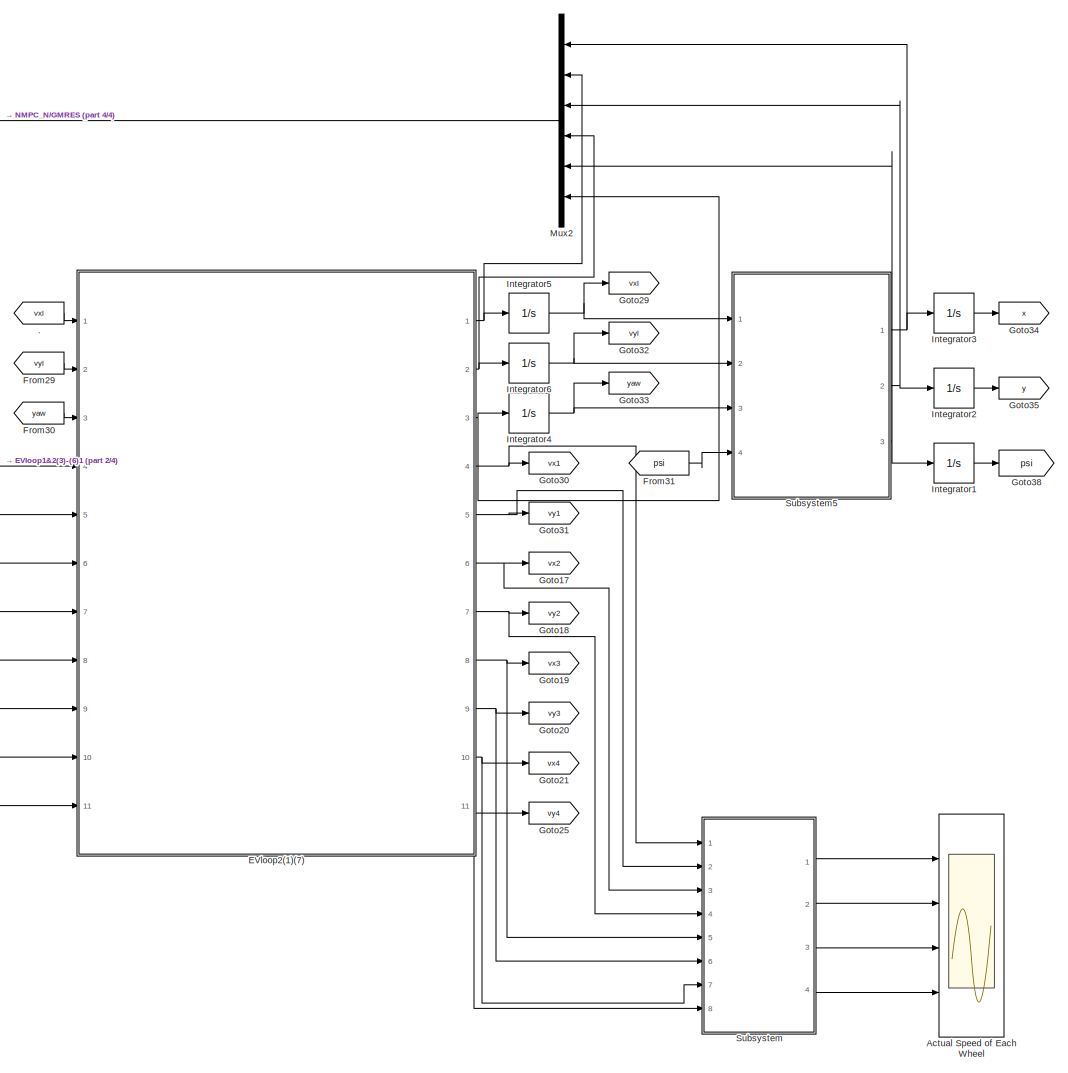
[diagram: root canvas - part 1/4, right side, full height]
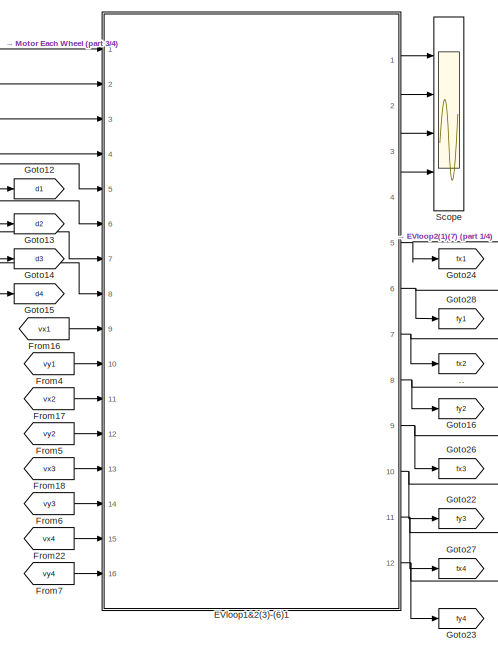
[diagram: root canvas - part 2/4, middle right region]
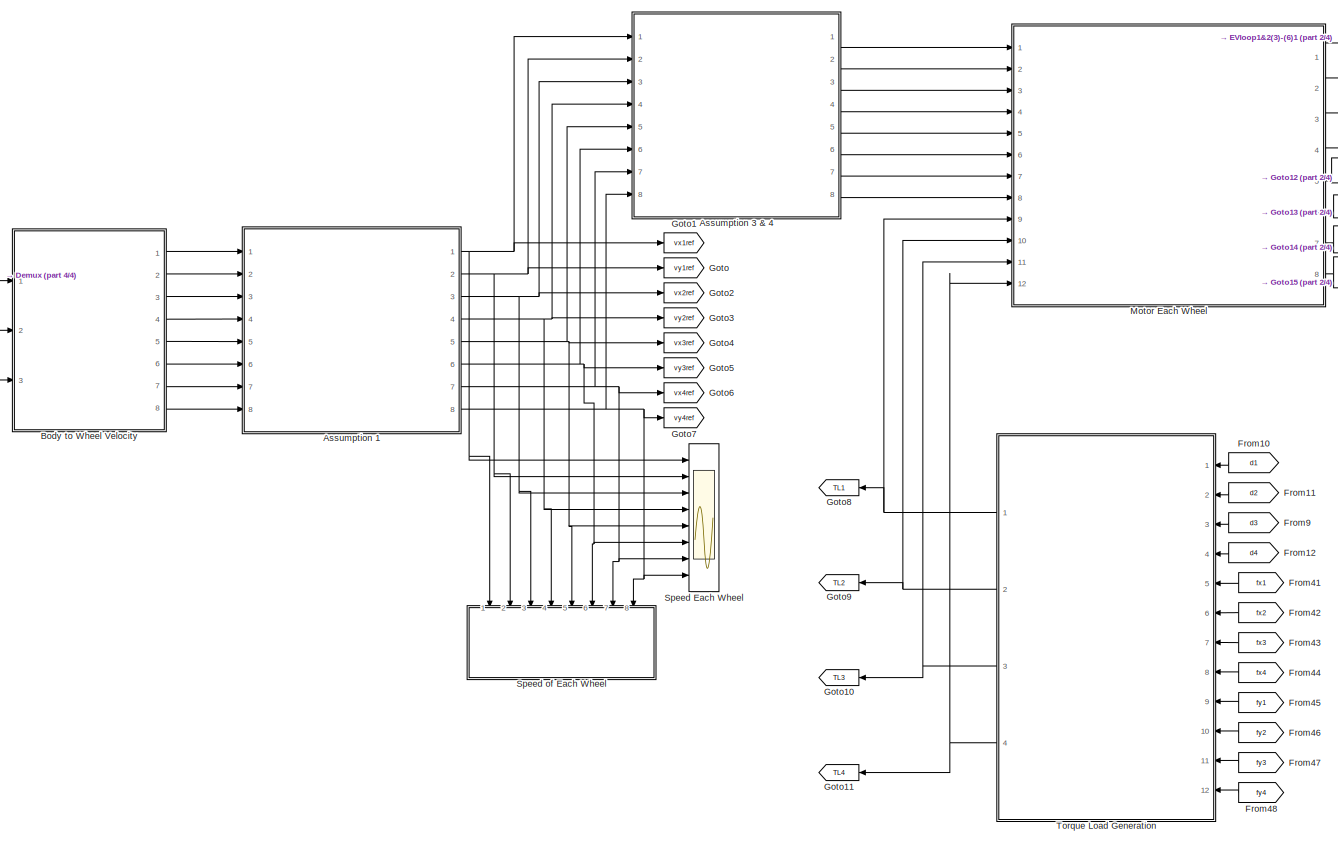
[diagram: root canvas - part 3/4, center side, full height]
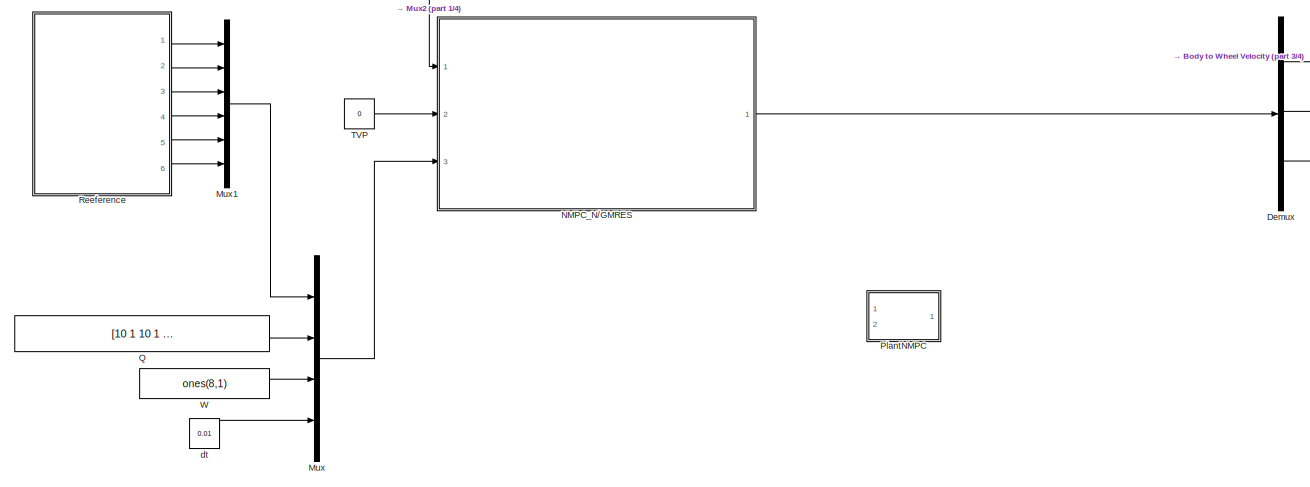
[diagram: root canvas - part 4/4, middle left region]
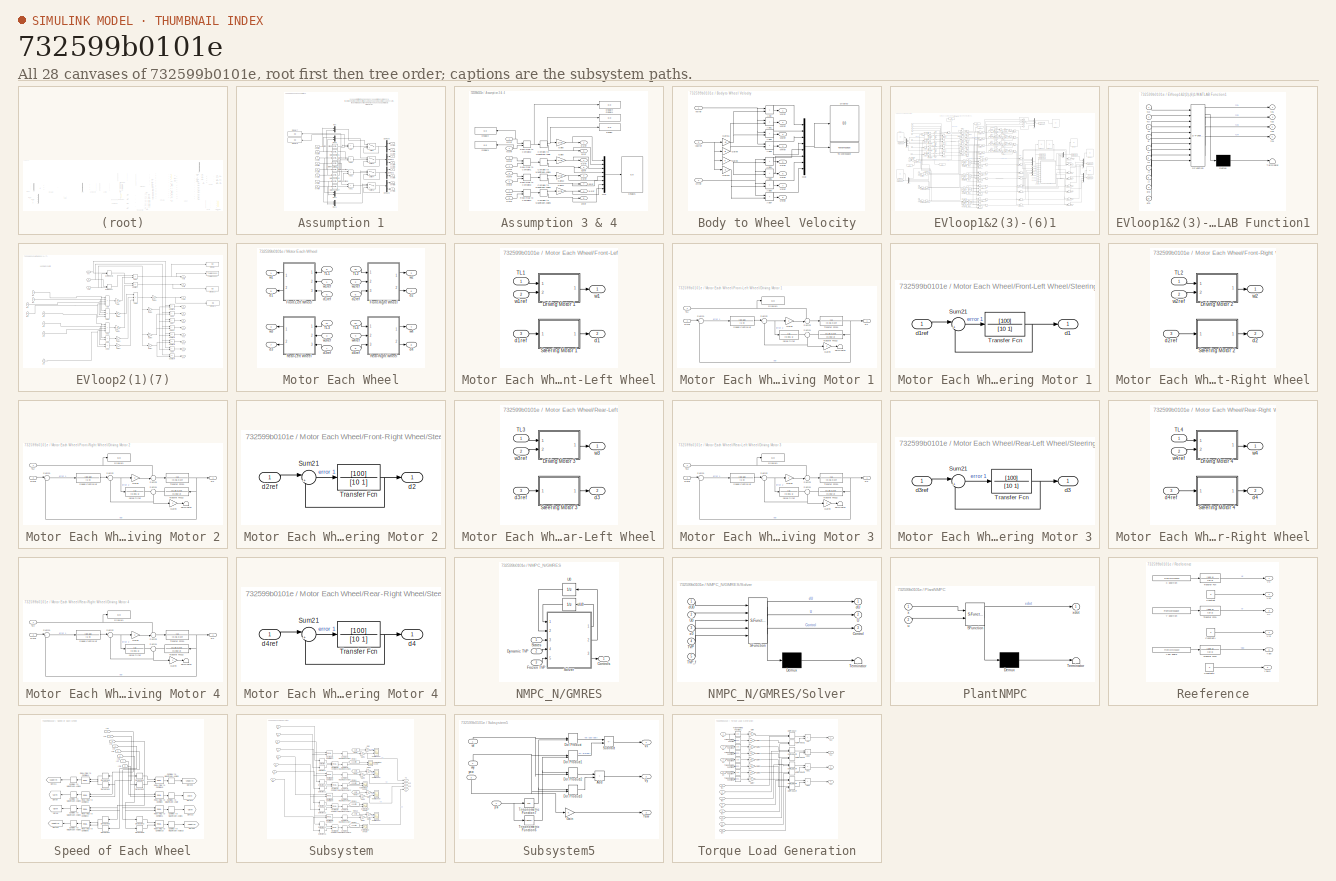
[diagram: thumbnail index - all 28 canvases of the model, root first then tree order]
MODEL slx_732599b0101e
KIND model
CONFIG AbsTol = auto
CONFIG EnableMultiTasking = off
CONFIG FixedStep = auto
CONFIG MaxStep = auto
CONFIG MinStep = auto
CONFIG RelTol = 1e-3
CONFIG SampleTimeConstraint = Unconstrained
CONFIG SolverName = VariableStepAuto
CONFIG StartTime = 0.0
CONFIG StopTime = 100
BLOCK [From] .
  GotoTag = vxl
  TagVisibility = global
BLOCK [Goto] ..
  GotoTag = fx2
  TagVisibility = global
BLOCK [Scope] Actual Speed of Each Wheel
  Floating = off
  NumInputPorts = 4
  Ports = [4]
  ScopeSpecificationString = Simulink.scopes.TimeScopeBlockCfg('CurrentConfiguration', extmgr.ConfigurationSet(extmgr.Configuration('Core','General UI',true,'FigureColor',[1 1 1]),extmgr.Configuration('Core','Source UI',true),extmgr.Configuration('Sources','WiredSimulink',true,'DataLoggingVariableName','ScopeData2'),extmgr.Configuration('Visuals','Time Domain',true,'SerializedDisplays',{struct('MinYLimReal','1.35612','MaxYLim...<+1724ch>
BLOCK [SubSystem] Assumption 1
  Ports = [8, 8]
  RequestExecContextInheritance = off
BLOCK [Sum] Assumption 1/Add
  IconShape = rectangular
  Ports = [2, 1]
BLOCK [Sum] Assumption 1/Add1
  IconShape = rectangular
  Ports = [2, 1]
BLOCK [Sum] Assumption 1/Add2
  IconShape = rectangular
  Ports = [2, 1]
BLOCK [Sum] Assumption 1/Add3
  IconShape = rectangular
  Ports = [2, 1]
BLOCK [Demux] Assumption 1/Demux1
  Outputs = 2
  Ports = [1, 2]
BLOCK [Demux] Assumption 1/Demux2
  Outputs = 2
  Ports = [1, 2]
BLOCK [Demux] Assumption 1/Demux3
  Outputs = 2
  Ports = [1, 2]
BLOCK [Demux] Assumption 1/Demux5
  Outputs = 2
  Ports = [1, 2]
BLOCK [Display] Assumption 1/Display7
  Decimation = 1
  NameLocation = top
  Ports = [1]
BLOCK [Display] Assumption 1/Display8
  Decimation = 1
  NameLocation = top
  Ports = [1]
BLOCK [Math] Assumption 1/Math Function
  Operator = magnitude^2
  Ports = [1, 1]
  SignedPower = on
BLOCK [Math] Assumption 1/Math Function1
  Operator = magnitude^2
  Ports = [1, 1]
  SignedPower = on
BLOCK [Math] Assumption 1/Math Function2
  Operator = magnitude^2
  Ports = [1, 1]
  SignedPower = on
BLOCK [Math] Assumption 1/Math Function3
  Operator = magnitude^2
  Ports = [1, 1]
  SignedPower = on
BLOCK [Math] Assumption 1/Math Function4
  Operator = magnitude^2
  Ports = [1, 1]
  SignedPower = on
BLOCK [Math] Assumption 1/Math Function5
  Operator = magnitude^2
  Ports = [1, 1]
  SignedPower = on
BLOCK [Math] Assumption 1/Math Function6
  Operator = magnitude^2
  Ports = [1, 1]
  SignedPower = on
BLOCK [Math] Assumption 1/Math Function7
  Operator = magnitude^2
  Ports = [1, 1]
  SignedPower = on
BLOCK [Mux] Assumption 1/Mux
  DisplayOption = bar
  Inputs = 2
  Ports = [2, 1]
BLOCK [Mux] Assumption 1/Mux1
  DisplayOption = bar
  Inputs = 2
  Ports = [2, 1]
BLOCK [Mux] Assumption 1/Mux5
  DisplayOption = bar
  Inputs = 2
  Ports = [2, 1]
BLOCK [Mux] Assumption 1/Mux7
  DisplayOption = bar
  Inputs = 2
  Ports = [2, 1]
BLOCK [Switch] Assumption 1/Switch
  Criteria = u2 ~= 0
  InputSameDT = off
  SaturateOnIntegerOverflow = off
BLOCK [Switch] Assumption 1/Switch3
  Criteria = u2 ~= 0
  InputSameDT = off
  SaturateOnIntegerOverflow = off
BLOCK [Switch] Assumption 1/Switch4
  Criteria = u2 ~= 0
  InputSameDT = off
  SaturateOnIntegerOverflow = off
BLOCK [Switch] Assumption 1/Switch5
  Criteria = u2 ~= 0
  InputSameDT = off
  SaturateOnIntegerOverflow = off
BLOCK [Inport] Assumption 1/vx1refi
BLOCK [Outport] Assumption 1/vx1refo
BLOCK [Inport] Assumption 1/vx2refi
  Port = 2
BLOCK [Outport] Assumption 1/vx2refo
  Port = 3
BLOCK [Inport] Assumption 1/vx3refi
  Port = 3
BLOCK [Outport] Assumption 1/vx3refo
  Port = 5
BLOCK [Inport] Assumption 1/vx4refi
  Port = 4
BLOCK [Outport] Assumption 1/vx4refo
  Port = 7
BLOCK [Inport] Assumption 1/vy1refi
  Port = 5
BLOCK [Outport] Assumption 1/vy1refo
  Port = 2
BLOCK [Inport] Assumption 1/vy2refi
  Port = 6
BLOCK [Outport] Assumption 1/vy2refo
  Port = 4
BLOCK [Inport] Assumption 1/vy3refi
  Port = 7
BLOCK [Outport] Assumption 1/vy3refo
  Port = 6
BLOCK [Inport] Assumption 1/vy4refi
  Port = 8
BLOCK [Outport] Assumption 1/vy4refo
  Port = 8
BLOCK [SubSystem] Assumption 3 & 4
  Ports = [8, 8]
  RequestExecContextInheritance = off
BLOCK [ComplexToMagnitudeAngle] Assumption 3 & 4/Complex to Magnitude-Angle
  Ports = [1, 2]
BLOCK [ComplexToMagnitudeAngle] Assumption 3 & 4/Complex to Magnitude-Angle1
  Ports = [1, 2]
BLOCK [ComplexToMagnitudeAngle] Assumption 3 & 4/Complex to Magnitude-Angle2
  Ports = [1, 2]
BLOCK [ComplexToMagnitudeAngle] Assumption 3 & 4/Complex to Magnitude-Angle3
  Ports = [1, 2]
BLOCK [Display] Assumption 3 & 4/Display
  Decimation = 1
  Ports = [1]
BLOCK [Display] Assumption 3 & 4/Display1
  Decimation = 1
  Ports = [1]
BLOCK [Display] Assumption 3 & 4/Display2
  Decimation = 1
  NameLocation = top
  Ports = [1]
BLOCK [Display] Assumption 3 & 4/Display3
  Decimation = 1
  NameLocation = top
  Ports = [1]
BLOCK [Display] Assumption 3 & 4/Display4
  Decimation = 1
  Ports = [1]
BLOCK [Display] Assumption 3 & 4/Display5
  Decimation = 1
  Ports = [1]
BLOCK [Gain] Assumption 3 & 4/Gain10
  Gain = 1/rej
BLOCK [Gain] Assumption 3 & 4/Gain11
  Gain = 1/rej
BLOCK [Gain] Assumption 3 & 4/Gain8
  Gain = 1/rej
BLOCK [Gain] Assumption 3 & 4/Gain9
  Gain = 1/rej
BLOCK [Mux] Assumption 3 & 4/Mux
  DisplayOption = bar
  Inputs = 8
  Ports = [8, 1]
BLOCK [RealImagToComplex] Assumption 3 & 4/Real-Imag to Complex1
  Ports = [2, 1]
BLOCK [RealImagToComplex] Assumption 3 & 4/Real-Imag to Complex2
  Ports = [2, 1]
BLOCK [RealImagToComplex] Assumption 3 & 4/Real-Imag to Complex3
  Ports = [2, 1]
BLOCK [RealImagToComplex] Assumption 3 & 4/Real-Imag to Complex4
  Ports = [2, 1]
BLOCK [Outport] Assumption 3 & 4/d1ref
  Port = 5
BLOCK [Outport] Assumption 3 & 4/d2ref
  Port = 6
BLOCK [Outport] Assumption 3 & 4/d3ref
  Port = 7
BLOCK [Outport] Assumption 3 & 4/d4ref
  Port = 8
BLOCK [Inport] Assumption 3 & 4/vx1ref
BLOCK [Inport] Assumption 3 & 4/vx2ref
  Port = 3
BLOCK [Inport] Assumption 3 & 4/vx3ref
  Port = 5
BLOCK [Inport] Assumption 3 & 4/vx4ref
  Port = 7
BLOCK [Inport] Assumption 3 & 4/vy1ref
  Port = 2
BLOCK [Inport] Assumption 3 & 4/vy2ref
  Port = 4
BLOCK [Inport] Assumption 3 & 4/vy3ref
  Port = 6
BLOCK [Inport] Assumption 3 & 4/vy4ref
  Port = 8
BLOCK [Outport] Assumption 3 & 4/w1ref
BLOCK [Outport] Assumption 3 & 4/w2ref
  Port = 2
BLOCK [Outport] Assumption 3 & 4/w3ref
  Port = 3
BLOCK [Outport] Assumption 3 & 4/w4ref
  Port = 4
BLOCK [SubSystem] Body to Wheel Velocity
  Ports = [3, 8]
  RequestExecContextInheritance = off
BLOCK [Sum] Body to Wheel Velocity/Add
  IconShape = rectangular
  Ports = [2, 1]
BLOCK [Sum] Body to Wheel Velocity/Add1
  IconShape = rectangular
  Ports = [2, 1]
BLOCK [Sum] Body to Wheel Velocity/Add2
  IconShape = rectangular
  Ports = [2, 1]
BLOCK [Sum] Body to Wheel Velocity/Add3
  IconShape = rectangular
  Ports = [2, 1]
BLOCK [Sum] Body to Wheel Velocity/Add4
  IconShape = rectangular
  Ports = [2, 1]
BLOCK [Sum] Body to Wheel Velocity/Add5
  IconShape = rectangular
  Ports = [2, 1]
BLOCK [Sum] Body to Wheel Velocity/Add6
  IconShape = rectangular
  Ports = [2, 1]
BLOCK [Sum] Body to Wheel Velocity/Add7
  IconShape = rectangular
  Ports = [2, 1]
BLOCK [Display] Body to Wheel Velocity/Display
  Decimation = 1
  Ports = [1]
BLOCK [Gain] Body to Wheel Velocity/Gain10
  Gain = -lr
BLOCK [Gain] Body to Wheel Velocity/Gain11
  Gain = -ld
BLOCK [Gain] Body to Wheel Velocity/Gain8
  Gain = lf
BLOCK [Gain] Body to Wheel Velocity/Gain9
  Gain = ld
BLOCK [Mux] Body to Wheel Velocity/Mux
  DisplayOption = bar
  Inputs = 8
  Ports = [8, 1]
BLOCK [ToWorkspace] Body to Wheel Velocity/To Workspace
  FixptAsFi = on
  MaxDataPoints = inf
  Ports = [1]
  SampleTime = 0.01
  SaveFormat = Structure With Time
  VariableName = KecepatanReferensiXYroda
BLOCK [Outport] Body to Wheel Velocity/vx1ref
BLOCK [Outport] Body to Wheel Velocity/vx2ref
  Port = 2
BLOCK [Outport] Body to Wheel Velocity/vx3ref
  Port = 3
BLOCK [Outport] Body to Wheel Velocity/vx4ref
  Port = 4
BLOCK [Inport] Body to Wheel Velocity/vxlref
BLOCK [Outport] Body to Wheel Velocity/vy1ref
  Port = 5
BLOCK [Outport] Body to Wheel Velocity/vy2ref
  Port = 6
BLOCK [Outport] Body to Wheel Velocity/vy3ref
  Port = 7
BLOCK [Outport] Body to Wheel Velocity/vy4ref
  Port = 8
BLOCK [Inport] Body to Wheel Velocity/vylref
  Port = 2
BLOCK [Inport] Body to Wheel Velocity/yawref
  Port = 3
BLOCK [Demux] Demux
  Outputs = 3
  Ports = [1, 3]
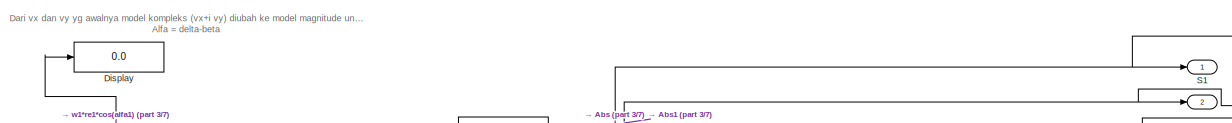
[diagram: EVloop1&2(3)-(6)1 - part 1/7, top center region]
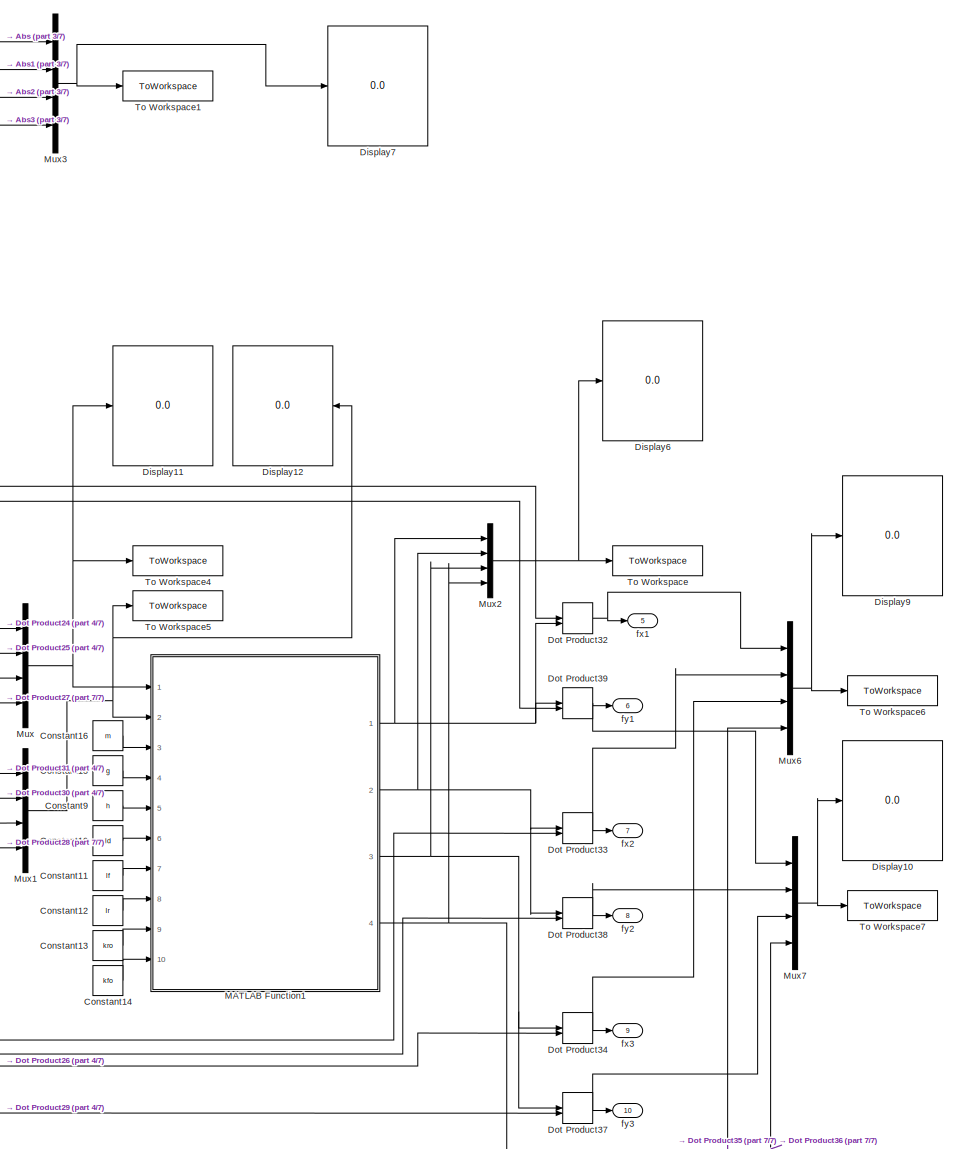
[diagram: EVloop1&2(3)-(6)1 - part 2/7, right side, full height]
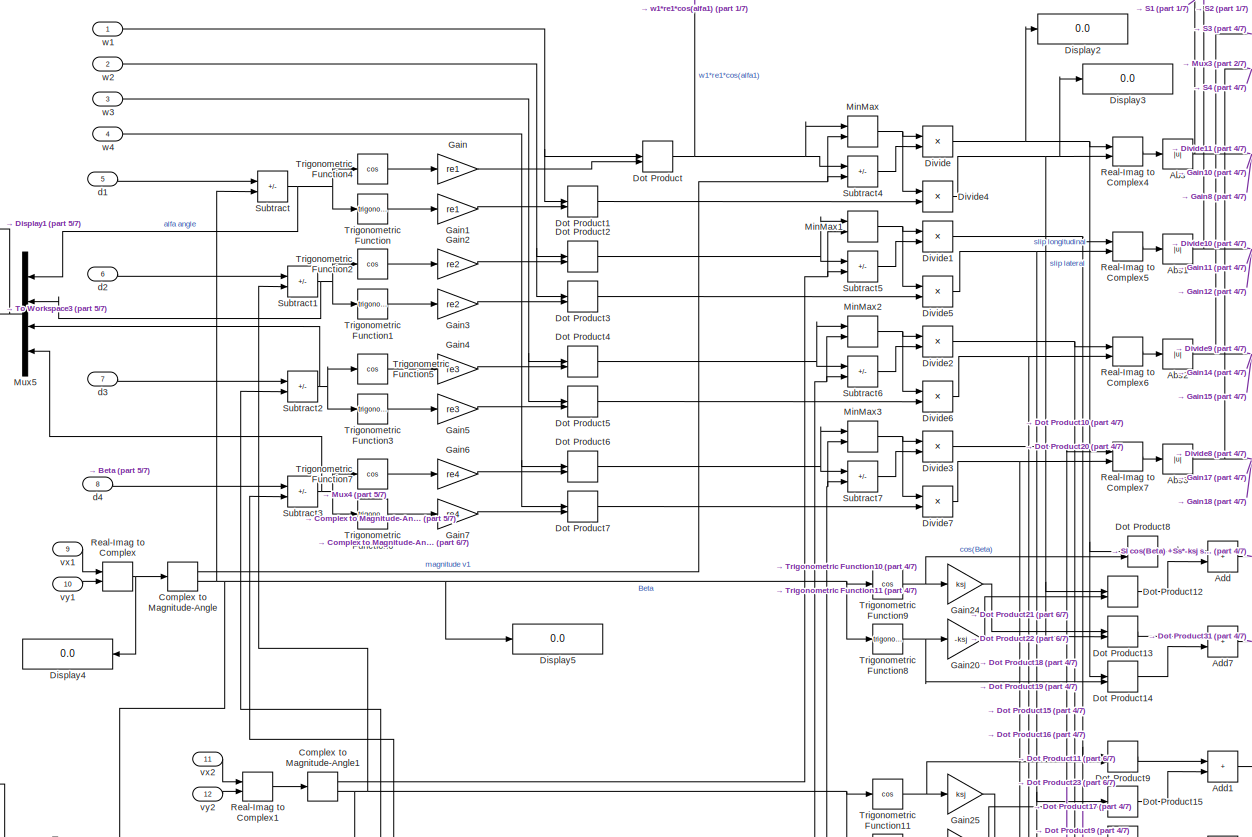
[diagram: EVloop1&2(3)-(6)1 - part 3/7, middle left region]
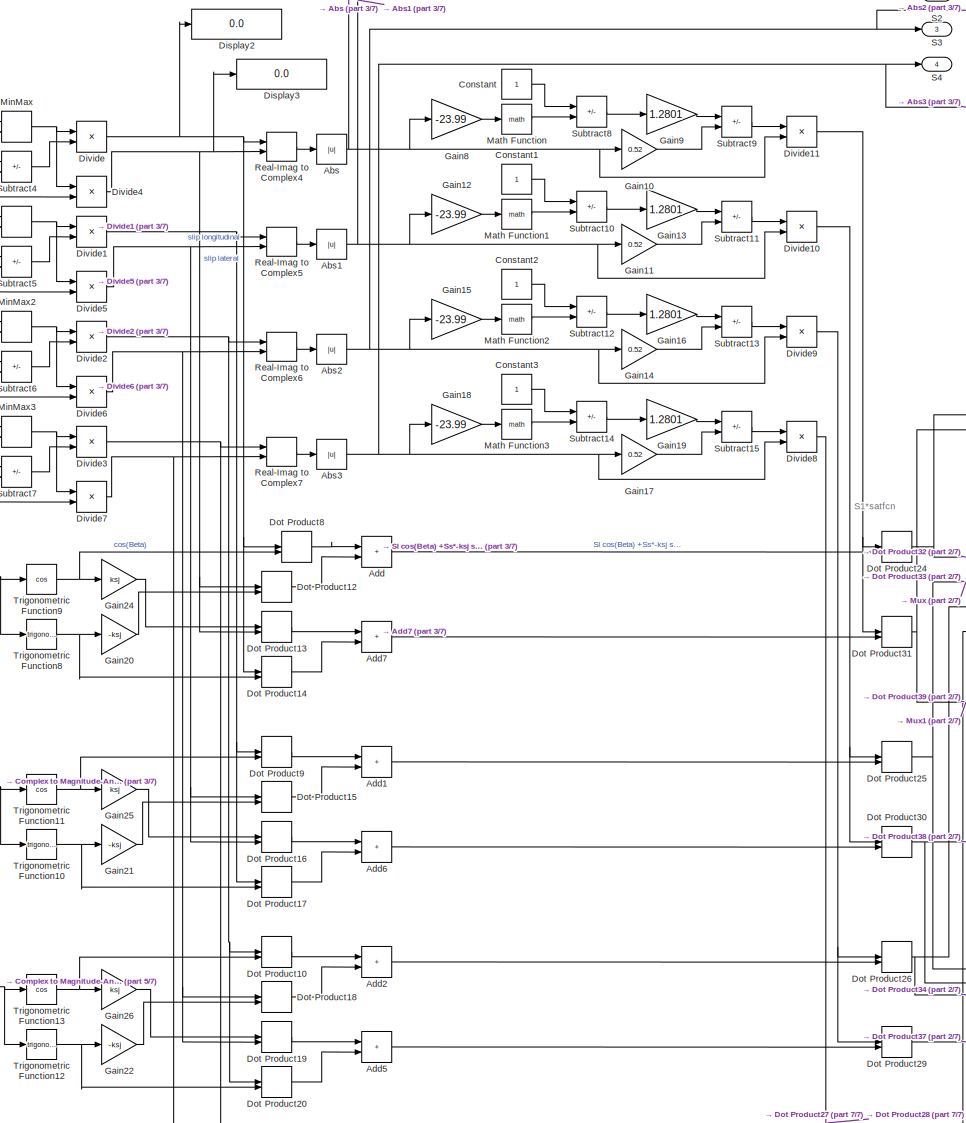
[diagram: EVloop1&2(3)-(6)1 - part 4/7, center side, full height]
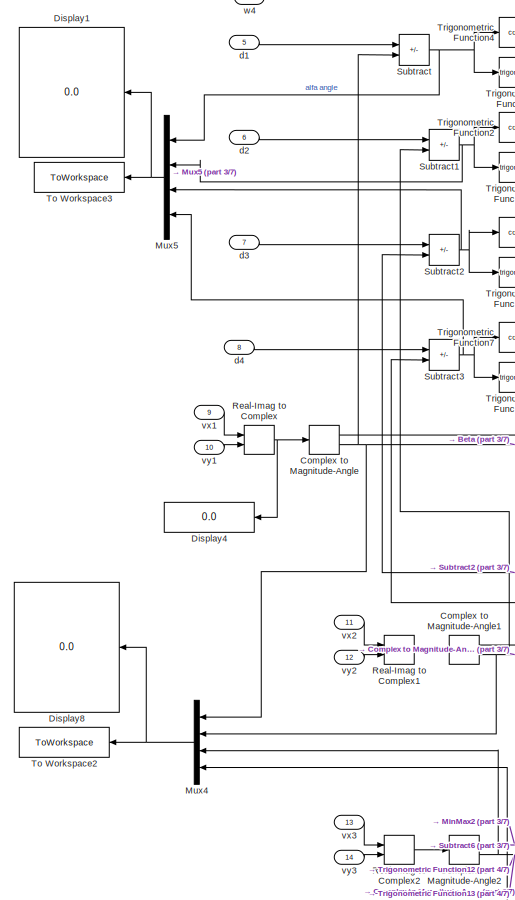
[diagram: EVloop1&2(3)-(6)1 - part 5/7, middle left region]
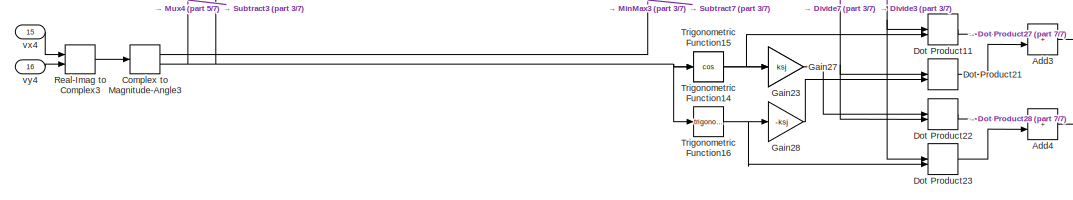
[diagram: EVloop1&2(3)-(6)1 - part 6/7, bottom left region]
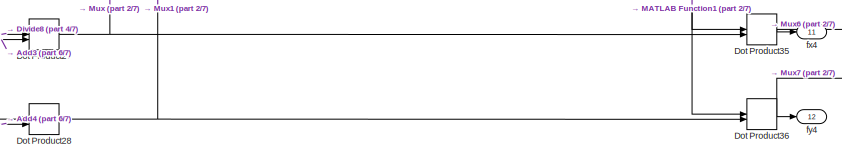
[diagram: EVloop1&2(3)-(6)1 - part 7/7, bottom right region]
BLOCK [SubSystem] EVloop1&2(3)-(6)1
  Ports = [16, 12]
  RequestExecContextInheritance = off
BLOCK [Abs] EVloop1&2(3)-(6)1/Abs
  SaturateOnIntegerOverflow = off
BLOCK [Abs] EVloop1&2(3)-(6)1/Abs1
  SaturateOnIntegerOverflow = off
BLOCK [Abs] EVloop1&2(3)-(6)1/Abs2
  SaturateOnIntegerOverflow = off
BLOCK [Abs] EVloop1&2(3)-(6)1/Abs3
  SaturateOnIntegerOverflow = off
BLOCK [Sum] EVloop1&2(3)-(6)1/Add
  IconShape = rectangular
  Ports = [2, 1]
BLOCK [Sum] EVloop1&2(3)-(6)1/Add1
  IconShape = rectangular
  Ports = [2, 1]
BLOCK [Sum] EVloop1&2(3)-(6)1/Add2
  IconShape = rectangular
  Ports = [2, 1]
BLOCK [Sum] EVloop1&2(3)-(6)1/Add3
  IconShape = rectangular
  Ports = [2, 1]
BLOCK [Sum] EVloop1&2(3)-(6)1/Add4
  IconShape = rectangular
  Ports = [2, 1]
BLOCK [Sum] EVloop1&2(3)-(6)1/Add5
  IconShape = rectangular
  Ports = [2, 1]
BLOCK [Sum] EVloop1&2(3)-(6)1/Add6
  IconShape = rectangular
  Ports = [2, 1]
BLOCK [Sum] EVloop1&2(3)-(6)1/Add7
  IconShape = rectangular
  Ports = [2, 1]
BLOCK [ComplexToMagnitudeAngle] EVloop1&2(3)-(6)1/Complex to Magnitude-Angle
  Ports = [1, 2]
BLOCK [ComplexToMagnitudeAngle] EVloop1&2(3)-(6)1/Complex to Magnitude-Angle1
  Ports = [1, 2]
BLOCK [ComplexToMagnitudeAngle] EVloop1&2(3)-(6)1/Complex to Magnitude-Angle2
  Ports = [1, 2]
BLOCK [ComplexToMagnitudeAngle] EVloop1&2(3)-(6)1/Complex to Magnitude-Angle3
  Ports = [1, 2]
BLOCK [Constant] EVloop1&2(3)-(6)1/Constant
BLOCK [Constant] EVloop1&2(3)-(6)1/Constant1
BLOCK [Constant] EVloop1&2(3)-(6)1/Constant10
  Value = ld
BLOCK [Constant] EVloop1&2(3)-(6)1/Constant11
  Value = lf
BLOCK [Constant] EVloop1&2(3)-(6)1/Constant12
  Value = lr
BLOCK [Constant] EVloop1&2(3)-(6)1/Constant13
  Value = kro
BLOCK [Constant] EVloop1&2(3)-(6)1/Constant14
  Value = kfo
BLOCK [Constant] EVloop1&2(3)-(6)1/Constant15
  Value = g
BLOCK [Constant] EVloop1&2(3)-(6)1/Constant16
  Value = m
BLOCK [Constant] EVloop1&2(3)-(6)1/Constant2
BLOCK [Constant] EVloop1&2(3)-(6)1/Constant3
BLOCK [Constant] EVloop1&2(3)-(6)1/Constant9
  Value = h
BLOCK [Display] EVloop1&2(3)-(6)1/Display
  Decimation = 1
  Ports = [1]
BLOCK [Display] EVloop1&2(3)-(6)1/Display1
  Decimation = 1
  NameLocation = top
  Ports = [1]
BLOCK [Display] EVloop1&2(3)-(6)1/Display10
  Decimation = 1
  Ports = [1]
BLOCK [Display] EVloop1&2(3)-(6)1/Display11
  Decimation = 1
  Ports = [1]
BLOCK [Display] EVloop1&2(3)-(6)1/Display12
  Decimation = 1
  NameLocation = top
  Ports = [1]
BLOCK [Display] EVloop1&2(3)-(6)1/Display2
  Decimation = 1
  Ports = [1]
BLOCK [Display] EVloop1&2(3)-(6)1/Display3
  Decimation = 1
  Ports = [1]
BLOCK [Display] EVloop1&2(3)-(6)1/Display4
  Decimation = 1
  NameLocation = top
  Ports = [1]
BLOCK [Display] EVloop1&2(3)-(6)1/Display5
  Decimation = 1
  Ports = [1]
BLOCK [Display] EVloop1&2(3)-(6)1/Display6
  Decimation = 1
  Ports = [1]
BLOCK [Display] EVloop1&2(3)-(6)1/Display7
  Decimation = 1
  Ports = [1]
BLOCK [Display] EVloop1&2(3)-(6)1/Display8
  Decimation = 1
  NameLocation = top
  Ports = [1]
BLOCK [Display] EVloop1&2(3)-(6)1/Display9
  Decimation = 1
  Ports = [1]
BLOCK [Product] EVloop1&2(3)-(6)1/Divide
  Inputs = /*
  Ports = [2, 1]
BLOCK [Product] EVloop1&2(3)-(6)1/Divide1
  Inputs = /*
  Ports = [2, 1]
BLOCK [Product] EVloop1&2(3)-(6)1/Divide10
  Inputs = */
  Ports = [2, 1]
BLOCK [Product] EVloop1&2(3)-(6)1/Divide11
  Inputs = */
  Ports = [2, 1]
BLOCK [Product] EVloop1&2(3)-(6)1/Divide2
  Inputs = /*
  Ports = [2, 1]
BLOCK [Product] EVloop1&2(3)-(6)1/Divide3
  Inputs = /*
  Ports = [2, 1]
BLOCK [Product] EVloop1&2(3)-(6)1/Divide4
  Inputs = /*
  Ports = [2, 1]
BLOCK [Product] EVloop1&2(3)-(6)1/Divide5
  Inputs = /*
  Ports = [2, 1]
BLOCK [Product] EVloop1&2(3)-(6)1/Divide6
  Inputs = /*
  Ports = [2, 1]
BLOCK [Product] EVloop1&2(3)-(6)1/Divide7
  Inputs = /*
  Ports = [2, 1]
BLOCK [Product] EVloop1&2(3)-(6)1/Divide8
  Inputs = */
  Ports = [2, 1]
BLOCK [Product] EVloop1&2(3)-(6)1/Divide9
  Inputs = */
  Ports = [2, 1]
BLOCK [DotProduct] EVloop1&2(3)-(6)1/Dot Product
  OutDataTypeStr = Inherit: Inherit via internal rule
BLOCK [DotProduct] EVloop1&2(3)-(6)1/Dot Product1
  OutDataTypeStr = Inherit: Inherit via internal rule
BLOCK [DotProduct] EVloop1&2(3)-(6)1/Dot Product10
  OutDataTypeStr = Inherit: Inherit via internal rule
BLOCK [DotProduct] EVloop1&2(3)-(6)1/Dot Product11
  OutDataTypeStr = Inherit: Inherit via internal rule
BLOCK [DotProduct] EVloop1&2(3)-(6)1/Dot Product12
  OutDataTypeStr = Inherit: Inherit via internal rule
BLOCK [DotProduct] EVloop1&2(3)-(6)1/Dot Product13
  OutDataTypeStr = Inherit: Inherit via internal rule
BLOCK [DotProduct] EVloop1&2(3)-(6)1/Dot Product14
  OutDataTypeStr = Inherit: Inherit via internal rule
BLOCK [DotProduct] EVloop1&2(3)-(6)1/Dot Product15
  OutDataTypeStr = Inherit: Inherit via internal rule
BLOCK [DotProduct] EVloop1&2(3)-(6)1/Dot Product16
  OutDataTypeStr = Inherit: Inherit via internal rule
BLOCK [DotProduct] EVloop1&2(3)-(6)1/Dot Product17
  OutDataTypeStr = Inherit: Inherit via internal rule
BLOCK [DotProduct] EVloop1&2(3)-(6)1/Dot Product18
  OutDataTypeStr = Inherit: Inherit via internal rule
BLOCK [DotProduct] EVloop1&2(3)-(6)1/Dot Product19
  OutDataTypeStr = Inherit: Inherit via internal rule
BLOCK [DotProduct] EVloop1&2(3)-(6)1/Dot Product2
  OutDataTypeStr = Inherit: Inherit via internal rule
BLOCK [DotProduct] EVloop1&2(3)-(6)1/Dot Product20
  OutDataTypeStr = Inherit: Inherit via internal rule
BLOCK [DotProduct] EVloop1&2(3)-(6)1/Dot Product21
  OutDataTypeStr = Inherit: Inherit via internal rule
BLOCK [DotProduct] EVloop1&2(3)-(6)1/Dot Product22
  OutDataTypeStr = Inherit: Inherit via internal rule
BLOCK [DotProduct] EVloop1&2(3)-(6)1/Dot Product23
  OutDataTypeStr = Inherit: Inherit via internal rule
BLOCK [DotProduct] EVloop1&2(3)-(6)1/Dot Product24
  OutDataTypeStr = Inherit: Inherit via internal rule
BLOCK [DotProduct] EVloop1&2(3)-(6)1/Dot Product25
  OutDataTypeStr = Inherit: Inherit via internal rule
BLOCK [DotProduct] EVloop1&2(3)-(6)1/Dot Product26
  OutDataTypeStr = Inherit: Inherit via internal rule
BLOCK [DotProduct] EVloop1&2(3)-(6)1/Dot Product27
  OutDataTypeStr = Inherit: Inherit via internal rule
BLOCK [DotProduct] EVloop1&2(3)-(6)1/Dot Product28
  OutDataTypeStr = Inherit: Inherit via internal rule
BLOCK [DotProduct] EVloop1&2(3)-(6)1/Dot Product29
  OutDataTypeStr = Inherit: Inherit via internal rule
BLOCK [DotProduct] EVloop1&2(3)-(6)1/Dot Product3
  OutDataTypeStr = Inherit: Inherit via internal rule
BLOCK [DotProduct] EVloop1&2(3)-(6)1/Dot Product30
  OutDataTypeStr = Inherit: Inherit via internal rule
BLOCK [DotProduct] EVloop1&2(3)-(6)1/Dot Product31
  OutDataTypeStr = Inherit: Inherit via internal rule
BLOCK [DotProduct] EVloop1&2(3)-(6)1/Dot Product32
  OutDataTypeStr = Inherit: Inherit via internal rule
BLOCK [DotProduct] EVloop1&2(3)-(6)1/Dot Product33
  OutDataTypeStr = Inherit: Inherit via internal rule
BLOCK [DotProduct] EVloop1&2(3)-(6)1/Dot Product34
  OutDataTypeStr = Inherit: Inherit via internal rule
BLOCK [DotProduct] EVloop1&2(3)-(6)1/Dot Product35
  OutDataTypeStr = Inherit: Inherit via internal rule
BLOCK [DotProduct] EVloop1&2(3)-(6)1/Dot Product36
  OutDataTypeStr = Inherit: Inherit via internal rule
BLOCK [DotProduct] EVloop1&2(3)-(6)1/Dot Product37
  OutDataTypeStr = Inherit: Inherit via internal rule
BLOCK [DotProduct] EVloop1&2(3)-(6)1/Dot Product38
  OutDataTypeStr = Inherit: Inherit via internal rule
BLOCK [DotProduct] EVloop1&2(3)-(6)1/Dot Product39
  OutDataTypeStr = Inherit: Inherit via internal rule
BLOCK [DotProduct] EVloop1&2(3)-(6)1/Dot Product4
  OutDataTypeStr = Inherit: Inherit via internal rule
BLOCK [DotProduct] EVloop1&2(3)-(6)1/Dot Product5
  OutDataTypeStr = Inherit: Inherit via internal rule
BLOCK [DotProduct] EVloop1&2(3)-(6)1/Dot Product6
  OutDataTypeStr = Inherit: Inherit via internal rule
BLOCK [DotProduct] EVloop1&2(3)-(6)1/Dot Product7
  OutDataTypeStr = Inherit: Inherit via internal rule
BLOCK [DotProduct] EVloop1&2(3)-(6)1/Dot Product8
  OutDataTypeStr = Inherit: Inherit via internal rule
BLOCK [DotProduct] EVloop1&2(3)-(6)1/Dot Product9
  OutDataTypeStr = Inherit: Inherit via internal rule
BLOCK [Gain] EVloop1&2(3)-(6)1/Gain
  Gain = re1
BLOCK [Gain] EVloop1&2(3)-(6)1/Gain1
  Gain = re1
BLOCK [Gain] EVloop1&2(3)-(6)1/Gain10
  Gain = 0.52
BLOCK [Gain] EVloop1&2(3)-(6)1/Gain11
  Gain = 0.52
BLOCK [Gain] EVloop1&2(3)-(6)1/Gain12
  Gain = -23.99
BLOCK [Gain] EVloop1&2(3)-(6)1/Gain13
  Gain = 1.2801
BLOCK [Gain] EVloop1&2(3)-(6)1/Gain14
  Gain = 0.52
BLOCK [Gain] EVloop1&2(3)-(6)1/Gain15
  Gain = -23.99
BLOCK [Gain] EVloop1&2(3)-(6)1/Gain16
  Gain = 1.2801
BLOCK [Gain] EVloop1&2(3)-(6)1/Gain17
  Gain = 0.52
BLOCK [Gain] EVloop1&2(3)-(6)1/Gain18
  Gain = -23.99
BLOCK [Gain] EVloop1&2(3)-(6)1/Gain19
  Gain = 1.2801
BLOCK [Gain] EVloop1&2(3)-(6)1/Gain2
  Gain = re2
BLOCK [Gain] EVloop1&2(3)-(6)1/Gain20
  Gain = -ksj
BLOCK [Gain] EVloop1&2(3)-(6)1/Gain21
  Gain = -ksj
BLOCK [Gain] EVloop1&2(3)-(6)1/Gain22
  Gain = -ksj
BLOCK [Gain] EVloop1&2(3)-(6)1/Gain23
  Gain = -ksj
BLOCK [Gain] EVloop1&2(3)-(6)1/Gain24
  Gain = ksj
BLOCK [Gain] EVloop1&2(3)-(6)1/Gain25
  Gain = ksj
BLOCK [Gain] EVloop1&2(3)-(6)1/Gain26
  Gain = ksj
BLOCK [Gain] EVloop1&2(3)-(6)1/Gain27
  Gain = ksj
BLOCK [Gain] EVloop1&2(3)-(6)1/Gain28
  Gain = -ksj
BLOCK [Gain] EVloop1&2(3)-(6)1/Gain3
  Gain = re2
BLOCK [Gain] EVloop1&2(3)-(6)1/Gain4
  Gain = re3
BLOCK [Gain] EVloop1&2(3)-(6)1/Gain5
  Gain = re3
BLOCK [Gain] EVloop1&2(3)-(6)1/Gain6
  Gain = re4
BLOCK [Gain] EVloop1&2(3)-(6)1/Gain7
  Gain = re4
BLOCK [Gain] EVloop1&2(3)-(6)1/Gain8
  Gain = -23.99
BLOCK [Gain] EVloop1&2(3)-(6)1/Gain9
  Gain = 1.2801
BLOCK [SubSystem] EVloop1&2(3)-(6)1/MATLAB Function1
  ErrorFcn = Stateflow.Translate.translate
  PermitHierarchicalResolution = ExplicitOnly
  Ports = [10, 4]
  RequestExecContextInheritance = off
  SFBlockType = MATLAB Function
  TreatAsAtomicUnit = on
BLOCK [Demux] EVloop1&2(3)-(6)1/MATLAB Function1/ Demux 
  Outputs = 1
  Ports = [1, 1]
BLOCK [S-Function] EVloop1&2(3)-(6)1/MATLAB Function1/ SFunction 
  EnableBusSupport = on
  FunctionName = sf_sfun
  PortCounts = [10 5]
  Ports = [10, 5]
  SFcnIsStateOwnerBlock = off
  SFunctionDeploymentMode = off
  Tag = Stateflow S-Function 2
BLOCK [Terminator] EVloop1&2(3)-(6)1/MATLAB Function1/ Terminator 
BLOCK [Inport] EVloop1&2(3)-(6)1/MATLAB Function1/Nx
BLOCK [Inport] EVloop1&2(3)-(6)1/MATLAB Function1/Ny
  Port = 2
BLOCK [Outport] EVloop1&2(3)-(6)1/MATLAB Function1/fz1
BLOCK [Outport] EVloop1&2(3)-(6)1/MATLAB Function1/fz2
  Port = 2
BLOCK [Outport] EVloop1&2(3)-(6)1/MATLAB Function1/fz3
  Port = 3
BLOCK [Outport] EVloop1&2(3)-(6)1/MATLAB Function1/fz4
  Port = 4
BLOCK [Inport] EVloop1&2(3)-(6)1/MATLAB Function1/g
  Port = 4
BLOCK [Inport] EVloop1&2(3)-(6)1/MATLAB Function1/h
  Port = 5
BLOCK [Inport] EVloop1&2(3)-(6)1/MATLAB Function1/kfo
  Port = 10
BLOCK [Inport] EVloop1&2(3)-(6)1/MATLAB Function1/kro
  Port = 9
BLOCK [Inport] EVloop1&2(3)-(6)1/MATLAB Function1/ld
  Port = 6
BLOCK [Inport] EVloop1&2(3)-(6)1/MATLAB Function1/lf
  Port = 7
BLOCK [Inport] EVloop1&2(3)-(6)1/MATLAB Function1/lr
  Port = 8
BLOCK [Inport] EVloop1&2(3)-(6)1/MATLAB Function1/m
  Port = 3
BLOCK [Math] EVloop1&2(3)-(6)1/Math Function
  Ports = [1, 1]
  SignedPower = on
BLOCK [Math] EVloop1&2(3)-(6)1/Math Function1
  Ports = [1, 1]
  SignedPower = on
BLOCK [Math] EVloop1&2(3)-(6)1/Math Function2
  Ports = [1, 1]
  SignedPower = on
BLOCK [Math] EVloop1&2(3)-(6)1/Math Function3
  Ports = [1, 1]
  SignedPower = on
BLOCK [MinMax] EVloop1&2(3)-(6)1/MinMax
  Function = max
  Inputs = 2
  Ports = [2, 1]
BLOCK [MinMax] EVloop1&2(3)-(6)1/MinMax1
  Function = max
  Inputs = 2
  Ports = [2, 1]
BLOCK [MinMax] EVloop1&2(3)-(6)1/MinMax2
  Function = max
  Inputs = 2
  Ports = [2, 1]
BLOCK [MinMax] EVloop1&2(3)-(6)1/MinMax3
  Function = max
  Inputs = 2
  Ports = [2, 1]
BLOCK [Mux] EVloop1&2(3)-(6)1/Mux
  DisplayOption = bar
  Ports = [4, 1]
BLOCK [Mux] EVloop1&2(3)-(6)1/Mux1
  DisplayOption = bar
  Ports = [4, 1]
BLOCK [Mux] EVloop1&2(3)-(6)1/Mux2
  DisplayOption = bar
  Ports = [4, 1]
BLOCK [Mux] EVloop1&2(3)-(6)1/Mux3
  DisplayOption = bar
  Ports = [4, 1]
BLOCK [Mux] EVloop1&2(3)-(6)1/Mux4
  DisplayOption = bar
  NameLocation = top
  Ports = [4, 1]
BLOCK [Mux] EVloop1&2(3)-(6)1/Mux5
  DisplayOption = bar
  NameLocation = top
  Ports = [4, 1]
BLOCK [Mux] EVloop1&2(3)-(6)1/Mux6
  DisplayOption = bar
  Ports = [4, 1]
BLOCK [Mux] EVloop1&2(3)-(6)1/Mux7
  DisplayOption = bar
  Ports = [4, 1]
BLOCK [RealImagToComplex] EVloop1&2(3)-(6)1/Real-Imag to Complex
  Ports = [2, 1]
BLOCK [RealImagToComplex] EVloop1&2(3)-(6)1/Real-Imag to Complex1
  Ports = [2, 1]
BLOCK [RealImagToComplex] EVloop1&2(3)-(6)1/Real-Imag to Complex2
  Ports = [2, 1]
BLOCK [RealImagToComplex] EVloop1&2(3)-(6)1/Real-Imag to Complex3
  Ports = [2, 1]
BLOCK [RealImagToComplex] EVloop1&2(3)-(6)1/Real-Imag to Complex4
  Ports = [2, 1]
BLOCK [RealImagToComplex] EVloop1&2(3)-(6)1/Real-Imag to Complex5
  Ports = [2, 1]
BLOCK [RealImagToComplex] EVloop1&2(3)-(6)1/Real-Imag to Complex6
  Ports = [2, 1]
BLOCK [RealImagToComplex] EVloop1&2(3)-(6)1/Real-Imag to Complex7
  Ports = [2, 1]
BLOCK [Outport] EVloop1&2(3)-(6)1/S1
BLOCK [Outport] EVloop1&2(3)-(6)1/S2
  Port = 2
BLOCK [Outport] EVloop1&2(3)-(6)1/S3
  Port = 3
BLOCK [Outport] EVloop1&2(3)-(6)1/S4
  Port = 4
BLOCK [Sum] EVloop1&2(3)-(6)1/Subtract
  IconShape = rectangular
  Inputs = +-
  Ports = [2, 1]
BLOCK [Sum] EVloop1&2(3)-(6)1/Subtract1
  IconShape = rectangular
  Inputs = +-
  Ports = [2, 1]
BLOCK [Sum] EVloop1&2(3)-(6)1/Subtract10
  IconShape = rectangular
  Inputs = +-
  Ports = [2, 1]
BLOCK [Sum] EVloop1&2(3)-(6)1/Subtract11
  IconShape = rectangular
  Inputs = +-
  Ports = [2, 1]
BLOCK [Sum] EVloop1&2(3)-(6)1/Subtract12
  IconShape = rectangular
  Inputs = +-
  Ports = [2, 1]
BLOCK [Sum] EVloop1&2(3)-(6)1/Subtract13
  IconShape = rectangular
  Inputs = +-
  Ports = [2, 1]
BLOCK [Sum] EVloop1&2(3)-(6)1/Subtract14
  IconShape = rectangular
  Inputs = +-
  Ports = [2, 1]
BLOCK [Sum] EVloop1&2(3)-(6)1/Subtract15
  IconShape = rectangular
  Inputs = +-
  Ports = [2, 1]
BLOCK [Sum] EVloop1&2(3)-(6)1/Subtract2
  IconShape = rectangular
  Inputs = +-
  Ports = [2, 1]
BLOCK [Sum] EVloop1&2(3)-(6)1/Subtract3
  IconShape = rectangular
  Inputs = +-
  Ports = [2, 1]
BLOCK [Sum] EVloop1&2(3)-(6)1/Subtract4
  IconShape = rectangular
  Inputs = +-
  Ports = [2, 1]
BLOCK [Sum] EVloop1&2(3)-(6)1/Subtract5
  IconShape = rectangular
  Inputs = +-
  Ports = [2, 1]
BLOCK [Sum] EVloop1&2(3)-(6)1/Subtract6
  IconShape = rectangular
  Inputs = +-
  Ports = [2, 1]
BLOCK [Sum] EVloop1&2(3)-(6)1/Subtract7
  IconShape = rectangular
  Inputs = +-
  Ports = [2, 1]
BLOCK [Sum] EVloop1&2(3)-(6)1/Subtract8
  IconShape = rectangular
  Inputs = +-
  Ports = [2, 1]
BLOCK [Sum] EVloop1&2(3)-(6)1/Subtract9
  IconShape = rectangular
  Inputs = +-
  Ports = [2, 1]
BLOCK [ToWorkspace] EVloop1&2(3)-(6)1/To Workspace
  FixptAsFi = on
  MaxDataPoints = inf
  Ports = [1]
  SampleTime = 0.01
  Save2DSignal = 2-D array (concatenate along first dimension)
  SaveFormat = Structure With Time
  VariableName = fzSimulink
BLOCK [ToWorkspace] EVloop1&2(3)-(6)1/To Workspace1
  FixptAsFi = on
  MaxDataPoints = inf
  Ports = [1]
  SampleTime = 0.01
  SaveFormat = Structure With Time
  VariableName = SlipSimulink
BLOCK [ToWorkspace] EVloop1&2(3)-(6)1/To Workspace2
  FixptAsFi = on
  MaxDataPoints = inf
  NameLocation = top
  Ports = [1]
  SampleTime = 0.01
  SaveFormat = Structure With Time
  VariableName = Betasimulink
BLOCK [ToWorkspace] EVloop1&2(3)-(6)1/To Workspace3
  FixptAsFi = on
  MaxDataPoints = inf
  NameLocation = top
  Ports = [1]
  SampleTime = 0.01
  SaveFormat = Structure With Time
  VariableName = AlfasSimulink
BLOCK [ToWorkspace] EVloop1&2(3)-(6)1/To Workspace4
  FixptAsFi = on
  MaxDataPoints = inf
  Ports = [1]
  SampleTime = 0.01
  SaveFormat = Structure With Time
  VariableName = NuxSimulink
BLOCK [ToWorkspace] EVloop1&2(3)-(6)1/To Workspace5
  FixptAsFi = on
  MaxDataPoints = inf
  Ports = [1]
  SampleTime = 0.01
  SaveFormat = Structure With Time
  VariableName = NuySimulink1
BLOCK [ToWorkspace] EVloop1&2(3)-(6)1/To Workspace6
  FixptAsFi = on
  MaxDataPoints = inf
  Ports = [1]
  SampleTime = 0.01
  SaveFormat = Structure With Time
  VariableName = FxSimulink
BLOCK [ToWorkspace] EVloop1&2(3)-(6)1/To Workspace7
  FixptAsFi = on
  MaxDataPoints = inf
  Ports = [1]
  SampleTime = 0.01
  SaveFormat = Structure With Time
  VariableName = FySimulink
BLOCK [Trigonometry] EVloop1&2(3)-(6)1/Trigonometric Function
  Ports = [1, 1]
BLOCK [Trigonometry] EVloop1&2(3)-(6)1/Trigonometric Function1
  Ports = [1, 1]
BLOCK [Trigonometry] EVloop1&2(3)-(6)1/Trigonometric Function10
  Ports = [1, 1]
BLOCK [Trigonometry] EVloop1&2(3)-(6)1/Trigonometric Function11
  Operator = cos
  Ports = [1, 1]
BLOCK [Trigonometry] EVloop1&2(3)-(6)1/Trigonometric Function12
  Ports = [1, 1]
BLOCK [Trigonometry] EVloop1&2(3)-(6)1/Trigonometric Function13
  Operator = cos
  Ports = [1, 1]
BLOCK [Trigonometry] EVloop1&2(3)-(6)1/Trigonometric Function14
  Ports = [1, 1]
BLOCK [Trigonometry] EVloop1&2(3)-(6)1/Trigonometric Function15
  Operator = cos
  Ports = [1, 1]
BLOCK [Trigonometry] EVloop1&2(3)-(6)1/Trigonometric Function16
  Ports = [1, 1]
BLOCK [Trigonometry] EVloop1&2(3)-(6)1/Trigonometric Function2
  Operator = cos
  Ports = [1, 1]
BLOCK [Trigonometry] EVloop1&2(3)-(6)1/Trigonometric Function3
  Ports = [1, 1]
BLOCK [Trigonometry] EVloop1&2(3)-(6)1/Trigonometric Function4
  Operator = cos
  Ports = [1, 1]
BLOCK [Trigonometry] EVloop1&2(3)-(6)1/Trigonometric Function5
  Operator = cos
  Ports = [1, 1]
BLOCK [Trigonometry] EVloop1&2(3)-(6)1/Trigonometric Function6
  Ports = [1, 1]
BLOCK [Trigonometry] EVloop1&2(3)-(6)1/Trigonometric Function7
  Operator = cos
  Ports = [1, 1]
BLOCK [Trigonometry] EVloop1&2(3)-(6)1/Trigonometric Function8
  Ports = [1, 1]
BLOCK [Trigonometry] EVloop1&2(3)-(6)1/Trigonometric Function9
  Operator = cos
  Ports = [1, 1]
BLOCK [Inport] EVloop1&2(3)-(6)1/d1
  Port = 5
BLOCK [Inport] EVloop1&2(3)-(6)1/d2
  Port = 6
BLOCK [Inport] EVloop1&2(3)-(6)1/d3
  Port = 7
BLOCK [Inport] EVloop1&2(3)-(6)1/d4
  Port = 8
BLOCK [Outport] EVloop1&2(3)-(6)1/fx1
  Port = 5
BLOCK [Outport] EVloop1&2(3)-(6)1/fx2
  Port = 7
BLOCK [Outport] EVloop1&2(3)-(6)1/fx3
  Port = 9
BLOCK [Outport] EVloop1&2(3)-(6)1/fx4
  Port = 11
BLOCK [Outport] EVloop1&2(3)-(6)1/fy1
  Port = 6
BLOCK [Outport] EVloop1&2(3)-(6)1/fy2
  Port = 8
BLOCK [Outport] EVloop1&2(3)-(6)1/fy3
  Port = 10
BLOCK [Outport] EVloop1&2(3)-(6)1/fy4
  Port = 12
BLOCK [Inport] EVloop1&2(3)-(6)1/vx1
  Port = 9
BLOCK [Inport] EVloop1&2(3)-(6)1/vx2
  Port = 11
BLOCK [Inport] EVloop1&2(3)-(6)1/vx3
  Port = 13
BLOCK [Inport] EVloop1&2(3)-(6)1/vx4
  Port = 15
BLOCK [Inport] EVloop1&2(3)-(6)1/vy1
  Port = 10
BLOCK [Inport] EVloop1&2(3)-(6)1/vy2
  Port = 12
BLOCK [Inport] EVloop1&2(3)-(6)1/vy3
  Port = 14
BLOCK [Inport] EVloop1&2(3)-(6)1/vy4
  Port = 16
BLOCK [Inport] EVloop1&2(3)-(6)1/w1
BLOCK [Inport] EVloop1&2(3)-(6)1/w2
  Port = 2
BLOCK [Inport] EVloop1&2(3)-(6)1/w3
  Port = 3
BLOCK [Inport] EVloop1&2(3)-(6)1/w4
  Port = 4
BLOCK [SubSystem] EVloop2(1)(7)
  Ports = [11, 11]
  RequestExecContextInheritance = off
BLOCK [Sum] EVloop2(1)(7)/Add
  IconShape = rectangular
  Inputs = ++++
  Ports = [4, 1]
BLOCK [Sum] EVloop2(1)(7)/Add1
  IconShape = rectangular
  Inputs = ++++
  Ports = [4, 1]
BLOCK [Sum] EVloop2(1)(7)/Add10
  IconShape = rectangular
  Ports = [2, 1]
BLOCK [Sum] EVloop2(1)(7)/Add2
  IconShape = rectangular
  Ports = [2, 1]
BLOCK [Sum] EVloop2(1)(7)/Add3
  IconShape = rectangular
  Inputs = -+-+
  Ports = [4, 1]
BLOCK [Sum] EVloop2(1)(7)/Add4
  IconShape = rectangular
  Ports = [2, 1]
BLOCK [Sum] EVloop2(1)(7)/Add5
  IconShape = rectangular
  Ports = [2, 1]
BLOCK [Sum] EVloop2(1)(7)/Add6
  IconShape = rectangular
  Inputs = ++-
  Ports = [3, 1]
BLOCK [Sum] EVloop2(1)(7)/Add7
  IconShape = rectangular
  Ports = [2, 1]
BLOCK [Sum] EVloop2(1)(7)/Add8
  IconShape = rectangular
  Ports = [2, 1]
BLOCK [Sum] EVloop2(1)(7)/Add9
  IconShape = rectangular
  Ports = [2, 1]
BLOCK [Display] EVloop2(1)(7)/Display
  Decimation = 1
  Ports = [1]
BLOCK [Display] EVloop2(1)(7)/Display1
  Decimation = 1
  Ports = [1]
BLOCK [Display] EVloop2(1)(7)/Display2
  Decimation = 1
  Ports = [1]
BLOCK [DotProduct] EVloop2(1)(7)/Dot Product
  OutDataTypeStr = Inherit: Inherit via internal rule
BLOCK [DotProduct] EVloop2(1)(7)/Dot Product1
  OutDataTypeStr = Inherit: Inherit via internal rule
BLOCK [Gain] EVloop2(1)(7)/Gain
  Gain = 1/m
BLOCK [Gain] EVloop2(1)(7)/Gain1
  Gain = 1/m
BLOCK [Gain] EVloop2(1)(7)/Gain2
  Gain = ld
BLOCK [Gain] EVloop2(1)(7)/Gain3
  Gain = lf
BLOCK [Gain] EVloop2(1)(7)/Gain4
  Gain = lr
BLOCK [Gain] EVloop2(1)(7)/Gain5
  Gain = ld
BLOCK [Gain] EVloop2(1)(7)/Gain6
  Gain = lf
BLOCK [Gain] EVloop2(1)(7)/Gain7
  Gain = lr
BLOCK [Gain] EVloop2(1)(7)/Gain8
  Gain = 1/Jz
BLOCK [Sum] EVloop2(1)(7)/Subtract
  IconShape = rectangular
  Inputs = -+
  Ports = [2, 1]
BLOCK [Sum] EVloop2(1)(7)/Subtract1
  IconShape = rectangular
  Inputs = +-
  Ports = [2, 1]
BLOCK [Sum] EVloop2(1)(7)/Subtract2
  IconShape = rectangular
  Inputs = +-
  Ports = [2, 1]
BLOCK [Sum] EVloop2(1)(7)/Subtract3
  IconShape = rectangular
  Inputs = +-
  Ports = [2, 1]
BLOCK [Sum] EVloop2(1)(7)/Subtract4
  IconShape = rectangular
  Inputs = +-
  Ports = [2, 1]
BLOCK [ToWorkspace] EVloop2(1)(7)/To Workspace
  FixptAsFi = on
  MaxDataPoints = inf
  Ports = [1]
  SampleTime = 0.01
  SaveFormat = Structure With Time
  VariableName = VxdotSim
BLOCK [Inport] EVloop2(1)(7)/fx1
  Port = 4
BLOCK [Inport] EVloop2(1)(7)/fx2
  Port = 6
BLOCK [Inport] EVloop2(1)(7)/fx3
  Port = 8
BLOCK [Inport] EVloop2(1)(7)/fx4
  NameLocation = top
  Port = 10
BLOCK [Inport] EVloop2(1)(7)/fy1
  NameLocation = top
  Port = 5
BLOCK [Inport] EVloop2(1)(7)/fy2
  NameLocation = top
  Port = 7
BLOCK [Inport] EVloop2(1)(7)/fy3
  Port = 9
BLOCK [Inport] EVloop2(1)(7)/fy4
  Port = 11
BLOCK [Outport] EVloop2(1)(7)/vx1
  Port = 4
BLOCK [Outport] EVloop2(1)(7)/vx2
  Port = 6
BLOCK [Outport] EVloop2(1)(7)/vx3
  Port = 8
BLOCK [Outport] EVloop2(1)(7)/vx4
  Port = 10
BLOCK [Inport] EVloop2(1)(7)/vxl
BLOCK [Outport] EVloop2(1)(7)/vxld
BLOCK [Outport] EVloop2(1)(7)/vy1
  Port = 5
BLOCK [Outport] EVloop2(1)(7)/vy2
  Port = 7
BLOCK [Outport] EVloop2(1)(7)/vy3
  Port = 9
BLOCK [Outport] EVloop2(1)(7)/vy4
  Port = 11
BLOCK [Inport] EVloop2(1)(7)/vyl
  Port = 2
BLOCK [Outport] EVloop2(1)(7)/vyld
  Port = 2
BLOCK [Inport] EVloop2(1)(7)/yaw
  Port = 3
BLOCK [Outport] EVloop2(1)(7)/yawd
  Port = 3
BLOCK [From] From10
  GotoTag = d1
  IconDisplay = Tag and signal name
  NameLocation = top
BLOCK [From] From11
  GotoTag = d2
  NameLocation = top
BLOCK [From] From12
  GotoTag = d4
  NameLocation = top
BLOCK [From] From16
  GotoTag = vx1
BLOCK [From] From17
  GotoTag = vx2
BLOCK [From] From18
  GotoTag = vx3
BLOCK [From] From22
  GotoTag = vx4
BLOCK [From] From29
  GotoTag = vyl
  TagVisibility = global
BLOCK [From] From30
  GotoTag = yaw
  TagVisibility = global
BLOCK [From] From31
  GotoTag = psi
  TagVisibility = global
BLOCK [From] From4
  GotoTag = vy1
BLOCK [From] From41
  GotoTag = fx1
  NameLocation = top
  TagVisibility = global
BLOCK [From] From42
  GotoTag = fx2
  NameLocation = top
  TagVisibility = global
BLOCK [From] From43
  GotoTag = fx3
  NameLocation = top
  TagVisibility = global
BLOCK [From] From44
  GotoTag = fx4
  NameLocation = top
  TagVisibility = global
BLOCK [From] From45
  GotoTag = fy1
  NameLocation = top
  TagVisibility = global
BLOCK [From] From46
  GotoTag = fy2
  NameLocation = top
  TagVisibility = global
BLOCK [From] From47
  GotoTag = fy3
  NameLocation = top
  TagVisibility = global
BLOCK [From] From48
  GotoTag = fy4
  NameLocation = top
  TagVisibility = global
BLOCK [From] From5
  GotoTag = vy2
BLOCK [From] From6
  GotoTag = vy3
BLOCK [From] From7
  GotoTag = vy4
BLOCK [From] From9
  GotoTag = d3
  NameLocation = top
BLOCK [Goto] Goto
  GotoTag = vy1ref
BLOCK [Goto] Goto1
  GotoTag = vx1ref
BLOCK [Goto] Goto10
  GotoTag = TL3
  NameLocation = top
BLOCK [Goto] Goto11
  GotoTag = TL4
  NameLocation = top
BLOCK [Goto] Goto12
  GotoTag = d1
BLOCK [Goto] Goto13
  GotoTag = d2
BLOCK [Goto] Goto14
  GotoTag = d3
BLOCK [Goto] Goto15
  GotoTag = d4
BLOCK [Goto] Goto16
  GotoTag = fy2
  TagVisibility = global
BLOCK [Goto] Goto17
  GotoTag = vx2
BLOCK [Goto] Goto18
  GotoTag = vy2
BLOCK [Goto] Goto19
  GotoTag = vx3
BLOCK [Goto] Goto2
  GotoTag = vx2ref
BLOCK [Goto] Goto20
  GotoTag = vy3
BLOCK [Goto] Goto21
  GotoTag = vx4
BLOCK [Goto] Goto22
  GotoTag = fy3
  TagVisibility = global
BLOCK [Goto] Goto23
  GotoTag = fy4
  TagVisibility = global
BLOCK [Goto] Goto24
  GotoTag = fx1
  TagVisibility = global
BLOCK [Goto] Goto25
  GotoTag = vy4
BLOCK [Goto] Goto26
  GotoTag = fx3
  TagVisibility = global
BLOCK [Goto] Goto27
  GotoTag = fx4
  TagVisibility = global
BLOCK [Goto] Goto28
  GotoTag = fy1
  TagVisibility = global
BLOCK [Goto] Goto29
  GotoTag = vxl
  TagVisibility = global
BLOCK [Goto] Goto3
  GotoTag = vy2ref
BLOCK [Goto] Goto30
  GotoTag = vx1
BLOCK [Goto] Goto31
  GotoTag = vy1
BLOCK [Goto] Goto32
  GotoTag = vyl
  TagVisibility = global
BLOCK [Goto] Goto33
  GotoTag = yaw
  TagVisibility = global
BLOCK [Goto] Goto34
  GotoTag = x
  TagVisibility = global
BLOCK [Goto] Goto35
  GotoTag = y
  TagVisibility = global
BLOCK [Goto] Goto38
  GotoTag = psi
  TagVisibility = global
BLOCK [Goto] Goto4
  GotoTag = vx3ref
BLOCK [Goto] Goto5
  GotoTag = vy3ref
BLOCK [Goto] Goto6
  GotoTag = vx4ref
BLOCK [Goto] Goto7
  GotoTag = vy4ref
BLOCK [Goto] Goto8
  GotoTag = TL1
  NameLocation = top
BLOCK [Goto] Goto9
  GotoTag = TL2
  NameLocation = top
BLOCK [Integrator] Integrator1
  Ports = [1, 1]
BLOCK [Integrator] Integrator2
  Ports = [1, 1]
BLOCK [Integrator] Integrator3
  Ports = [1, 1]
BLOCK [Integrator] Integrator4
  Ports = [1, 1]
BLOCK [Integrator] Integrator5
  InitialCondition = 1.6
  Ports = [1, 1]
BLOCK [Integrator] Integrator6
  Ports = [1, 1]
BLOCK [SubSystem] Motor Each Wheel
  Ports = [12, 8]
  RequestExecContextInheritance = off
BLOCK [SubSystem] Motor Each Wheel/Front-Left Wheel
  Ports = [3, 2]
  RequestExecContextInheritance = off
BLOCK [SubSystem] Motor Each Wheel/Front-Left Wheel/Driving Motor 1
  Ports = [2, 1]
  RequestExecContextInheritance = off
BLOCK [Display] Motor Each Wheel/Front-Left Wheel/Driving Motor 1/Display1
  Decimation = 1
  Ports = [1]
BLOCK [Gain] Motor Each Wheel/Front-Left Wheel/Driving Motor 1/Gain8
  Gain = 2
BLOCK [Gain] Motor Each Wheel/Front-Left Wheel/Driving Motor 1/Gain9
  Gain = 2
BLOCK [TransferFcn] Motor Each Wheel/Front-Left Wheel/Driving Motor 1/Speed Controller
  Denominator = [1 0]
  Numerator = [30 60]
BLOCK [Sum] Motor Each Wheel/Front-Left Wheel/Driving Motor 1/Sum21
  Inputs = |+-
  Ports = [2, 1]
BLOCK [Sum] Motor Each Wheel/Front-Left Wheel/Driving Motor 1/Sum22
  Inputs = |++
  Ports = [2, 1]
BLOCK [Sum] Motor Each Wheel/Front-Left Wheel/Driving Motor 1/Sum23
  Inputs = -+|
  Ports = [2, 1]
BLOCK [Sum] Motor Each Wheel/Front-Left Wheel/Driving Motor 1/Sum24
  Inputs = +-
  NameLocation = left
  Ports = [2, 1]
BLOCK [Inport] Motor Each Wheel/Front-Left Wheel/Driving Motor 1/TL1
BLOCK [Terminator] Motor Each Wheel/Front-Left Wheel/Driving Motor 1/Terminator
BLOCK [TransferFcn] Motor Each Wheel/Front-Left Wheel/Driving Motor 1/Transfer Fcn21
  Denominator = [0.36 0.57]
BLOCK [TransferFcn] Motor Each Wheel/Front-Left Wheel/Driving Motor 1/Transfer Fcn22
  Denominator = [0.002 2]
  Numerator = [0.36 0.57]
BLOCK [TransferFcn] Motor Each Wheel/Front-Left Wheel/Driving Motor 1/noise filter
  Denominator = [0.001 1]
BLOCK [Outport] Motor Each Wheel/Front-Left Wheel/Driving Motor 1/w1
BLOCK [Inport] Motor Each Wheel/Front-Left Wheel/Driving Motor 1/w1ref
  Port = 2
BLOCK [SubSystem] Motor Each Wheel/Front-Left Wheel/Steering Motor 1
  Ports = [1, 1]
  RequestExecContextInheritance = off
BLOCK [Sum] Motor Each Wheel/Front-Left Wheel/Steering Motor 1/Sum21
  Inputs = |+-
  Ports = [2, 1]
BLOCK [TransferFcn] Motor Each Wheel/Front-Left Wheel/Steering Motor 1/Transfer Fcn
  Denominator = [10 1]
  Numerator = [100]
BLOCK [Outport] Motor Each Wheel/Front-Left Wheel/Steering Motor 1/d1
BLOCK [Inport] Motor Each Wheel/Front-Left Wheel/Steering Motor 1/d1ref
BLOCK [Inport] Motor Each Wheel/Front-Left Wheel/TL1
BLOCK [Outport] Motor Each Wheel/Front-Left Wheel/d1
  Port = 2
BLOCK [Inport] Motor Each Wheel/Front-Left Wheel/d1ref
  Port = 3
BLOCK [Outport] Motor Each Wheel/Front-Left Wheel/w1
BLOCK [Inport] Motor Each Wheel/Front-Left Wheel/w1ref
  Port = 2
BLOCK [SubSystem] Motor Each Wheel/Front-Right Wheel
  Ports = [3, 2]
  RequestExecContextInheritance = off
BLOCK [SubSystem] Motor Each Wheel/Front-Right Wheel/Driving Motor 2
  Ports = [2, 1]
  RequestExecContextInheritance = off
BLOCK [Display] Motor Each Wheel/Front-Right Wheel/Driving Motor 2/Display1
  Decimation = 1
  Ports = [1]
BLOCK [Gain] Motor Each Wheel/Front-Right Wheel/Driving Motor 2/Gain8
  Gain = 2
BLOCK [Gain] Motor Each Wheel/Front-Right Wheel/Driving Motor 2/Gain9
  Gain = 2
BLOCK [TransferFcn] Motor Each Wheel/Front-Right Wheel/Driving Motor 2/Speed Controller
  Denominator = [1 0]
  Numerator = [30 60]
BLOCK [Sum] Motor Each Wheel/Front-Right Wheel/Driving Motor 2/Sum21
  Inputs = |+-
  Ports = [2, 1]
BLOCK [Sum] Motor Each Wheel/Front-Right Wheel/Driving Motor 2/Sum22
  Inputs = |++
  Ports = [2, 1]
BLOCK [Sum] Motor Each Wheel/Front-Right Wheel/Driving Motor 2/Sum23
  Inputs = -+|
  Ports = [2, 1]
BLOCK [Sum] Motor Each Wheel/Front-Right Wheel/Driving Motor 2/Sum24
  Inputs = +-
  NameLocation = left
  Ports = [2, 1]
BLOCK [Inport] Motor Each Wheel/Front-Right Wheel/Driving Motor 2/TL2
BLOCK [Terminator] Motor Each Wheel/Front-Right Wheel/Driving Motor 2/Terminator
BLOCK [TransferFcn] Motor Each Wheel/Front-Right Wheel/Driving Motor 2/Transfer Fcn21
  Denominator = [0.36 0.57]
BLOCK [TransferFcn] Motor Each Wheel/Front-Right Wheel/Driving Motor 2/Transfer Fcn22
  Denominator = [0.002 2]
  Numerator = [0.36 0.57]
BLOCK [TransferFcn] Motor Each Wheel/Front-Right Wheel/Driving Motor 2/noise filter
  Denominator = [0.001 1]
BLOCK [Outport] Motor Each Wheel/Front-Right Wheel/Driving Motor 2/w2
BLOCK [Inport] Motor Each Wheel/Front-Right Wheel/Driving Motor 2/w2ref
  Port = 2
BLOCK [SubSystem] Motor Each Wheel/Front-Right Wheel/Steering Motor 2
  Ports = [1, 1]
  RequestExecContextInheritance = off
BLOCK [Sum] Motor Each Wheel/Front-Right Wheel/Steering Motor 2/Sum21
  Inputs = |+-
  Ports = [2, 1]
BLOCK [TransferFcn] Motor Each Wheel/Front-Right Wheel/Steering Motor 2/Transfer Fcn
  Denominator = [10 1]
  Numerator = [100]
BLOCK [Outport] Motor Each Wheel/Front-Right Wheel/Steering Motor 2/d2
BLOCK [Inport] Motor Each Wheel/Front-Right Wheel/Steering Motor 2/d2ref
BLOCK [Inport] Motor Each Wheel/Front-Right Wheel/TL2
BLOCK [Outport] Motor Each Wheel/Front-Right Wheel/d2
  Port = 2
BLOCK [Inport] Motor Each Wheel/Front-Right Wheel/d2ref
  Port = 3
BLOCK [Outport] Motor Each Wheel/Front-Right Wheel/w2
BLOCK [Inport] Motor Each Wheel/Front-Right Wheel/w2ref
  Port = 2
BLOCK [SubSystem] Motor Each Wheel/Rear-Left Wheel
  Ports = [3, 2]
  RequestExecContextInheritance = off
BLOCK [SubSystem] Motor Each Wheel/Rear-Left Wheel/Driving Motor 3
  Ports = [2, 1]
  RequestExecContextInheritance = off
BLOCK [Display] Motor Each Wheel/Rear-Left Wheel/Driving Motor 3/Display1
  Decimation = 1
  Ports = [1]
BLOCK [Gain] Motor Each Wheel/Rear-Left Wheel/Driving Motor 3/Gain8
  Gain = 2
BLOCK [Gain] Motor Each Wheel/Rear-Left Wheel/Driving Motor 3/Gain9
  Gain = 2
BLOCK [TransferFcn] Motor Each Wheel/Rear-Left Wheel/Driving Motor 3/Speed Controller
  Denominator = [1 0]
  Numerator = [30 60]
BLOCK [Sum] Motor Each Wheel/Rear-Left Wheel/Driving Motor 3/Sum21
  Inputs = |+-
  Ports = [2, 1]
BLOCK [Sum] Motor Each Wheel/Rear-Left Wheel/Driving Motor 3/Sum22
  Inputs = |++
  Ports = [2, 1]
BLOCK [Sum] Motor Each Wheel/Rear-Left Wheel/Driving Motor 3/Sum23
  Inputs = -+|
  Ports = [2, 1]
BLOCK [Sum] Motor Each Wheel/Rear-Left Wheel/Driving Motor 3/Sum24
  Inputs = +-
  NameLocation = left
  Ports = [2, 1]
BLOCK [Inport] Motor Each Wheel/Rear-Left Wheel/Driving Motor 3/TL3
BLOCK [Terminator] Motor Each Wheel/Rear-Left Wheel/Driving Motor 3/Terminator
BLOCK [TransferFcn] Motor Each Wheel/Rear-Left Wheel/Driving Motor 3/Transfer Fcn21
  Denominator = [0.36 0.57]
BLOCK [TransferFcn] Motor Each Wheel/Rear-Left Wheel/Driving Motor 3/Transfer Fcn22
  Denominator = [0.002 2]
  Numerator = [0.36 0.57]
BLOCK [TransferFcn] Motor Each Wheel/Rear-Left Wheel/Driving Motor 3/noise filter
  Denominator = [0.001 1]
BLOCK [Outport] Motor Each Wheel/Rear-Left Wheel/Driving Motor 3/w3
BLOCK [Inport] Motor Each Wheel/Rear-Left Wheel/Driving Motor 3/w3ref
  Port = 2
BLOCK [SubSystem] Motor Each Wheel/Rear-Left Wheel/Steering Motor 3
  Ports = [1, 1]
  RequestExecContextInheritance = off
BLOCK [Sum] Motor Each Wheel/Rear-Left Wheel/Steering Motor 3/Sum21
  Inputs = |+-
  Ports = [2, 1]
BLOCK [TransferFcn] Motor Each Wheel/Rear-Left Wheel/Steering Motor 3/Transfer Fcn
  Denominator = [10 1]
  Numerator = [100]
BLOCK [Outport] Motor Each Wheel/Rear-Left Wheel/Steering Motor 3/d3
BLOCK [Inport] Motor Each Wheel/Rear-Left Wheel/Steering Motor 3/d3ref
BLOCK [Inport] Motor Each Wheel/Rear-Left Wheel/TL3
BLOCK [Outport] Motor Each Wheel/Rear-Left Wheel/d3
  Port = 2
BLOCK [Inport] Motor Each Wheel/Rear-Left Wheel/d3ref
  Port = 3
BLOCK [Outport] Motor Each Wheel/Rear-Left Wheel/w3
BLOCK [Inport] Motor Each Wheel/Rear-Left Wheel/w3ref
  Port = 2
BLOCK [SubSystem] Motor Each Wheel/Rear-Right Wheel
  Ports = [3, 2]
  RequestExecContextInheritance = off
BLOCK [SubSystem] Motor Each Wheel/Rear-Right Wheel/Driving Motor 4
  Ports = [2, 1]
  RequestExecContextInheritance = off
BLOCK [Display] Motor Each Wheel/Rear-Right Wheel/Driving Motor 4/Display1
  Decimation = 1
  Ports = [1]
BLOCK [Gain] Motor Each Wheel/Rear-Right Wheel/Driving Motor 4/Gain8
  Gain = 2
BLOCK [Gain] Motor Each Wheel/Rear-Right Wheel/Driving Motor 4/Gain9
  Gain = 2
BLOCK [TransferFcn] Motor Each Wheel/Rear-Right Wheel/Driving Motor 4/Speed Controller
  Denominator = [1 0]
  Numerator = [30 60]
BLOCK [Sum] Motor Each Wheel/Rear-Right Wheel/Driving Motor 4/Sum21
  Inputs = |+-
  Ports = [2, 1]
BLOCK [Sum] Motor Each Wheel/Rear-Right Wheel/Driving Motor 4/Sum22
  Inputs = |++
  Ports = [2, 1]
BLOCK [Sum] Motor Each Wheel/Rear-Right Wheel/Driving Motor 4/Sum23
  Inputs = -+|
  Ports = [2, 1]
BLOCK [Sum] Motor Each Wheel/Rear-Right Wheel/Driving Motor 4/Sum24
  Inputs = +-
  NameLocation = left
  Ports = [2, 1]
BLOCK [Inport] Motor Each Wheel/Rear-Right Wheel/Driving Motor 4/TL4
BLOCK [Terminator] Motor Each Wheel/Rear-Right Wheel/Driving Motor 4/Terminator
BLOCK [TransferFcn] Motor Each Wheel/Rear-Right Wheel/Driving Motor 4/Transfer Fcn21
  Denominator = [0.36 0.57]
BLOCK [TransferFcn] Motor Each Wheel/Rear-Right Wheel/Driving Motor 4/Transfer Fcn22
  Denominator = [0.002 2]
  Numerator = [0.36 0.57]
BLOCK [TransferFcn] Motor Each Wheel/Rear-Right Wheel/Driving Motor 4/noise filter
  Denominator = [0.001 1]
BLOCK [Outport] Motor Each Wheel/Rear-Right Wheel/Driving Motor 4/w4
BLOCK [Inport] Motor Each Wheel/Rear-Right Wheel/Driving Motor 4/w4ref
  Port = 2
BLOCK [SubSystem] Motor Each Wheel/Rear-Right Wheel/Steering Motor 4
  Ports = [1, 1]
  RequestExecContextInheritance = off
BLOCK [Sum] Motor Each Wheel/Rear-Right Wheel/Steering Motor 4/Sum21
  Inputs = |+-
  Ports = [2, 1]
BLOCK [TransferFcn] Motor Each Wheel/Rear-Right Wheel/Steering Motor 4/Transfer Fcn
  Denominator = [10 1]
  Numerator = [100]
BLOCK [Outport] Motor Each Wheel/Rear-Right Wheel/Steering Motor 4/d4
BLOCK [Inport] Motor Each Wheel/Rear-Right Wheel/Steering Motor 4/d4ref
BLOCK [Inport] Motor Each Wheel/Rear-Right Wheel/TL4
BLOCK [Outport] Motor Each Wheel/Rear-Right Wheel/d4
  Port = 2
BLOCK [Inport] Motor Each Wheel/Rear-Right Wheel/d4ref
  Port = 3
BLOCK [Outport] Motor Each Wheel/Rear-Right Wheel/w4
BLOCK [Inport] Motor Each Wheel/Rear-Right Wheel/w4ref
  Port = 2
BLOCK [Inport] Motor Each Wheel/TL1
  Port = 9
BLOCK [Inport] Motor Each Wheel/TL2
  Port = 10
BLOCK [Inport] Motor Each Wheel/TL3
  Port = 11
BLOCK [Inport] Motor Each Wheel/TL4
  Port = 12
BLOCK [Outport] Motor Each Wheel/d1
  Port = 5
BLOCK [Inport] Motor Each Wheel/d1ref
  Port = 5
BLOCK [Outport] Motor Each Wheel/d2
  Port = 6
BLOCK [Inport] Motor Each Wheel/d2ref
  Port = 6
BLOCK [Outport] Motor Each Wheel/d3
  Port = 7
BLOCK [Inport] Motor Each Wheel/d3ref
  Port = 7
BLOCK [Outport] Motor Each Wheel/d4
  Port = 8
BLOCK [Inport] Motor Each Wheel/d4ref
  Port = 8
BLOCK [Outport] Motor Each Wheel/w1
BLOCK [Inport] Motor Each Wheel/w1ref
BLOCK [Outport] Motor Each Wheel/w2
  Port = 2
BLOCK [Inport] Motor Each Wheel/w2ref
  Port = 2
BLOCK [Outport] Motor Each Wheel/w3
  Port = 3
BLOCK [Inport] Motor Each Wheel/w3ref
  Port = 3
BLOCK [Outport] Motor Each Wheel/w4
  Port = 4
BLOCK [Inport] Motor Each Wheel/w4ref
  Port = 4
BLOCK [Mux] Mux
  DisplayOption = bar
  Ports = [4, 1]
BLOCK [Mux] Mux1
  DisplayOption = bar
  Inputs = 6
  Ports = [6, 1]
BLOCK [Mux] Mux2
  DisplayOption = bar
  Inputs = 6
  NameLocation = top
  Ports = [6, 1]
BLOCK [SubSystem] NMPC_N//GMRES
  Permissions = ReadOnly
  Ports = [3, 1]
  RequestExecContextInheritance = off
  ShowPortLabels = FromPortBlockName
BLOCK [Outport] NMPC_N//GMRES/Controls
BLOCK [Inport] NMPC_N//GMRES/Dynamic TVP
  Port = 2
BLOCK [Inport] NMPC_N//GMRES/Frozen TVP
  Port = 3
BLOCK [SubSystem] NMPC_N//GMRES/Solver
  ErrorFcn = Stateflow.Translate.translate
  PermitHierarchicalResolution = ExplicitOnly
  Ports = [5, 3]
  RequestExecContextInheritance = off
  SFBlockType = MATLAB Function
  ShowPortLabels = none
  TreatAsAtomicUnit = on
BLOCK [Demux] NMPC_N//GMRES/Solver/ Demux 
  Outputs = 1
  Ports = [1, 1]
BLOCK [S-Function] NMPC_N//GMRES/Solver/ SFunction 
  EnableBusSupport = on
  FunctionName = sf_sfun
  PortCounts = [5 4]
  Ports = [5, 4]
  SFcnIsStateOwnerBlock = off
  SFunctionDeploymentMode = off
  Tag = Stateflow S-Function 5
BLOCK [Terminator] NMPC_N//GMRES/Solver/ Terminator 
BLOCK [Outport] NMPC_N//GMRES/Solver/Control
  Port = 3
BLOCK [Inport] NMPC_N//GMRES/Solver/TVP
  Port = 4
BLOCK [Inport] NMPC_N//GMRES/Solver/TVP_f
  Port = 5
BLOCK [Outport] NMPC_N//GMRES/Solver/U
  Port = 2
BLOCK [Inport] NMPC_N//GMRES/Solver/U0
  Port = 2
BLOCK [Outport] NMPC_N//GMRES/Solver/dU
BLOCK [Inport] NMPC_N//GMRES/Solver/dU0
BLOCK [Inport] NMPC_N//GMRES/Solver/x0
  Port = 3
BLOCK [Inport] NMPC_N//GMRES/States
BLOCK [UnitDelay] NMPC_N//GMRES/U0
  HasFrameUpgradeWarning = on
  InitialCondition = U0
  SampleTime = -1
BLOCK [UnitDelay] NMPC_N//GMRES/dU0
  HasFrameUpgradeWarning = on
  InitialCondition = dU0
  SampleTime = -1
BLOCK [SubSystem] PlantNMPC
  Commented = on
  ErrorFcn = Stateflow.Translate.translate
  PermitHierarchicalResolution = ExplicitOnly
  Ports = [2, 1]
  RequestExecContextInheritance = off
  SFBlockType = MATLAB Function
  TreatAsAtomicUnit = on
BLOCK [Demux] PlantNMPC/ Demux 
  Outputs = 1
  Ports = [1, 1]
BLOCK [S-Function] PlantNMPC/ SFunction 
  EnableBusSupport = on
  FunctionName = sf_sfun
  PortCounts = [2 2]
  Ports = [2, 2]
  SFcnIsStateOwnerBlock = off
  SFunctionDeploymentMode = off
  Tag = Stateflow S-Function 1
BLOCK [Terminator] PlantNMPC/ Terminator 
BLOCK [Inport] PlantNMPC/u
  Port = 2
BLOCK [Inport] PlantNMPC/x
BLOCK [Outport] PlantNMPC/xdot
BLOCK [Constant] Q
  Value = [10 1 10 1 15 1 ]
BLOCK [SubSystem] Reeference
  Ports = [0, 6]
  RequestExecContextInheritance = off
BLOCK [Constant] Reeference/Constant
  Value = 0
BLOCK [Constant] Reeference/Constant1
  Value = 0
BLOCK [Constant] Reeference/Constant2
  Value = 0
BLOCK [TransferFcn] Reeference/Transfer Fcn
  Denominator = [10 1]
  Numerator = [100 1]
BLOCK [TransferFcn] Reeference/Transfer Fcn1
  Denominator = [10 1]
  Numerator = [100 1]
BLOCK [TransferFcn] Reeference/Transfer Fcn2
  Denominator = [10 1]
  Numerator = [100 1]
BLOCK [Outport] Reeference/Vx
BLOCK [Outport] Reeference/Vxd
  Port = 2
BLOCK [Outport] Reeference/Vy
  Port = 3
BLOCK [Outport] Reeference/Vyd
  Port = 4
BLOCK [FromWorkspace] Reeference/X position
  VariableName = [t',posRef(:,1)]
BLOCK [FromWorkspace] Reeference/Y position
  VariableName = [t',posRef(:,2)]
BLOCK [Outport] Reeference/Yaw
  Port = 5
BLOCK [FromWorkspace] Reeference/Yaw angle
  VariableName = [t',deg2rad(yawRef)']
BLOCK [Outport] Reeference/Yawd
  Port = 6
BLOCK [Scope] Scope
  Floating = off
  NumInputPorts = 4
  Ports = [4]
  ScopeSpecificationString = Simulink.scopes.TimeScopeBlockCfg('CurrentConfiguration', extmgr.ConfigurationSet(extmgr.Configuration('Core','General UI',true),extmgr.Configuration('Core','Source UI',true),extmgr.Configuration('Sources','WiredSimulink',true,'DataLoggingVariableName','ScopeData1'),extmgr.Configuration('Visuals','Time Domain',true),extmgr.Configuration('Tools','Plot Navigation',true),extmgr.Configuration('Tools',...<+58ch>
BLOCK [Scope] Speed Each Wheel
  Floating = off
  NumInputPorts = 8
  Ports = [8]
  ScopeSpecificationString = Simulink.scopes.TimeScopeBlockCfg('CurrentConfiguration', extmgr.ConfigurationSet(extmgr.Configuration('Core','General UI',true),extmgr.Configuration('Core','Source UI',true),extmgr.Configuration('Sources','WiredSimulink',true),extmgr.Configuration('Visuals','Time Domain',true),extmgr.Configuration('Tools','Plot Navigation',true),extmgr.Configuration('Tools','Measurements',true,'Version','2020b'))...<+19ch>
BLOCK [SubSystem] Speed of Each Wheel
  Ports = [8]
  RequestExecContextInheritance = off
BLOCK [ComplexToMagnitudeAngle] Speed of Each Wheel/Complex to Magnitude-Angle
  Output = Magnitude
  Ports = [1, 1]
BLOCK [ComplexToMagnitudeAngle] Speed of Each Wheel/Complex to Magnitude-Angle1
  Output = Magnitude
  Ports = [1, 1]
BLOCK [ComplexToMagnitudeAngle] Speed of Each Wheel/Complex to Magnitude-Angle10
  Output = Magnitude
  Ports = [1, 1]
BLOCK [ComplexToMagnitudeAngle] Speed of Each Wheel/Complex to Magnitude-Angle2
  NameLocation = top
  Output = Magnitude
  Ports = [1, 1]
BLOCK [ComplexToMagnitudeAngle] Speed of Each Wheel/Complex to Magnitude-Angle3
  NameLocation = top
  Output = Magnitude
  Ports = [1, 1]
BLOCK [ComplexToMagnitudeAngle] Speed of Each Wheel/Complex to Magnitude-Angle4
  NameLocation = top
  Output = Magnitude
  Ports = [1, 1]
BLOCK [ComplexToMagnitudeAngle] Speed of Each Wheel/Complex to Magnitude-Angle5
  NameLocation = top
  Output = Magnitude
  Ports = [1, 1]
BLOCK [ComplexToMagnitudeAngle] Speed of Each Wheel/Complex to Magnitude-Angle9
  Output = Magnitude
  Ports = [1, 1]
BLOCK [Derivative] Speed of Each Wheel/Derivative1
  NameLocation = top
BLOCK [Derivative] Speed of Each Wheel/Derivative2
BLOCK [Derivative] Speed of Each Wheel/Derivative3
BLOCK [Derivative] Speed of Each Wheel/Derivative4
BLOCK [Derivative] Speed of Each Wheel/Derivative5
BLOCK [Derivative] Speed of Each Wheel/Derivative6
  NameLocation = top
BLOCK [Derivative] Speed of Each Wheel/Derivative7
  NameLocation = top
BLOCK [Derivative] Speed of Each Wheel/Derivative8
  NameLocation = top
BLOCK [Goto] Speed of Each Wheel/Goto10
  GotoTag = V2dotrm
  NameLocation = top
BLOCK [Goto] Speed of Each Wheel/Goto11
  GotoTag = V1dotrm
  NameLocation = top
BLOCK [Goto] Speed of Each Wheel/Goto12
  GotoTag = V4rm
BLOCK [Goto] Speed of Each Wheel/Goto13
  GotoTag = V3rm
BLOCK [Goto] Speed of Each Wheel/Goto20
  GotoTag = V4dotrm
BLOCK [Goto] Speed of Each Wheel/Goto30
  GotoTag = V3dotrm
BLOCK [Goto] Speed of Each Wheel/Goto8
  GotoTag = V2rm
  NameLocation = top
BLOCK [Goto] Speed of Each Wheel/Goto9
  GotoTag = V1rm
  NameLocation = top
BLOCK [Inport] Speed of Each Wheel/In1
BLOCK [Inport] Speed of Each Wheel/In2
  Port = 2
BLOCK [Inport] Speed of Each Wheel/In3
  Port = 3
BLOCK [Inport] Speed of Each Wheel/In4
  Port = 4
BLOCK [Inport] Speed of Each Wheel/In5
  Port = 5
BLOCK [Inport] Speed of Each Wheel/In6
  Port = 6
BLOCK [Inport] Speed of Each Wheel/In7
  Port = 7
BLOCK [Inport] Speed of Each Wheel/In8
  Port = 8
BLOCK [RealImagToComplex] Speed of Each Wheel/Real-Imag to Complex
  Ports = [2, 1]
BLOCK [RealImagToComplex] Speed of Each Wheel/Real-Imag to Complex1
  Ports = [2, 1]
BLOCK [RealImagToComplex] Speed of Each Wheel/Real-Imag to Complex10
  Ports = [2, 1]
BLOCK [RealImagToComplex] Speed of Each Wheel/Real-Imag to Complex2
  NameLocation = top
  Ports = [2, 1]
BLOCK [RealImagToComplex] Speed of Each Wheel/Real-Imag to Complex3
  NameLocation = top
  Ports = [2, 1]
BLOCK [RealImagToComplex] Speed of Each Wheel/Real-Imag to Complex4
  NameLocation = top
  Ports = [2, 1]
BLOCK [RealImagToComplex] Speed of Each Wheel/Real-Imag to Complex5
  NameLocation = top
  Ports = [2, 1]
BLOCK [RealImagToComplex] Speed of Each Wheel/Real-Imag to Complex9
  Ports = [2, 1]
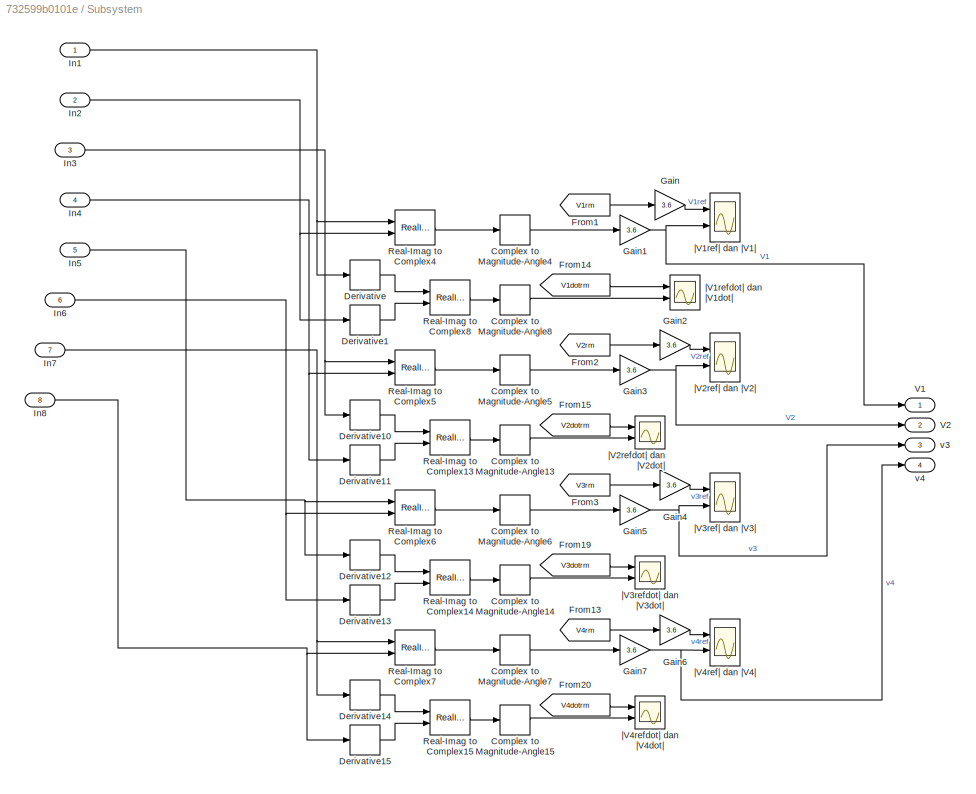
BLOCK [SubSystem] Subsystem
  Ports = [8, 4]
  RequestExecContextInheritance = off
BLOCK [ComplexToMagnitudeAngle] Subsystem/Complex to Magnitude-Angle13
  Output = Magnitude
  Ports = [1, 1]
BLOCK [ComplexToMagnitudeAngle] Subsystem/Complex to Magnitude-Angle14
  Output = Magnitude
  Ports = [1, 1]
BLOCK [ComplexToMagnitudeAngle] Subsystem/Complex to Magnitude-Angle15
  Output = Magnitude
  Ports = [1, 1]
BLOCK [ComplexToMagnitudeAngle] Subsystem/Complex to Magnitude-Angle4
  Output = Magnitude
  Ports = [1, 1]
BLOCK [ComplexToMagnitudeAngle] Subsystem/Complex to Magnitude-Angle5
  Output = Magnitude
  Ports = [1, 1]
BLOCK [ComplexToMagnitudeAngle] Subsystem/Complex to Magnitude-Angle6
  Output = Magnitude
  Ports = [1, 1]
BLOCK [ComplexToMagnitudeAngle] Subsystem/Complex to Magnitude-Angle7
  Output = Magnitude
  Ports = [1, 1]
BLOCK [ComplexToMagnitudeAngle] Subsystem/Complex to Magnitude-Angle8
  Output = Magnitude
  Ports = [1, 1]
BLOCK [Derivative] Subsystem/Derivative
BLOCK [Derivative] Subsystem/Derivative1
BLOCK [Derivative] Subsystem/Derivative10
BLOCK [Derivative] Subsystem/Derivative11
BLOCK [Derivative] Subsystem/Derivative12
BLOCK [Derivative] Subsystem/Derivative13
BLOCK [Derivative] Subsystem/Derivative14
BLOCK [Derivative] Subsystem/Derivative15
BLOCK [From] Subsystem/From1
  GotoTag = V1rm
BLOCK [From] Subsystem/From13
  GotoTag = V4rm
BLOCK [From] Subsystem/From14
  GotoTag = V1dotrm
BLOCK [From] Subsystem/From15
  GotoTag = V2dotrm
BLOCK [From] Subsystem/From19
  GotoTag = V3dotrm
BLOCK [From] Subsystem/From2
  GotoTag = V2rm
BLOCK [From] Subsystem/From20
  GotoTag = V4dotrm
BLOCK [From] Subsystem/From3
  GotoTag = V3rm
BLOCK [Gain] Subsystem/Gain
  Gain = 3.6
BLOCK [Gain] Subsystem/Gain1
  Gain = 3.6
BLOCK [Gain] Subsystem/Gain2
  Gain = 3.6
BLOCK [Gain] Subsystem/Gain3
  Gain = 3.6
BLOCK [Gain] Subsystem/Gain4
  Gain = 3.6
BLOCK [Gain] Subsystem/Gain5
  Gain = 3.6
BLOCK [Gain] Subsystem/Gain6
  Gain = 3.6
BLOCK [Gain] Subsystem/Gain7
  Gain = 3.6
BLOCK [Inport] Subsystem/In1
BLOCK [Inport] Subsystem/In2
  Port = 2
BLOCK [Inport] Subsystem/In3
  Port = 3
BLOCK [Inport] Subsystem/In4
  Port = 4
BLOCK [Inport] Subsystem/In5
  Port = 5
BLOCK [Inport] Subsystem/In6
  Port = 6
BLOCK [Inport] Subsystem/In7
  Port = 7
BLOCK [Inport] Subsystem/In8
  Port = 8
BLOCK [RealImagToComplex] Subsystem/Real-Imag to Complex13
  Ports = [2, 1]
BLOCK [RealImagToComplex] Subsystem/Real-Imag to Complex14
  Ports = [2, 1]
BLOCK [RealImagToComplex] Subsystem/Real-Imag to Complex15
  Ports = [2, 1]
BLOCK [RealImagToComplex] Subsystem/Real-Imag to Complex4
  Ports = [2, 1]
BLOCK [RealImagToComplex] Subsystem/Real-Imag to Complex5
  Ports = [2, 1]
BLOCK [RealImagToComplex] Subsystem/Real-Imag to Complex6
  Ports = [2, 1]
BLOCK [RealImagToComplex] Subsystem/Real-Imag to Complex7
  Ports = [2, 1]
BLOCK [RealImagToComplex] Subsystem/Real-Imag to Complex8
  Ports = [2, 1]
BLOCK [Outport] Subsystem/V1
BLOCK [Outport] Subsystem/V2
  Port = 2
BLOCK [Outport] Subsystem/v3
  Port = 3
BLOCK [Outport] Subsystem/v4
  Port = 4
BLOCK [Scope] Subsystem/|V1refdot| dan |V1dot|
  Floating = off
  NumInputPorts = 2
  Ports = [2]
  ScopeSpecificationString = Simulink.scopes.TimeScopeBlockCfg('CurrentConfiguration', extmgr.ConfigurationSet(extmgr.Configuration('Core','General UI',true),extmgr.Configuration('Core','Source UI',true),extmgr.Configuration('Sources','WiredSimulink',true,'DataLoggingVariableName','ScopeData3'),extmgr.Configuration('Visuals','Time Domain',true,'SerializedDisplays',{struct('MinYLimReal','-1.467','MaxYLimReal','13.20304','YLabe...<+1651ch>
BLOCK [Scope] Subsystem/|V1ref| dan |V1|
  Floating = off
  NumInputPorts = 2
  Ports = [2]
  ScopeSpecificationString = Simulink.scopes.TimeScopeBlockCfg('CurrentConfiguration', extmgr.ConfigurationSet(extmgr.Configuration('Core','General UI',true,'FigureColor',[1 1 1]),extmgr.Configuration('Core','Source UI',true),extmgr.Configuration('Sources','WiredSimulink',true,'DataLoggingVariableName','ScopeData4'),extmgr.Configuration('Visuals','Time Domain',true,'SerializedDisplays',{struct('MinYLimReal','-4.13339','MaxYLi...<+1669ch>
BLOCK [Scope] Subsystem/|V2refdot| dan |V2dot|
  Floating = off
  NumInputPorts = 2
  Ports = [2]
  ScopeSpecificationString = Simulink.scopes.TimeScopeBlockCfg('CurrentConfiguration', extmgr.ConfigurationSet(extmgr.Configuration('Core','General UI',true),extmgr.Configuration('Core','Source UI',true),extmgr.Configuration('Sources','WiredSimulink',true,'DataLoggingVariableName','ScopeData5'),extmgr.Configuration('Visuals','Time Domain',true,'SerializedDisplays',{struct('MinYLimReal','-31263513659278.45703','MaxYLimReal','2...<+1668ch>
BLOCK [Scope] Subsystem/|V2ref| dan |V2|
  Floating = off
  NumInputPorts = 2
  Ports = [2]
  ScopeSpecificationString = Simulink.scopes.TimeScopeBlockCfg('CurrentConfiguration', extmgr.ConfigurationSet(extmgr.Configuration('Core','General UI',true,'FigureColor',[1 1 1]),extmgr.Configuration('Core','Source UI',true),extmgr.Configuration('Sources','WiredSimulink',true,'DataLoggingVariableName','ScopeData6'),extmgr.Configuration('Visuals','Time Domain',true,'SerializedDisplays',{struct('MinYLimReal','-4.3168','MaxYLim...<+1643ch>
BLOCK [Scope] Subsystem/|V3refdot| dan |V3dot|
  Floating = off
  NumInputPorts = 2
  Ports = [2]
  ScopeSpecificationString = Simulink.scopes.TimeScopeBlockCfg('CurrentConfiguration', extmgr.ConfigurationSet(extmgr.Configuration('Core','General UI',true),extmgr.Configuration('Core','Source UI',true),extmgr.Configuration('Sources','WiredSimulink',true,'DataLoggingVariableName','ScopeData7'),extmgr.Configuration('Visuals','Time Domain',true,'SerializedDisplays',{struct('MinYLimReal','-31263513659272.60547','MaxYLimReal','2...<+1672ch>
BLOCK [Scope] Subsystem/|V3ref| dan |V3|
  Floating = off
  NumInputPorts = 2
  Ports = [2]
  ScopeSpecificationString = Simulink.scopes.TimeScopeBlockCfg('CurrentConfiguration', extmgr.ConfigurationSet(extmgr.Configuration('Core','General UI',true),extmgr.Configuration('Core','Source UI',true),extmgr.Configuration('Sources','WiredSimulink',true,'DataLoggingVariableName','ScopeData8'),extmgr.Configuration('Visuals','Time Domain',true,'SerializedDisplays',{struct('MinYLimReal','-4.12016','MaxYLimReal','37.42804','YLa...<+1602ch>
BLOCK [Scope] Subsystem/|V4refdot| dan |V4dot|
  Floating = off
  NumInputPorts = 2
  Ports = [2]
  ScopeSpecificationString = Simulink.scopes.TimeScopeBlockCfg('CurrentConfiguration', extmgr.ConfigurationSet(extmgr.Configuration('Core','General UI',true),extmgr.Configuration('Core','Source UI',true),extmgr.Configuration('Sources','WiredSimulink',true,'DataLoggingVariableName','ScopeData9'),extmgr.Configuration('Visuals','Time Domain',true,'SerializedDisplays',{struct('MinYLimReal','-31263513659278.23828','MaxYLimReal','2...<+1672ch>
BLOCK [Scope] Subsystem/|V4ref| dan |V4|
  Floating = off
  NumInputPorts = 2
  Ports = [2]
  ScopeSpecificationString = Simulink.scopes.TimeScopeBlockCfg('CurrentConfiguration', extmgr.ConfigurationSet(extmgr.Configuration('Core','General UI',true),extmgr.Configuration('Core','Source UI',true),extmgr.Configuration('Sources','WiredSimulink',true,'DataLoggingVariableName','ScopeData10'),extmgr.Configuration('Visuals','Time Domain',true,'SerializedDisplays',{struct('MinYLimReal','-4.29667','MaxYLimReal','39.02161','YL...<+1603ch>
BLOCK [SubSystem] Subsystem5
  Ports = [4, 3]
  RequestExecContextInheritance = off
BLOCK [Sum] Subsystem5/Add
  IconShape = rectangular
  Ports = [2, 1]
BLOCK [DotProduct] Subsystem5/Dot Product
  OutDataTypeStr = Inherit: Inherit via internal rule
BLOCK [DotProduct] Subsystem5/Dot Product1
  OutDataTypeStr = Inherit: Inherit via internal rule
BLOCK [DotProduct] Subsystem5/Dot Product2
  OutDataTypeStr = Inherit: Inherit via internal rule
BLOCK [DotProduct] Subsystem5/Dot Product3
  OutDataTypeStr = Inherit: Inherit via internal rule
BLOCK [Gain] Subsystem5/Gain
BLOCK [Sum] Subsystem5/Subtract
  IconShape = rectangular
  Inputs = +-
  Ports = [2, 1]
BLOCK [Trigonometry] Subsystem5/Trigonometric Function6
  Ports = [1, 1]
BLOCK [Trigonometry] Subsystem5/Trigonometric Function7
  Operator = cos
  Ports = [1, 1]
BLOCK [Outport] Subsystem5/Vx
BLOCK [Outport] Subsystem5/Vy
  Port = 2
BLOCK [Outport] Subsystem5/Yaw
  Port = 3
BLOCK [Inport] Subsystem5/psi
  Port = 4
BLOCK [Inport] Subsystem5/vxl
  NameLocation = right
BLOCK [Inport] Subsystem5/vxy
  NameLocation = right
  Port = 2
BLOCK [Inport] Subsystem5/yaw
  NameLocation = right
  Port = 3
BLOCK [Constant] TVP
  Value = 0
BLOCK [SubSystem] Torque Load Generation
  NameLocation = top
  Ports = [12, 4]
  RequestExecContextInheritance = off
BLOCK [Sum] Torque Load Generation/Add
  IconShape = rectangular
  Ports = [2, 1]
BLOCK [Sum] Torque Load Generation/Add1
  IconShape = rectangular
  Ports = [2, 1]
BLOCK [Sum] Torque Load Generation/Add2
  IconShape = rectangular
  Ports = [2, 1]
BLOCK [Sum] Torque Load Generation/Add3
  IconShape = rectangular
  Ports = [2, 1]
BLOCK [DotProduct] Torque Load Generation/Dot Product
  OutDataTypeStr = Inherit: Inherit via internal rule
BLOCK [DotProduct] Torque Load Generation/Dot Product1
  OutDataTypeStr = Inherit: Inherit via internal rule
BLOCK [DotProduct] Torque Load Generation/Dot Product2
  OutDataTypeStr = Inherit: Inherit via internal rule
BLOCK [DotProduct] Torque Load Generation/Dot Product3
  OutDataTypeStr = Inherit: Inherit via internal rule
BLOCK [DotProduct] Torque Load Generation/Dot Product4
  OutDataTypeStr = Inherit: Inherit via internal rule
BLOCK [DotProduct] Torque Load Generation/Dot Product5
  OutDataTypeStr = Inherit: Inherit via internal rule
BLOCK [DotProduct] Torque Load Generation/Dot Product6
  OutDataTypeStr = Inherit: Inherit via internal rule
BLOCK [DotProduct] Torque Load Generation/Dot Product7
  OutDataTypeStr = Inherit: Inherit via internal rule
BLOCK [Gain] Torque Load Generation/Gain
  Gain = re1
BLOCK [Gain] Torque Load Generation/Gain1
  Gain = re1
BLOCK [Gain] Torque Load Generation/Gain2
  Gain = re2
BLOCK [Gain] Torque Load Generation/Gain3
  Gain = re2
BLOCK [Gain] Torque Load Generation/Gain4
  Gain = re3
BLOCK [Gain] Torque Load Generation/Gain5
  Gain = re3
BLOCK [Gain] Torque Load Generation/Gain6
  Gain = re4
BLOCK [Gain] Torque Load Generation/Gain7
  Gain = re4
BLOCK [Outport] Torque Load Generation/TL1
BLOCK [Outport] Torque Load Generation/TL2
  Port = 2
BLOCK [Outport] Torque Load Generation/TL3
  Port = 3
BLOCK [Outport] Torque Load Generation/TL4
  Port = 4
BLOCK [Trigonometry] Torque Load Generation/Trigonometric Function
  Ports = [1, 1]
BLOCK [Trigonometry] Torque Load Generation/Trigonometric Function1
  Operator = cos
  Ports = [1, 1]
BLOCK [Trigonometry] Torque Load Generation/Trigonometric Function2
  Ports = [1, 1]
BLOCK [Trigonometry] Torque Load Generation/Trigonometric Function3
  Operator = cos
  Ports = [1, 1]
BLOCK [Trigonometry] Torque Load Generation/Trigonometric Function4
  Ports = [1, 1]
BLOCK [Trigonometry] Torque Load Generation/Trigonometric Function5
  Operator = cos
  Ports = [1, 1]
BLOCK [Trigonometry] Torque Load Generation/Trigonometric Function6
  Ports = [1, 1]
BLOCK [Trigonometry] Torque Load Generation/Trigonometric Function7
  Operator = cos
  Ports = [1, 1]
BLOCK [Inport] Torque Load Generation/d1
BLOCK [Inport] Torque Load Generation/d2
  Port = 2
BLOCK [Inport] Torque Load Generation/d3
  Port = 3
BLOCK [Inport] Torque Load Generation/d4
  Port = 4
BLOCK [Inport] Torque Load Generation/fx1
  Port = 5
BLOCK [Inport] Torque Load Generation/fx2
  Port = 6
BLOCK [Inport] Torque Load Generation/fx3
  Port = 7
BLOCK [Inport] Torque Load Generation/fx4
  Port = 8
BLOCK [Inport] Torque Load Generation/fy1
  Port = 9
BLOCK [Inport] Torque Load Generation/fy2
  Port = 10
BLOCK [Inport] Torque Load Generation/fy3
  Port = 11
BLOCK [Inport] Torque Load Generation/fy4
  Port = 12
BLOCK [Constant] W
  Value = ones(8,1)
BLOCK [Constant] dt
  Value = 0.01
ANNOTATION Assumption 1: vx1 kuadrat ditambah dengan vy1 kuadrat, dan seterusnya jika nilai penjumlahan tersebut tidak sama dengan 0, maka nilai vx1 dan vy1 diteruskan jika bernilai 0, maka nilai yg lama digunakan sebagai nilai baru nilai baru = ref
ANNOTATION EVloop1&2(3)-(6)1: Dari vx dan vy yg awalnya model kompleks (vx+i vy) diubah ke model magnitude untuk diperoleh nilai v totalnya berapa serta sudutnya. sudut ini yg kemudian digunakan sebagai beta. Alfa = delta-beta
ANNOTATION EVloop1&2(3)-(6)1: S1*satfcn
ANNOTATION EVloop2(1)(7): Vehicle Dynamic
LINE .:1 -> EVloop2(1)(7):1
LINE Assumption 1/Add1:1 -> Assumption 1/Switch5:2
LINE Assumption 1/Add2:1 -> Assumption 1/Switch3:2
LINE Assumption 1/Add3:1 -> Assumption 1/Switch4:2
LINE Assumption 1/Add:1 -> Assumption 1/Switch:2
LINE Assumption 1/Demux1:1 -> Assumption 1/vx2refo:1
LINE Assumption 1/Demux1:2 -> Assumption 1/vy2refo:1
LINE Assumption 1/Demux2:1 -> Assumption 1/vx3refo:1
LINE Assumption 1/Demux2:2 -> Assumption 1/vy3refo:1
LINE Assumption 1/Demux3:1 -> Assumption 1/vx4refo:1
LINE Assumption 1/Demux3:2 -> Assumption 1/vy4refo:1
LINE Assumption 1/Demux5:1 -> Assumption 1/vx1refo:1
LINE Assumption 1/Demux5:2 -> Assumption 1/vy1refo:1
LINE Assumption 1/Math Function1:1 -> Assumption 1/Add2:1
LINE Assumption 1/Math Function2:1 -> Assumption 1/Add3:1
LINE Assumption 1/Math Function3:1 -> Assumption 1/Add1:1
NET Assumption 1/Math Function4:1 -> Assumption 1/Add:2, Assumption 1/Display8:1
LINE Assumption 1/Math Function5:1 -> Assumption 1/Add2:2
LINE Assumption 1/Math Function6:1 -> Assumption 1/Add3:2
LINE Assumption 1/Math Function7:1 -> Assumption 1/Add1:2
NET Assumption 1/Math Function:1 -> Assumption 1/Add:1, Assumption 1/Display7:1
LINE Assumption 1/Mux1:1 -> Assumption 1/Switch5:1
LINE Assumption 1/Mux5:1 -> Assumption 1/Switch3:1
LINE Assumption 1/Mux7:1 -> Assumption 1/Switch4:1
LINE Assumption 1/Mux:1 -> Assumption 1/Switch:1
NET Assumption 1/Switch3:1 -> Assumption 1/Demux1:1, Assumption 1/Switch3:3
NET Assumption 1/Switch4:1 -> Assumption 1/Demux2:1, Assumption 1/Switch4:3
NET Assumption 1/Switch5:1 -> Assumption 1/Demux3:1, Assumption 1/Switch5:3
NET Assumption 1/Switch:1 -> Assumption 1/Demux5:1, Assumption 1/Switch:3
NET Assumption 1/vx1refi:1 -> Assumption 1/Math Function:1, Assumption 1/Mux:1
NET Assumption 1/vx2refi:1 -> Assumption 1/Math Function1:1, Assumption 1/Mux5:1
NET Assumption 1/vx3refi:1 -> Assumption 1/Math Function2:1, Assumption 1/Mux7:1
NET Assumption 1/vx4refi:1 -> Assumption 1/Math Function3:1, Assumption 1/Mux1:1
NET Assumption 1/vy1refi:1 -> Assumption 1/Math Function4:1, Assumption 1/Mux:2
NET Assumption 1/vy2refi:1 -> Assumption 1/Math Function5:1, Assumption 1/Mux5:2
NET Assumption 1/vy3refi:1 -> Assumption 1/Math Function6:1, Assumption 1/Mux7:2
NET Assumption 1/vy4refi:1 -> Assumption 1/Math Function7:1, Assumption 1/Mux1:2
NET Assumption 1:1 -> Assumption 3 & 4:1, Goto1:1, Speed Each Wheel:1, Speed of Each Wheel:1
NET Assumption 1:2 -> Assumption 3 & 4:2, Goto:1, Speed Each Wheel:2, Speed of Each Wheel:2
NET Assumption 1:3 -> Assumption 3 & 4:3, Goto2:1, Speed Each Wheel:3, Speed of Each Wheel:3
NET Assumption 1:4 -> Assumption 3 & 4:4, Goto3:1, Speed Each Wheel:4, Speed of Each Wheel:4
NET Assumption 1:5 -> Assumption 3 & 4:5, Goto4:1, Speed Each Wheel:5, Speed of Each Wheel:5
NET Assumption 1:6 -> Assumption 3 & 4:6, Goto5:1, Speed Each Wheel:6, Speed of Each Wheel:6
NET Assumption 1:7 -> Assumption 3 & 4:7, Goto6:1, Speed Each Wheel:7, Speed of Each Wheel:7
NET Assumption 1:8 -> Assumption 3 & 4:8, Goto7:1, Speed Each Wheel:8, Speed of Each Wheel:8
LINE Assumption 3 & 4/Complex to Magnitude-Angle1:1 -> Assumption 3 & 4/Gain9:1
NET Assumption 3 & 4/Complex to Magnitude-Angle1:2 -> Assumption 3 & 4/Mux:4, Assumption 3 & 4/d2ref:1
LINE Assumption 3 & 4/Complex to Magnitude-Angle2:1 -> Assumption 3 & 4/Gain10:1
NET Assumption 3 & 4/Complex to Magnitude-Angle2:2 -> Assumption 3 & 4/Mux:6, Assumption 3 & 4/d3ref:1
LINE Assumption 3 & 4/Complex to Magnitude-Angle3:1 -> Assumption 3 & 4/Gain11:1
NET Assumption 3 & 4/Complex to Magnitude-Angle3:2 -> Assumption 3 & 4/Mux:8, Assumption 3 & 4/d4ref:1
NET Assumption 3 & 4/Complex to Magnitude-Angle:1 -> Assumption 3 & 4/Display:1, Assumption 3 & 4/Gain8:1
NET Assumption 3 & 4/Complex to Magnitude-Angle:2 -> Assumption 3 & 4/Display1:1, Assumption 3 & 4/Mux:2, Assumption 3 & 4/d1ref:1
NET Assumption 3 & 4/Gain10:1 -> Assumption 3 & 4/Mux:5, Assumption 3 & 4/w3ref:1
NET Assumption 3 & 4/Gain11:1 -> Assumption 3 & 4/Mux:7, Assumption 3 & 4/w4ref:1
NET Assumption 3 & 4/Gain8:1 -> Assumption 3 & 4/Mux:1, Assumption 3 & 4/w1ref:1
NET Assumption 3 & 4/Gain9:1 -> Assumption 3 & 4/Mux:3, Assumption 3 & 4/w2ref:1
LINE Assumption 3 & 4/Mux:1 -> Assumption 3 & 4/Display5:1
LINE Assumption 3 & 4/Real-Imag to Complex1:1 -> Assumption 3 & 4/Complex to Magnitude-Angle1:1
NET Assumption 3 & 4/Real-Imag to Complex2:1 -> Assumption 3 & 4/Complex to Magnitude-Angle:1, Assumption 3 & 4/Display4:1
LINE Assumption 3 & 4/Real-Imag to Complex3:1 -> Assumption 3 & 4/Complex to Magnitude-Angle2:1
LINE Assumption 3 & 4/Real-Imag to Complex4:1 -> Assumption 3 & 4/Complex to Magnitude-Angle3:1
NET Assumption 3 & 4/vx1ref:1 -> Assumption 3 & 4/Display2:1, Assumption 3 & 4/Real-Imag to Complex2:1
LINE Assumption 3 & 4/vx2ref:1 -> Assumption 3 & 4/Real-Imag to Complex1:1
LINE Assumption 3 & 4/vx3ref:1 -> Assumption 3 & 4/Real-Imag to Complex3:1
LINE Assumption 3 & 4/vx4ref:1 -> Assumption 3 & 4/Real-Imag to Complex4:1
NET Assumption 3 & 4/vy1ref:1 -> Assumption 3 & 4/Display3:1, Assumption 3 & 4/Real-Imag to Complex2:2
LINE Assumption 3 & 4/vy2ref:1 -> Assumption 3 & 4/Real-Imag to Complex1:2
LINE Assumption 3 & 4/vy3ref:1 -> Assumption 3 & 4/Real-Imag to Complex3:2
LINE Assumption 3 & 4/vy4ref:1 -> Assumption 3 & 4/Real-Imag to Complex4:2
LINE Assumption 3 & 4:1 -> Motor Each Wheel:1
LINE Assumption 3 & 4:2 -> Motor Each Wheel:2
LINE Assumption 3 & 4:3 -> Motor Each Wheel:3
LINE Assumption 3 & 4:4 -> Motor Each Wheel:4
LINE Assumption 3 & 4:5 -> Motor Each Wheel:5
LINE Assumption 3 & 4:6 -> Motor Each Wheel:6
LINE Assumption 3 & 4:7 -> Motor Each Wheel:7
LINE Assumption 3 & 4:8 -> Motor Each Wheel:8
NET Body to Wheel Velocity/Add1:1 -> Body to Wheel Velocity/Mux:2, Body to Wheel Velocity/vx2ref:1
NET Body to Wheel Velocity/Add2:1 -> Body to Wheel Velocity/Mux:3, Body to Wheel Velocity/vx3ref:1
NET Body to Wheel Velocity/Add3:1 -> Body to Wheel Velocity/Mux:4, Body to Wheel Velocity/vx4ref:1
NET Body to Wheel Velocity/Add4:1 -> Body to Wheel Velocity/Mux:5, Body to Wheel Velocity/vy1ref:1
NET Body to Wheel Velocity/Add5:1 -> Body to Wheel Velocity/Mux:6, Body to Wheel Velocity/vy2ref:1
NET Body to Wheel Velocity/Add6:1 -> Body to Wheel Velocity/Mux:7, Body to Wheel Velocity/vy3ref:1
NET Body to Wheel Velocity/Add7:1 -> Body to Wheel Velocity/Mux:8, Body to Wheel Velocity/vy4ref:1
NET Body to Wheel Velocity/Add:1 -> Body to Wheel Velocity/Mux:1, Body to Wheel Velocity/vx1ref:1
NET Body to Wheel Velocity/Gain10:1 -> Body to Wheel Velocity/Add6:2, Body to Wheel Velocity/Add7:2
NET Body to Wheel Velocity/Gain11:1 -> Body to Wheel Velocity/Add2:2, Body to Wheel Velocity/Add:2
NET Body to Wheel Velocity/Gain8:1 -> Body to Wheel Velocity/Add4:2, Body to Wheel Velocity/Add5:2
NET Body to Wheel Velocity/Gain9:1 -> Body to Wheel Velocity/Add1:2, Body to Wheel Velocity/Add3:2
NET Body to Wheel Velocity/Mux:1 -> Body to Wheel Velocity/Display:1, Body to Wheel Velocity/To Workspace:1
NET Body to Wheel Velocity/vxlref:1 -> Body to Wheel Velocity/Add1:1, Body to Wheel Velocity/Add2:1, Body to Wheel Velocity/Add3:1, Body to Wheel Velocity/Add:1
NET Body to Wheel Velocity/vylref:1 -> Body to Wheel Velocity/Add4:1, Body to Wheel Velocity/Add5:1, Body to Wheel Velocity/Add6:1, Body to Wheel Velocity/Add7:1
NET Body to Wheel Velocity/yawref:1 -> Body to Wheel Velocity/Gain10:1, Body to Wheel Velocity/Gain11:1, Body to Wheel Velocity/Gain8:1, Body to Wheel Velocity/Gain9:1
LINE Body to Wheel Velocity:1 -> Assumption 1:1
LINE Body to Wheel Velocity:2 -> Assumption 1:2
LINE Body to Wheel Velocity:3 -> Assumption 1:3
LINE Body to Wheel Velocity:4 -> Assumption 1:4
LINE Body to Wheel Velocity:5 -> Assumption 1:5
LINE Body to Wheel Velocity:6 -> Assumption 1:6
LINE Body to Wheel Velocity:7 -> Assumption 1:7
LINE Body to Wheel Velocity:8 -> Assumption 1:8
LINE Demux:1 -> Body to Wheel Velocity:1
LINE Demux:2 -> Body to Wheel Velocity:2
LINE Demux:3 -> Body to Wheel Velocity:3
NET EVloop1&2(3)-(6)1/Abs1:1 -> EVloop1&2(3)-(6)1/Divide10:2, EVloop1&2(3)-(6)1/Gain11:1, EVloop1&2(3)-(6)1/Gain12:1, EVloop1&2(3)-(6)1/Mux3:2, EVloop1&2(3)-(6)1/S2:1
NET EVloop1&2(3)-(6)1/Abs2:1 -> EVloop1&2(3)-(6)1/Divide9:2, EVloop1&2(3)-(6)1/Gain14:1, EVloop1&2(3)-(6)1/Gain15:1, EVloop1&2(3)-(6)1/Mux3:3, EVloop1&2(3)-(6)1/S3:1
NET EVloop1&2(3)-(6)1/Abs3:1 -> EVloop1&2(3)-(6)1/Divide8:2, EVloop1&2(3)-(6)1/Gain17:1, EVloop1&2(3)-(6)1/Gain18:1, EVloop1&2(3)-(6)1/Mux3:4, EVloop1&2(3)-(6)1/S4:1
NET EVloop1&2(3)-(6)1/Abs:1 -> EVloop1&2(3)-(6)1/Divide11:2, EVloop1&2(3)-(6)1/Gain10:1, EVloop1&2(3)-(6)1/Gain8:1, EVloop1&2(3)-(6)1/Mux3:1, EVloop1&2(3)-(6)1/S1:1
LINE EVloop1&2(3)-(6)1/Add1:1 -> EVloop1&2(3)-(6)1/Dot Product25:2
LINE EVloop1&2(3)-(6)1/Add2:1 -> EVloop1&2(3)-(6)1/Dot Product26:2
LINE EVloop1&2(3)-(6)1/Add3:1 -> EVloop1&2(3)-(6)1/Dot Product27:2
LINE EVloop1&2(3)-(6)1/Add4:1 -> EVloop1&2(3)-(6)1/Dot Product28:2
LINE EVloop1&2(3)-(6)1/Add5:1 -> EVloop1&2(3)-(6)1/Dot Product29:2
LINE EVloop1&2(3)-(6)1/Add6:1 -> EVloop1&2(3)-(6)1/Dot Product30:2
LINE EVloop1&2(3)-(6)1/Add7:1 -> EVloop1&2(3)-(6)1/Dot Product31:2
LINE EVloop1&2(3)-(6)1/Add:1 -> EVloop1&2(3)-(6)1/Dot Product24:2
NET EVloop1&2(3)-(6)1/Complex to Magnitude-Angle1:1 -> EVloop1&2(3)-(6)1/MinMax1:2, EVloop1&2(3)-(6)1/Subtract5:2
NET EVloop1&2(3)-(6)1/Complex to Magnitude-Angle1:2 -> EVloop1&2(3)-(6)1/Mux4:2, EVloop1&2(3)-(6)1/Subtract1:2, EVloop1&2(3)-(6)1/Trigonometric Function10:1, EVloop1&2(3)-(6)1/Trigonometric Function11:1
NET EVloop1&2(3)-(6)1/Complex to Magnitude-Angle2:1 -> EVloop1&2(3)-(6)1/MinMax2:2, EVloop1&2(3)-(6)1/Subtract6:2
NET EVloop1&2(3)-(6)1/Complex to Magnitude-Angle2:2 -> EVloop1&2(3)-(6)1/Mux4:3, EVloop1&2(3)-(6)1/Subtract2:2, EVloop1&2(3)-(6)1/Trigonometric Function12:1, EVloop1&2(3)-(6)1/Trigonometric Function13:1
NET EVloop1&2(3)-(6)1/Complex to Magnitude-Angle3:1 -> EVloop1&2(3)-(6)1/MinMax3:2, EVloop1&2(3)-(6)1/Subtract7:2
NET EVloop1&2(3)-(6)1/Complex to Magnitude-Angle3:2 -> EVloop1&2(3)-(6)1/Mux4:4, EVloop1&2(3)-(6)1/Subtract3:2, EVloop1&2(3)-(6)1/Trigonometric Function14:1, EVloop1&2(3)-(6)1/Trigonometric Function15:1, EVloop1&2(3)-(6)1/Trigonometric Function16:1
NET EVloop1&2(3)-(6)1/Complex to Magnitude-Angle:1 -> EVloop1&2(3)-(6)1/MinMax:2, EVloop1&2(3)-(6)1/Subtract4:2
NET EVloop1&2(3)-(6)1/Complex to Magnitude-Angle:2 -> EVloop1&2(3)-(6)1/Display5:1, EVloop1&2(3)-(6)1/Mux4:1, EVloop1&2(3)-(6)1/Subtract:2, EVloop1&2(3)-(6)1/Trigonometric Function8:1, EVloop1&2(3)-(6)1/Trigonometric Function9:1
LINE EVloop1&2(3)-(6)1/Constant10:1 -> EVloop1&2(3)-(6)1/MATLAB Function1:6
LINE EVloop1&2(3)-(6)1/Constant11:1 -> EVloop1&2(3)-(6)1/MATLAB Function1:7
LINE EVloop1&2(3)-(6)1/Constant12:1 -> EVloop1&2(3)-(6)1/MATLAB Function1:8
LINE EVloop1&2(3)-(6)1/Constant13:1 -> EVloop1&2(3)-(6)1/MATLAB Function1:9
LINE EVloop1&2(3)-(6)1/Constant14:1 -> EVloop1&2(3)-(6)1/MATLAB Function1:10
LINE EVloop1&2(3)-(6)1/Constant15:1 -> EVloop1&2(3)-(6)1/MATLAB Function1:4
LINE EVloop1&2(3)-(6)1/Constant16:1 -> EVloop1&2(3)-(6)1/MATLAB Function1:3
LINE EVloop1&2(3)-(6)1/Constant1:1 -> EVloop1&2(3)-(6)1/Subtract10:1
LINE EVloop1&2(3)-(6)1/Constant2:1 -> EVloop1&2(3)-(6)1/Subtract12:1
LINE EVloop1&2(3)-(6)1/Constant3:1 -> EVloop1&2(3)-(6)1/Subtract14:1
LINE EVloop1&2(3)-(6)1/Constant9:1 -> EVloop1&2(3)-(6)1/MATLAB Function1:5
LINE EVloop1&2(3)-(6)1/Constant:1 -> EVloop1&2(3)-(6)1/Subtract8:1
NET EVloop1&2(3)-(6)1/Divide10:1 -> EVloop1&2(3)-(6)1/Dot Product25:1, EVloop1&2(3)-(6)1/Dot Product30:1
NET EVloop1&2(3)-(6)1/Divide11:1 -> EVloop1&2(3)-(6)1/Dot Product24:1, EVloop1&2(3)-(6)1/Dot Product31:1
NET EVloop1&2(3)-(6)1/Divide1:1 -> EVloop1&2(3)-(6)1/Dot Product17:1, EVloop1&2(3)-(6)1/Dot Product9:1, EVloop1&2(3)-(6)1/Real-Imag to Complex5:1
NET EVloop1&2(3)-(6)1/Divide2:1 -> EVloop1&2(3)-(6)1/Dot Product10:1, EVloop1&2(3)-(6)1/Dot Product20:1, EVloop1&2(3)-(6)1/Real-Imag to Complex6:1
NET EVloop1&2(3)-(6)1/Divide3:1 -> EVloop1&2(3)-(6)1/Dot Product11:1, EVloop1&2(3)-(6)1/Dot Product23:1, EVloop1&2(3)-(6)1/Real-Imag to Complex7:1
NET EVloop1&2(3)-(6)1/Divide4:1 -> EVloop1&2(3)-(6)1/Display3:1, EVloop1&2(3)-(6)1/Dot Product12:1, EVloop1&2(3)-(6)1/Dot Product13:2, EVloop1&2(3)-(6)1/Real-Imag to Complex4:2
NET EVloop1&2(3)-(6)1/Divide5:1 -> EVloop1&2(3)-(6)1/Dot Product15:1, EVloop1&2(3)-(6)1/Dot Product16:2, EVloop1&2(3)-(6)1/Real-Imag to Complex5:2
NET EVloop1&2(3)-(6)1/Divide6:1 -> EVloop1&2(3)-(6)1/Dot Product18:1, EVloop1&2(3)-(6)1/Dot Product19:2, EVloop1&2(3)-(6)1/Real-Imag to Complex6:2
NET EVloop1&2(3)-(6)1/Divide7:1 -> EVloop1&2(3)-(6)1/Dot Product21:1, EVloop1&2(3)-(6)1/Dot Product22:2, EVloop1&2(3)-(6)1/Real-Imag to Complex7:2
NET EVloop1&2(3)-(6)1/Divide8:1 -> EVloop1&2(3)-(6)1/Dot Product27:1, EVloop1&2(3)-(6)1/Dot Product28:1
NET EVloop1&2(3)-(6)1/Divide9:1 -> EVloop1&2(3)-(6)1/Dot Product26:1, EVloop1&2(3)-(6)1/Dot Product29:1
NET EVloop1&2(3)-(6)1/Divide:1 -> EVloop1&2(3)-(6)1/Display2:1, EVloop1&2(3)-(6)1/Dot Product14:1, EVloop1&2(3)-(6)1/Dot Product8:1, EVloop1&2(3)-(6)1/Real-Imag to Complex4:1
LINE EVloop1&2(3)-(6)1/Dot Product10:1 -> EVloop1&2(3)-(6)1/Add2:1
LINE EVloop1&2(3)-(6)1/Dot Product11:1 -> EVloop1&2(3)-(6)1/Add3:1
LINE EVloop1&2(3)-(6)1/Dot Product12:1 -> EVloop1&2(3)-(6)1/Add:2
LINE EVloop1&2(3)-(6)1/Dot Product13:1 -> EVloop1&2(3)-(6)1/Add7:1
LINE EVloop1&2(3)-(6)1/Dot Product14:1 -> EVloop1&2(3)-(6)1/Add7:2
LINE EVloop1&2(3)-(6)1/Dot Product15:1 -> EVloop1&2(3)-(6)1/Add1:2
LINE EVloop1&2(3)-(6)1/Dot Product16:1 -> EVloop1&2(3)-(6)1/Add6:1
LINE EVloop1&2(3)-(6)1/Dot Product17:1 -> EVloop1&2(3)-(6)1/Add6:2
LINE EVloop1&2(3)-(6)1/Dot Product18:1 -> EVloop1&2(3)-(6)1/Add2:2
LINE EVloop1&2(3)-(6)1/Dot Product19:1 -> EVloop1&2(3)-(6)1/Add5:1
LINE EVloop1&2(3)-(6)1/Dot Product1:1 -> EVloop1&2(3)-(6)1/Divide4:2
LINE EVloop1&2(3)-(6)1/Dot Product20:1 -> EVloop1&2(3)-(6)1/Add5:2
LINE EVloop1&2(3)-(6)1/Dot Product21:1 -> EVloop1&2(3)-(6)1/Add3:2
LINE EVloop1&2(3)-(6)1/Dot Product22:1 -> EVloop1&2(3)-(6)1/Add4:1
LINE EVloop1&2(3)-(6)1/Dot Product23:1 -> EVloop1&2(3)-(6)1/Add4:2
NET EVloop1&2(3)-(6)1/Dot Product24:1 -> EVloop1&2(3)-(6)1/Dot Product32:1, EVloop1&2(3)-(6)1/Mux:1
NET EVloop1&2(3)-(6)1/Dot Product25:1 -> EVloop1&2(3)-(6)1/Dot Product33:2, EVloop1&2(3)-(6)1/Mux:2
NET EVloop1&2(3)-(6)1/Dot Product26:1 -> EVloop1&2(3)-(6)1/Dot Product34:2, EVloop1&2(3)-(6)1/Mux:3
NET EVloop1&2(3)-(6)1/Dot Product27:1 -> EVloop1&2(3)-(6)1/Dot Product35:2, EVloop1&2(3)-(6)1/Mux:4
NET EVloop1&2(3)-(6)1/Dot Product28:1 -> EVloop1&2(3)-(6)1/Dot Product36:2, EVloop1&2(3)-(6)1/Mux1:4
NET EVloop1&2(3)-(6)1/Dot Product29:1 -> EVloop1&2(3)-(6)1/Dot Product37:2, EVloop1&2(3)-(6)1/Mux1:3
NET EVloop1&2(3)-(6)1/Dot Product2:1 -> EVloop1&2(3)-(6)1/MinMax1:1, EVloop1&2(3)-(6)1/Subtract5:1
NET EVloop1&2(3)-(6)1/Dot Product30:1 -> EVloop1&2(3)-(6)1/Dot Product38:2, EVloop1&2(3)-(6)1/Mux1:2
NET EVloop1&2(3)-(6)1/Dot Product31:1 -> EVloop1&2(3)-(6)1/Dot Product39:2, EVloop1&2(3)-(6)1/Mux1:1
NET EVloop1&2(3)-(6)1/Dot Product32:1 -> EVloop1&2(3)-(6)1/Mux6:1, EVloop1&2(3)-(6)1/fx1:1
NET EVloop1&2(3)-(6)1/Dot Product33:1 -> EVloop1&2(3)-(6)1/Mux6:2, EVloop1&2(3)-(6)1/fx2:1
NET EVloop1&2(3)-(6)1/Dot Product34:1 -> EVloop1&2(3)-(6)1/Mux6:3, EVloop1&2(3)-(6)1/fx3:1
NET EVloop1&2(3)-(6)1/Dot Product35:1 -> EVloop1&2(3)-(6)1/Mux6:4, EVloop1&2(3)-(6)1/fx4:1
NET EVloop1&2(3)-(6)1/Dot Product36:1 -> EVloop1&2(3)-(6)1/Mux7:4, EVloop1&2(3)-(6)1/fy4:1
NET EVloop1&2(3)-(6)1/Dot Product37:1 -> EVloop1&2(3)-(6)1/Mux7:3, EVloop1&2(3)-(6)1/fy3:1
NET EVloop1&2(3)-(6)1/Dot Product38:1 -> EVloop1&2(3)-(6)1/Mux7:2, EVloop1&2(3)-(6)1/fy2:1
NET EVloop1&2(3)-(6)1/Dot Product39:1 -> EVloop1&2(3)-(6)1/Mux7:1, EVloop1&2(3)-(6)1/fy1:1
LINE EVloop1&2(3)-(6)1/Dot Product3:1 -> EVloop1&2(3)-(6)1/Divide5:2
NET EVloop1&2(3)-(6)1/Dot Product4:1 -> EVloop1&2(3)-(6)1/MinMax2:1, EVloop1&2(3)-(6)1/Subtract6:1
LINE EVloop1&2(3)-(6)1/Dot Product5:1 -> EVloop1&2(3)-(6)1/Divide6:2
NET EVloop1&2(3)-(6)1/Dot Product6:1 -> EVloop1&2(3)-(6)1/MinMax3:1, EVloop1&2(3)-(6)1/Subtract7:1
LINE EVloop1&2(3)-(6)1/Dot Product7:1 -> EVloop1&2(3)-(6)1/Divide7:2
LINE EVloop1&2(3)-(6)1/Dot Product8:1 -> EVloop1&2(3)-(6)1/Add:1
LINE EVloop1&2(3)-(6)1/Dot Product9:1 -> EVloop1&2(3)-(6)1/Add1:1
NET EVloop1&2(3)-(6)1/Dot Product:1 -> EVloop1&2(3)-(6)1/Display:1, EVloop1&2(3)-(6)1/MinMax:1, EVloop1&2(3)-(6)1/Subtract4:1
LINE EVloop1&2(3)-(6)1/Gain10:1 -> EVloop1&2(3)-(6)1/Subtract9:2
LINE EVloop1&2(3)-(6)1/Gain11:1 -> EVloop1&2(3)-(6)1/Subtract11:2
LINE EVloop1&2(3)-(6)1/Gain12:1 -> EVloop1&2(3)-(6)1/Math Function1:1
LINE EVloop1&2(3)-(6)1/Gain13:1 -> EVloop1&2(3)-(6)1/Subtract11:1
LINE EVloop1&2(3)-(6)1/Gain14:1 -> EVloop1&2(3)-(6)1/Subtract13:2
LINE EVloop1&2(3)-(6)1/Gain15:1 -> EVloop1&2(3)-(6)1/Math Function2:1
LINE EVloop1&2(3)-(6)1/Gain16:1 -> EVloop1&2(3)-(6)1/Subtract13:1
LINE EVloop1&2(3)-(6)1/Gain17:1 -> EVloop1&2(3)-(6)1/Subtract15:2
LINE EVloop1&2(3)-(6)1/Gain18:1 -> EVloop1&2(3)-(6)1/Math Function3:1
LINE EVloop1&2(3)-(6)1/Gain19:1 -> EVloop1&2(3)-(6)1/Subtract15:1
LINE EVloop1&2(3)-(6)1/Gain1:1 -> EVloop1&2(3)-(6)1/Dot Product1:2
LINE EVloop1&2(3)-(6)1/Gain20:1 -> EVloop1&2(3)-(6)1/Dot Product12:2
LINE EVloop1&2(3)-(6)1/Gain21:1 -> EVloop1&2(3)-(6)1/Dot Product15:2
LINE EVloop1&2(3)-(6)1/Gain22:1 -> EVloop1&2(3)-(6)1/Dot Product18:2
LINE EVloop1&2(3)-(6)1/Gain24:1 -> EVloop1&2(3)-(6)1/Dot Product13:1
LINE EVloop1&2(3)-(6)1/Gain25:1 -> EVloop1&2(3)-(6)1/Dot Product16:1
LINE EVloop1&2(3)-(6)1/Gain26:1 -> EVloop1&2(3)-(6)1/Dot Product19:1
LINE EVloop1&2(3)-(6)1/Gain27:1 -> EVloop1&2(3)-(6)1/Dot Product22:1
LINE EVloop1&2(3)-(6)1/Gain28:1 -> EVloop1&2(3)-(6)1/Dot Product21:2
LINE EVloop1&2(3)-(6)1/Gain2:1 -> EVloop1&2(3)-(6)1/Dot Product2:2
LINE EVloop1&2(3)-(6)1/Gain3:1 -> EVloop1&2(3)-(6)1/Dot Product3:2
LINE EVloop1&2(3)-(6)1/Gain4:1 -> EVloop1&2(3)-(6)1/Dot Product4:2
LINE EVloop1&2(3)-(6)1/Gain5:1 -> EVloop1&2(3)-(6)1/Dot Product5:2
LINE EVloop1&2(3)-(6)1/Gain6:1 -> EVloop1&2(3)-(6)1/Dot Product6:2
LINE EVloop1&2(3)-(6)1/Gain7:1 -> EVloop1&2(3)-(6)1/Dot Product7:2
LINE EVloop1&2(3)-(6)1/Gain8:1 -> EVloop1&2(3)-(6)1/Math Function:1
LINE EVloop1&2(3)-(6)1/Gain9:1 -> EVloop1&2(3)-(6)1/Subtract9:1
LINE EVloop1&2(3)-(6)1/Gain:1 -> EVloop1&2(3)-(6)1/Dot Product:2
NET EVloop1&2(3)-(6)1/MATLAB Function1:1 -> EVloop1&2(3)-(6)1/Dot Product32:2, EVloop1&2(3)-(6)1/Dot Product39:1, EVloop1&2(3)-(6)1/Mux2:1
NET EVloop1&2(3)-(6)1/MATLAB Function1:2 -> EVloop1&2(3)-(6)1/Dot Product33:1, EVloop1&2(3)-(6)1/Dot Product38:1, EVloop1&2(3)-(6)1/Mux2:2
NET EVloop1&2(3)-(6)1/MATLAB Function1:3 -> EVloop1&2(3)-(6)1/Dot Product34:1, EVloop1&2(3)-(6)1/Dot Product37:1, EVloop1&2(3)-(6)1/Mux2:3
NET EVloop1&2(3)-(6)1/MATLAB Function1:4 -> EVloop1&2(3)-(6)1/Dot Product35:1, EVloop1&2(3)-(6)1/Dot Product36:1, EVloop1&2(3)-(6)1/Mux2:4
LINE EVloop1&2(3)-(6)1/Math Function1:1 -> EVloop1&2(3)-(6)1/Subtract10:2
LINE EVloop1&2(3)-(6)1/Math Function2:1 -> EVloop1&2(3)-(6)1/Subtract12:2
LINE EVloop1&2(3)-(6)1/Math Function3:1 -> EVloop1&2(3)-(6)1/Subtract14:2
LINE EVloop1&2(3)-(6)1/Math Function:1 -> EVloop1&2(3)-(6)1/Subtract8:2
NET EVloop1&2(3)-(6)1/MinMax1:1 -> EVloop1&2(3)-(6)1/Divide1:1, EVloop1&2(3)-(6)1/Divide5:1
NET EVloop1&2(3)-(6)1/MinMax2:1 -> EVloop1&2(3)-(6)1/Divide2:1, EVloop1&2(3)-(6)1/Divide6:1
NET EVloop1&2(3)-(6)1/MinMax3:1 -> EVloop1&2(3)-(6)1/Divide3:1, EVloop1&2(3)-(6)1/Divide7:1
NET EVloop1&2(3)-(6)1/MinMax:1 -> EVloop1&2(3)-(6)1/Divide4:1, EVloop1&2(3)-(6)1/Divide:1
NET EVloop1&2(3)-(6)1/Mux1:1 -> EVloop1&2(3)-(6)1/Display12:1, EVloop1&2(3)-(6)1/MATLAB Function1:2, EVloop1&2(3)-(6)1/To Workspace5:1
NET EVloop1&2(3)-(6)1/Mux2:1 -> EVloop1&2(3)-(6)1/Display6:1, EVloop1&2(3)-(6)1/To Workspace:1
NET EVloop1&2(3)-(6)1/Mux3:1 -> EVloop1&2(3)-(6)1/Display7:1, EVloop1&2(3)-(6)1/To Workspace1:1
NET EVloop1&2(3)-(6)1/Mux4:1 -> EVloop1&2(3)-(6)1/Display8:1, EVloop1&2(3)-(6)1/To Workspace2:1
NET EVloop1&2(3)-(6)1/Mux5:1 -> EVloop1&2(3)-(6)1/Display1:1, EVloop1&2(3)-(6)1/To Workspace3:1
NET EVloop1&2(3)-(6)1/Mux6:1 -> EVloop1&2(3)-(6)1/Display9:1, EVloop1&2(3)-(6)1/To Workspace6:1
NET EVloop1&2(3)-(6)1/Mux7:1 -> EVloop1&2(3)-(6)1/Display10:1, EVloop1&2(3)-(6)1/To Workspace7:1
NET EVloop1&2(3)-(6)1/Mux:1 -> EVloop1&2(3)-(6)1/Display11:1, EVloop1&2(3)-(6)1/MATLAB Function1:1, EVloop1&2(3)-(6)1/To Workspace4:1
LINE EVloop1&2(3)-(6)1/Real-Imag to Complex1:1 -> EVloop1&2(3)-(6)1/Complex to Magnitude-Angle1:1
LINE EVloop1&2(3)-(6)1/Real-Imag to Complex2:1 -> EVloop1&2(3)-(6)1/Complex to Magnitude-Angle2:1
LINE EVloop1&2(3)-(6)1/Real-Imag to Complex3:1 -> EVloop1&2(3)-(6)1/Complex to Magnitude-Angle3:1
LINE EVloop1&2(3)-(6)1/Real-Imag to Complex4:1 -> EVloop1&2(3)-(6)1/Abs:1
LINE EVloop1&2(3)-(6)1/Real-Imag to Complex5:1 -> EVloop1&2(3)-(6)1/Abs1:1
LINE EVloop1&2(3)-(6)1/Real-Imag to Complex6:1 -> EVloop1&2(3)-(6)1/Abs2:1
LINE EVloop1&2(3)-(6)1/Real-Imag to Complex7:1 -> EVloop1&2(3)-(6)1/Abs3:1
NET EVloop1&2(3)-(6)1/Real-Imag to Complex:1 -> EVloop1&2(3)-(6)1/Complex to Magnitude-Angle:1, EVloop1&2(3)-(6)1/Display4:1
LINE EVloop1&2(3)-(6)1/Subtract10:1 -> EVloop1&2(3)-(6)1/Gain13:1
LINE EVloop1&2(3)-(6)1/Subtract11:1 -> EVloop1&2(3)-(6)1/Divide10:1
LINE EVloop1&2(3)-(6)1/Subtract12:1 -> EVloop1&2(3)-(6)1/Gain16:1
LINE EVloop1&2(3)-(6)1/Subtract13:1 -> EVloop1&2(3)-(6)1/Divide9:1
LINE EVloop1&2(3)-(6)1/Subtract14:1 -> EVloop1&2(3)-(6)1/Gain19:1
LINE EVloop1&2(3)-(6)1/Subtract15:1 -> EVloop1&2(3)-(6)1/Divide8:1
NET EVloop1&2(3)-(6)1/Subtract1:1 -> EVloop1&2(3)-(6)1/Mux5:2, EVloop1&2(3)-(6)1/Trigonometric Function1:1, EVloop1&2(3)-(6)1/Trigonometric Function2:1
NET EVloop1&2(3)-(6)1/Subtract2:1 -> EVloop1&2(3)-(6)1/Mux5:3, EVloop1&2(3)-(6)1/Trigonometric Function3:1, EVloop1&2(3)-(6)1/Trigonometric Function5:1
NET EVloop1&2(3)-(6)1/Subtract3:1 -> EVloop1&2(3)-(6)1/Mux5:4, EVloop1&2(3)-(6)1/Trigonometric Function6:1, EVloop1&2(3)-(6)1/Trigonometric Function7:1
LINE EVloop1&2(3)-(6)1/Subtract4:1 -> EVloop1&2(3)-(6)1/Divide:2
LINE EVloop1&2(3)-(6)1/Subtract5:1 -> EVloop1&2(3)-(6)1/Divide1:2
LINE EVloop1&2(3)-(6)1/Subtract6:1 -> EVloop1&2(3)-(6)1/Divide2:2
LINE EVloop1&2(3)-(6)1/Subtract7:1 -> EVloop1&2(3)-(6)1/Divide3:2
LINE EVloop1&2(3)-(6)1/Subtract8:1 -> EVloop1&2(3)-(6)1/Gain9:1
LINE EVloop1&2(3)-(6)1/Subtract9:1 -> EVloop1&2(3)-(6)1/Divide11:1
NET EVloop1&2(3)-(6)1/Subtract:1 -> EVloop1&2(3)-(6)1/Mux5:1, EVloop1&2(3)-(6)1/Trigonometric Function4:1, EVloop1&2(3)-(6)1/Trigonometric Function:1
NET EVloop1&2(3)-(6)1/Trigonometric Function10:1 -> EVloop1&2(3)-(6)1/Dot Product17:2, EVloop1&2(3)-(6)1/Gain21:1
NET EVloop1&2(3)-(6)1/Trigonometric Function11:1 -> EVloop1&2(3)-(6)1/Dot Product9:2, EVloop1&2(3)-(6)1/Gain25:1
NET EVloop1&2(3)-(6)1/Trigonometric Function12:1 -> EVloop1&2(3)-(6)1/Dot Product20:2, EVloop1&2(3)-(6)1/Gain22:1
NET EVloop1&2(3)-(6)1/Trigonometric Function13:1 -> EVloop1&2(3)-(6)1/Dot Product10:2, EVloop1&2(3)-(6)1/Gain26:1
LINE EVloop1&2(3)-(6)1/Trigonometric Function14:1 -> EVloop1&2(3)-(6)1/Gain23:1
NET EVloop1&2(3)-(6)1/Trigonometric Function15:1 -> EVloop1&2(3)-(6)1/Dot Product11:2, EVloop1&2(3)-(6)1/Gain27:1
NET EVloop1&2(3)-(6)1/Trigonometric Function16:1 -> EVloop1&2(3)-(6)1/Dot Product23:2, EVloop1&2(3)-(6)1/Gain28:1
LINE EVloop1&2(3)-(6)1/Trigonometric Function1:1 -> EVloop1&2(3)-(6)1/Gain3:1
LINE EVloop1&2(3)-(6)1/Trigonometric Function2:1 -> EVloop1&2(3)-(6)1/Gain2:1
LINE EVloop1&2(3)-(6)1/Trigonometric Function3:1 -> EVloop1&2(3)-(6)1/Gain5:1
LINE EVloop1&2(3)-(6)1/Trigonometric Function4:1 -> EVloop1&2(3)-(6)1/Gain:1
LINE EVloop1&2(3)-(6)1/Trigonometric Function5:1 -> EVloop1&2(3)-(6)1/Gain4:1
LINE EVloop1&2(3)-(6)1/Trigonometric Function6:1 -> EVloop1&2(3)-(6)1/Gain7:1
LINE EVloop1&2(3)-(6)1/Trigonometric Function7:1 -> EVloop1&2(3)-(6)1/Gain6:1
NET EVloop1&2(3)-(6)1/Trigonometric Function8:1 -> EVloop1&2(3)-(6)1/Dot Product14:2, EVloop1&2(3)-(6)1/Gain20:1
NET EVloop1&2(3)-(6)1/Trigonometric Function9:1 -> EVloop1&2(3)-(6)1/Dot Product8:2, EVloop1&2(3)-(6)1/Gain24:1
LINE EVloop1&2(3)-(6)1/Trigonometric Function:1 -> EVloop1&2(3)-(6)1/Gain1:1
LINE EVloop1&2(3)-(6)1/d1:1 -> EVloop1&2(3)-(6)1/Subtract:1
LINE EVloop1&2(3)-(6)1/d2:1 -> EVloop1&2(3)-(6)1/Subtract1:1
LINE EVloop1&2(3)-(6)1/d3:1 -> EVloop1&2(3)-(6)1/Subtract2:1
LINE EVloop1&2(3)-(6)1/d4:1 -> EVloop1&2(3)-(6)1/Subtract3:1
LINE EVloop1&2(3)-(6)1/vx1:1 -> EVloop1&2(3)-(6)1/Real-Imag to Complex:1
LINE EVloop1&2(3)-(6)1/vx2:1 -> EVloop1&2(3)-(6)1/Real-Imag to Complex1:1
LINE EVloop1&2(3)-(6)1/vx3:1 -> EVloop1&2(3)-(6)1/Real-Imag to Complex2:1
LINE EVloop1&2(3)-(6)1/vx4:1 -> EVloop1&2(3)-(6)1/Real-Imag to Complex3:1
LINE EVloop1&2(3)-(6)1/vy1:1 -> EVloop1&2(3)-(6)1/Real-Imag to Complex:2
LINE EVloop1&2(3)-(6)1/vy2:1 -> EVloop1&2(3)-(6)1/Real-Imag to Complex1:2
LINE EVloop1&2(3)-(6)1/vy3:1 -> EVloop1&2(3)-(6)1/Real-Imag to Complex2:2
LINE EVloop1&2(3)-(6)1/vy4:1 -> EVloop1&2(3)-(6)1/Real-Imag to Complex3:2
NET EVloop1&2(3)-(6)1/w1:1 -> EVloop1&2(3)-(6)1/Dot Product1:1, EVloop1&2(3)-(6)1/Dot Product:1
NET EVloop1&2(3)-(6)1/w2:1 -> EVloop1&2(3)-(6)1/Dot Product2:1, EVloop1&2(3)-(6)1/Dot Product3:1
NET EVloop1&2(3)-(6)1/w3:1 -> EVloop1&2(3)-(6)1/Dot Product4:1, EVloop1&2(3)-(6)1/Dot Product5:1
NET EVloop1&2(3)-(6)1/w4:1 -> EVloop1&2(3)-(6)1/Dot Product6:1, EVloop1&2(3)-(6)1/Dot Product7:1
LINE EVloop1&2(3)-(6)1:1 -> Scope:1
NET EVloop1&2(3)-(6)1:10 -> EVloop2(1)(7):9, Goto22:1
NET EVloop1&2(3)-(6)1:11 -> EVloop2(1)(7):10, Goto27:1
NET EVloop1&2(3)-(6)1:12 -> EVloop2(1)(7):11, Goto23:1
LINE EVloop1&2(3)-(6)1:2 -> Scope:2
LINE EVloop1&2(3)-(6)1:3 -> Scope:3
LINE EVloop1&2(3)-(6)1:4 -> Scope:4
NET EVloop1&2(3)-(6)1:5 -> EVloop2(1)(7):4, Goto24:1
NET EVloop1&2(3)-(6)1:6 -> EVloop2(1)(7):5, Goto28:1
NET EVloop1&2(3)-(6)1:7 -> ..:1, EVloop2(1)(7):6
NET EVloop1&2(3)-(6)1:8 -> EVloop2(1)(7):7, Goto16:1
NET EVloop1&2(3)-(6)1:9 -> EVloop2(1)(7):8, Goto26:1
LINE EVloop2(1)(7)/Add10:1 -> EVloop2(1)(7)/vy2:1
LINE EVloop2(1)(7)/Add1:1 -> EVloop2(1)(7)/Gain1:1
NET EVloop2(1)(7)/Add2:1 -> EVloop2(1)(7)/Display:1, EVloop2(1)(7)/To Workspace:1, EVloop2(1)(7)/vxld:1
LINE EVloop2(1)(7)/Add3:1 -> EVloop2(1)(7)/Gain2:1
LINE EVloop2(1)(7)/Add4:1 -> EVloop2(1)(7)/Gain3:1
LINE EVloop2(1)(7)/Add5:1 -> EVloop2(1)(7)/Gain4:1
LINE EVloop2(1)(7)/Add6:1 -> EVloop2(1)(7)/Gain8:1
LINE EVloop2(1)(7)/Add7:1 -> EVloop2(1)(7)/vx2:1
LINE EVloop2(1)(7)/Add8:1 -> EVloop2(1)(7)/vx4:1
LINE EVloop2(1)(7)/Add9:1 -> EVloop2(1)(7)/vy1:1
LINE EVloop2(1)(7)/Add:1 -> EVloop2(1)(7)/Gain:1
LINE EVloop2(1)(7)/Dot Product1:1 -> EVloop2(1)(7)/Subtract:1
LINE EVloop2(1)(7)/Dot Product:1 -> EVloop2(1)(7)/Add2:1
LINE EVloop2(1)(7)/Gain1:1 -> EVloop2(1)(7)/Subtract:2
LINE EVloop2(1)(7)/Gain2:1 -> EVloop2(1)(7)/Add6:1
LINE EVloop2(1)(7)/Gain3:1 -> EVloop2(1)(7)/Add6:2
LINE EVloop2(1)(7)/Gain4:1 -> EVloop2(1)(7)/Add6:3
NET EVloop2(1)(7)/Gain5:1 -> EVloop2(1)(7)/Add7:2, EVloop2(1)(7)/Add8:2, EVloop2(1)(7)/Subtract1:2, EVloop2(1)(7)/Subtract2:2
NET EVloop2(1)(7)/Gain6:1 -> EVloop2(1)(7)/Add10:2, EVloop2(1)(7)/Add9:2
NET EVloop2(1)(7)/Gain7:1 -> EVloop2(1)(7)/Subtract3:2, EVloop2(1)(7)/Subtract4:2
NET EVloop2(1)(7)/Gain8:1 -> EVloop2(1)(7)/Display2:1, EVloop2(1)(7)/yawd:1
LINE EVloop2(1)(7)/Gain:1 -> EVloop2(1)(7)/Add2:2
LINE EVloop2(1)(7)/Subtract1:1 -> EVloop2(1)(7)/vx1:1
LINE EVloop2(1)(7)/Subtract2:1 -> EVloop2(1)(7)/vx3:1
LINE EVloop2(1)(7)/Subtract3:1 -> EVloop2(1)(7)/vy3:1
LINE EVloop2(1)(7)/Subtract4:1 -> EVloop2(1)(7)/vy4:1
NET EVloop2(1)(7)/Subtract:1 -> EVloop2(1)(7)/Display1:1, EVloop2(1)(7)/vyld:1
NET EVloop2(1)(7)/fx1:1 -> EVloop2(1)(7)/Add3:1, EVloop2(1)(7)/Add:1
NET EVloop2(1)(7)/fx2:1 -> EVloop2(1)(7)/Add3:2, EVloop2(1)(7)/Add:2
NET EVloop2(1)(7)/fx3:1 -> EVloop2(1)(7)/Add3:3, EVloop2(1)(7)/Add:3
NET EVloop2(1)(7)/fx4:1 -> EVloop2(1)(7)/Add3:4, EVloop2(1)(7)/Add:4
NET EVloop2(1)(7)/fy1:1 -> EVloop2(1)(7)/Add1:1, EVloop2(1)(7)/Add4:1
NET EVloop2(1)(7)/fy2:1 -> EVloop2(1)(7)/Add1:2, EVloop2(1)(7)/Add4:2
NET EVloop2(1)(7)/fy3:1 -> EVloop2(1)(7)/Add1:3, EVloop2(1)(7)/Add5:1
NET EVloop2(1)(7)/fy4:1 -> EVloop2(1)(7)/Add1:4, EVloop2(1)(7)/Add5:2
NET EVloop2(1)(7)/vxl:1 -> EVloop2(1)(7)/Add7:1, EVloop2(1)(7)/Add8:1, EVloop2(1)(7)/Dot Product1:1, EVloop2(1)(7)/Subtract1:1, EVloop2(1)(7)/Subtract2:1
NET EVloop2(1)(7)/vyl:1 -> EVloop2(1)(7)/Add10:1, EVloop2(1)(7)/Add9:1, EVloop2(1)(7)/Dot Product:1, EVloop2(1)(7)/Subtract3:1, EVloop2(1)(7)/Subtract4:1
NET EVloop2(1)(7)/yaw:1 -> EVloop2(1)(7)/Dot Product1:2, EVloop2(1)(7)/Dot Product:2, EVloop2(1)(7)/Gain5:1, EVloop2(1)(7)/Gain6:1, EVloop2(1)(7)/Gain7:1
NET EVloop2(1)(7):1 -> Integrator5:1, Mux2:2
NET EVloop2(1)(7):10 -> Goto21:1, Subsystem:7
NET EVloop2(1)(7):11 -> Goto25:1, Subsystem:8
NET EVloop2(1)(7):2 -> Integrator6:1, Mux2:4
NET EVloop2(1)(7):3 -> Integrator4:1, Mux2:6
NET EVloop2(1)(7):4 -> Goto30:1, Subsystem:1
NET EVloop2(1)(7):5 -> Goto31:1, Subsystem:2
NET EVloop2(1)(7):6 -> Goto17:1, Subsystem:3
NET EVloop2(1)(7):7 -> Goto18:1, Subsystem:4
NET EVloop2(1)(7):8 -> Goto19:1, Subsystem:5
NET EVloop2(1)(7):9 -> Goto20:1, Subsystem:6
LINE From10:1 -> Torque Load Generation:1
LINE From11:1 -> Torque Load Generation:2
LINE From12:1 -> Torque Load Generation:4
LINE From16:1 -> EVloop1&2(3)-(6)1:9
LINE From17:1 -> EVloop1&2(3)-(6)1:11
LINE From18:1 -> EVloop1&2(3)-(6)1:13
LINE From22:1 -> EVloop1&2(3)-(6)1:15
LINE From29:1 -> EVloop2(1)(7):2
LINE From30:1 -> EVloop2(1)(7):3
LINE From31:1 -> Subsystem5:4
LINE From41:1 -> Torque Load Generation:5
LINE From42:1 -> Torque Load Generation:6
LINE From43:1 -> Torque Load Generation:7
LINE From44:1 -> Torque Load Generation:8
LINE From45:1 -> Torque Load Generation:9
LINE From46:1 -> Torque Load Generation:10
LINE From47:1 -> Torque Load Generation:11
LINE From48:1 -> Torque Load Generation:12
LINE From4:1 -> EVloop1&2(3)-(6)1:10
LINE From5:1 -> EVloop1&2(3)-(6)1:12
LINE From6:1 -> EVloop1&2(3)-(6)1:14
LINE From7:1 -> EVloop1&2(3)-(6)1:16
LINE From9:1 -> Torque Load Generation:3
LINE Integrator1:1 -> Goto38:1
LINE Integrator2:1 -> Goto35:1
LINE Integrator3:1 -> Goto34:1
NET Integrator4:1 -> Goto33:1, Subsystem5:3
NET Integrator5:1 -> Goto29:1, Subsystem5:1
NET Integrator6:1 -> Goto32:1, Subsystem5:2
LINE Motor Each Wheel/Front-Left Wheel/Driving Motor 1/Gain8:1 -> Motor Each Wheel/Front-Left Wheel/Driving Motor 1/Sum23:2
LINE Motor Each Wheel/Front-Left Wheel/Driving Motor 1/Gain9:1 -> Motor Each Wheel/Front-Left Wheel/Driving Motor 1/Terminator:1
LINE Motor Each Wheel/Front-Left Wheel/Driving Motor 1/Speed Controller:1 -> Motor Each Wheel/Front-Left Wheel/Driving Motor 1/Sum22:1
LINE Motor Each Wheel/Front-Left Wheel/Driving Motor 1/Sum21:1 -> Motor Each Wheel/Front-Left Wheel/Driving Motor 1/Speed Controller:1
NET Motor Each Wheel/Front-Left Wheel/Driving Motor 1/Sum22:1 -> Motor Each Wheel/Front-Left Wheel/Driving Motor 1/Gain8:1, Motor Each Wheel/Front-Left Wheel/Driving Motor 1/noise filter:1
LINE Motor Each Wheel/Front-Left Wheel/Driving Motor 1/Sum23:1 -> Motor Each Wheel/Front-Left Wheel/Driving Motor 1/Transfer Fcn21:1
NET Motor Each Wheel/Front-Left Wheel/Driving Motor 1/Sum24:1 -> Motor Each Wheel/Front-Left Wheel/Driving Motor 1/Gain9:1, Motor Each Wheel/Front-Left Wheel/Driving Motor 1/Sum22:2
NET Motor Each Wheel/Front-Left Wheel/Driving Motor 1/TL1:1 -> Motor Each Wheel/Front-Left Wheel/Driving Motor 1/Display1:1, Motor Each Wheel/Front-Left Wheel/Driving Motor 1/Sum23:1
NET Motor Each Wheel/Front-Left Wheel/Driving Motor 1/Transfer Fcn21:1 -> Motor Each Wheel/Front-Left Wheel/Driving Motor 1/Sum21:2, Motor Each Wheel/Front-Left Wheel/Driving Motor 1/Transfer Fcn22:1, Motor Each Wheel/Front-Left Wheel/Driving Motor 1/w1:1
LINE Motor Each Wheel/Front-Left Wheel/Driving Motor 1/Transfer Fcn22:1 -> Motor Each Wheel/Front-Left Wheel/Driving Motor 1/Sum24:2
LINE Motor Each Wheel/Front-Left Wheel/Driving Motor 1/noise filter:1 -> Motor Each Wheel/Front-Left Wheel/Driving Motor 1/Sum24:1
LINE Motor Each Wheel/Front-Left Wheel/Driving Motor 1/w1ref:1 -> Motor Each Wheel/Front-Left Wheel/Driving Motor 1/Sum21:1
LINE Motor Each Wheel/Front-Left Wheel/Driving Motor 1:1 -> Motor Each Wheel/Front-Left Wheel/w1:1
LINE Motor Each Wheel/Front-Left Wheel/Steering Motor 1/Sum21:1 -> Motor Each Wheel/Front-Left Wheel/Steering Motor 1/Transfer Fcn:1
NET Motor Each Wheel/Front-Left Wheel/Steering Motor 1/Transfer Fcn:1 -> Motor Each Wheel/Front-Left Wheel/Steering Motor 1/Sum21:2, Motor Each Wheel/Front-Left Wheel/Steering Motor 1/d1:1
LINE Motor Each Wheel/Front-Left Wheel/Steering Motor 1/d1ref:1 -> Motor Each Wheel/Front-Left Wheel/Steering Motor 1/Sum21:1
LINE Motor Each Wheel/Front-Left Wheel/Steering Motor 1:1 -> Motor Each Wheel/Front-Left Wheel/d1:1
LINE Motor Each Wheel/Front-Left Wheel/TL1:1 -> Motor Each Wheel/Front-Left Wheel/Driving Motor 1:1
LINE Motor Each Wheel/Front-Left Wheel/d1ref:1 -> Motor Each Wheel/Front-Left Wheel/Steering Motor 1:1
LINE Motor Each Wheel/Front-Left Wheel/w1ref:1 -> Motor Each Wheel/Front-Left Wheel/Driving Motor 1:2
LINE Motor Each Wheel/Front-Left Wheel:1 -> Motor Each Wheel/w1:1
LINE Motor Each Wheel/Front-Left Wheel:2 -> Motor Each Wheel/d1:1
LINE Motor Each Wheel/Front-Right Wheel/Driving Motor 2/Gain8:1 -> Motor Each Wheel/Front-Right Wheel/Driving Motor 2/Sum23:2
LINE Motor Each Wheel/Front-Right Wheel/Driving Motor 2/Gain9:1 -> Motor Each Wheel/Front-Right Wheel/Driving Motor 2/Terminator:1
LINE Motor Each Wheel/Front-Right Wheel/Driving Motor 2/Speed Controller:1 -> Motor Each Wheel/Front-Right Wheel/Driving Motor 2/Sum22:1
LINE Motor Each Wheel/Front-Right Wheel/Driving Motor 2/Sum21:1 -> Motor Each Wheel/Front-Right Wheel/Driving Motor 2/Speed Controller:1
NET Motor Each Wheel/Front-Right Wheel/Driving Motor 2/Sum22:1 -> Motor Each Wheel/Front-Right Wheel/Driving Motor 2/Gain8:1, Motor Each Wheel/Front-Right Wheel/Driving Motor 2/noise filter:1
LINE Motor Each Wheel/Front-Right Wheel/Driving Motor 2/Sum23:1 -> Motor Each Wheel/Front-Right Wheel/Driving Motor 2/Transfer Fcn21:1
NET Motor Each Wheel/Front-Right Wheel/Driving Motor 2/Sum24:1 -> Motor Each Wheel/Front-Right Wheel/Driving Motor 2/Gain9:1, Motor Each Wheel/Front-Right Wheel/Driving Motor 2/Sum22:2
NET Motor Each Wheel/Front-Right Wheel/Driving Motor 2/TL2:1 -> Motor Each Wheel/Front-Right Wheel/Driving Motor 2/Display1:1, Motor Each Wheel/Front-Right Wheel/Driving Motor 2/Sum23:1
NET Motor Each Wheel/Front-Right Wheel/Driving Motor 2/Transfer Fcn21:1 -> Motor Each Wheel/Front-Right Wheel/Driving Motor 2/Sum21:2, Motor Each Wheel/Front-Right Wheel/Driving Motor 2/Transfer Fcn22:1, Motor Each Wheel/Front-Right Wheel/Driving Motor 2/w2:1
LINE Motor Each Wheel/Front-Right Wheel/Driving Motor 2/Transfer Fcn22:1 -> Motor Each Wheel/Front-Right Wheel/Driving Motor 2/Sum24:2
LINE Motor Each Wheel/Front-Right Wheel/Driving Motor 2/noise filter:1 -> Motor Each Wheel/Front-Right Wheel/Driving Motor 2/Sum24:1
LINE Motor Each Wheel/Front-Right Wheel/Driving Motor 2/w2ref:1 -> Motor Each Wheel/Front-Right Wheel/Driving Motor 2/Sum21:1
LINE Motor Each Wheel/Front-Right Wheel/Driving Motor 2:1 -> Motor Each Wheel/Front-Right Wheel/w2:1
LINE Motor Each Wheel/Front-Right Wheel/Steering Motor 2/Sum21:1 -> Motor Each Wheel/Front-Right Wheel/Steering Motor 2/Transfer Fcn:1
NET Motor Each Wheel/Front-Right Wheel/Steering Motor 2/Transfer Fcn:1 -> Motor Each Wheel/Front-Right Wheel/Steering Motor 2/Sum21:2, Motor Each Wheel/Front-Right Wheel/Steering Motor 2/d2:1
LINE Motor Each Wheel/Front-Right Wheel/Steering Motor 2/d2ref:1 -> Motor Each Wheel/Front-Right Wheel/Steering Motor 2/Sum21:1
LINE Motor Each Wheel/Front-Right Wheel/Steering Motor 2:1 -> Motor Each Wheel/Front-Right Wheel/d2:1
LINE Motor Each Wheel/Front-Right Wheel/TL2:1 -> Motor Each Wheel/Front-Right Wheel/Driving Motor 2:1
LINE Motor Each Wheel/Front-Right Wheel/d2ref:1 -> Motor Each Wheel/Front-Right Wheel/Steering Motor 2:1
LINE Motor Each Wheel/Front-Right Wheel/w2ref:1 -> Motor Each Wheel/Front-Right Wheel/Driving Motor 2:2
LINE Motor Each Wheel/Front-Right Wheel:1 -> Motor Each Wheel/w2:1
LINE Motor Each Wheel/Front-Right Wheel:2 -> Motor Each Wheel/d2:1
LINE Motor Each Wheel/Rear-Left Wheel/Driving Motor 3/Gain8:1 -> Motor Each Wheel/Rear-Left Wheel/Driving Motor 3/Sum23:2
LINE Motor Each Wheel/Rear-Left Wheel/Driving Motor 3/Gain9:1 -> Motor Each Wheel/Rear-Left Wheel/Driving Motor 3/Terminator:1
LINE Motor Each Wheel/Rear-Left Wheel/Driving Motor 3/Speed Controller:1 -> Motor Each Wheel/Rear-Left Wheel/Driving Motor 3/Sum22:1
LINE Motor Each Wheel/Rear-Left Wheel/Driving Motor 3/Sum21:1 -> Motor Each Wheel/Rear-Left Wheel/Driving Motor 3/Speed Controller:1
NET Motor Each Wheel/Rear-Left Wheel/Driving Motor 3/Sum22:1 -> Motor Each Wheel/Rear-Left Wheel/Driving Motor 3/Gain8:1, Motor Each Wheel/Rear-Left Wheel/Driving Motor 3/noise filter:1
LINE Motor Each Wheel/Rear-Left Wheel/Driving Motor 3/Sum23:1 -> Motor Each Wheel/Rear-Left Wheel/Driving Motor 3/Transfer Fcn21:1
NET Motor Each Wheel/Rear-Left Wheel/Driving Motor 3/Sum24:1 -> Motor Each Wheel/Rear-Left Wheel/Driving Motor 3/Gain9:1, Motor Each Wheel/Rear-Left Wheel/Driving Motor 3/Sum22:2
NET Motor Each Wheel/Rear-Left Wheel/Driving Motor 3/TL3:1 -> Motor Each Wheel/Rear-Left Wheel/Driving Motor 3/Display1:1, Motor Each Wheel/Rear-Left Wheel/Driving Motor 3/Sum23:1
NET Motor Each Wheel/Rear-Left Wheel/Driving Motor 3/Transfer Fcn21:1 -> Motor Each Wheel/Rear-Left Wheel/Driving Motor 3/Sum21:2, Motor Each Wheel/Rear-Left Wheel/Driving Motor 3/Transfer Fcn22:1, Motor Each Wheel/Rear-Left Wheel/Driving Motor 3/w3:1
LINE Motor Each Wheel/Rear-Left Wheel/Driving Motor 3/Transfer Fcn22:1 -> Motor Each Wheel/Rear-Left Wheel/Driving Motor 3/Sum24:2
LINE Motor Each Wheel/Rear-Left Wheel/Driving Motor 3/noise filter:1 -> Motor Each Wheel/Rear-Left Wheel/Driving Motor 3/Sum24:1
LINE Motor Each Wheel/Rear-Left Wheel/Driving Motor 3/w3ref:1 -> Motor Each Wheel/Rear-Left Wheel/Driving Motor 3/Sum21:1
LINE Motor Each Wheel/Rear-Left Wheel/Driving Motor 3:1 -> Motor Each Wheel/Rear-Left Wheel/w3:1
LINE Motor Each Wheel/Rear-Left Wheel/Steering Motor 3/Sum21:1 -> Motor Each Wheel/Rear-Left Wheel/Steering Motor 3/Transfer Fcn:1
NET Motor Each Wheel/Rear-Left Wheel/Steering Motor 3/Transfer Fcn:1 -> Motor Each Wheel/Rear-Left Wheel/Steering Motor 3/Sum21:2, Motor Each Wheel/Rear-Left Wheel/Steering Motor 3/d3:1
LINE Motor Each Wheel/Rear-Left Wheel/Steering Motor 3/d3ref:1 -> Motor Each Wheel/Rear-Left Wheel/Steering Motor 3/Sum21:1
LINE Motor Each Wheel/Rear-Left Wheel/Steering Motor 3:1 -> Motor Each Wheel/Rear-Left Wheel/d3:1
LINE Motor Each Wheel/Rear-Left Wheel/TL3:1 -> Motor Each Wheel/Rear-Left Wheel/Driving Motor 3:1
LINE Motor Each Wheel/Rear-Left Wheel/d3ref:1 -> Motor Each Wheel/Rear-Left Wheel/Steering Motor 3:1
LINE Motor Each Wheel/Rear-Left Wheel/w3ref:1 -> Motor Each Wheel/Rear-Left Wheel/Driving Motor 3:2
LINE Motor Each Wheel/Rear-Left Wheel:1 -> Motor Each Wheel/w3:1
LINE Motor Each Wheel/Rear-Left Wheel:2 -> Motor Each Wheel/d3:1
LINE Motor Each Wheel/Rear-Right Wheel/Driving Motor 4/Gain8:1 -> Motor Each Wheel/Rear-Right Wheel/Driving Motor 4/Sum23:2
LINE Motor Each Wheel/Rear-Right Wheel/Driving Motor 4/Gain9:1 -> Motor Each Wheel/Rear-Right Wheel/Driving Motor 4/Terminator:1
LINE Motor Each Wheel/Rear-Right Wheel/Driving Motor 4/Speed Controller:1 -> Motor Each Wheel/Rear-Right Wheel/Driving Motor 4/Sum22:1
LINE Motor Each Wheel/Rear-Right Wheel/Driving Motor 4/Sum21:1 -> Motor Each Wheel/Rear-Right Wheel/Driving Motor 4/Speed Controller:1
NET Motor Each Wheel/Rear-Right Wheel/Driving Motor 4/Sum22:1 -> Motor Each Wheel/Rear-Right Wheel/Driving Motor 4/Gain8:1, Motor Each Wheel/Rear-Right Wheel/Driving Motor 4/noise filter:1
LINE Motor Each Wheel/Rear-Right Wheel/Driving Motor 4/Sum23:1 -> Motor Each Wheel/Rear-Right Wheel/Driving Motor 4/Transfer Fcn21:1
NET Motor Each Wheel/Rear-Right Wheel/Driving Motor 4/Sum24:1 -> Motor Each Wheel/Rear-Right Wheel/Driving Motor 4/Gain9:1, Motor Each Wheel/Rear-Right Wheel/Driving Motor 4/Sum22:2
NET Motor Each Wheel/Rear-Right Wheel/Driving Motor 4/TL4:1 -> Motor Each Wheel/Rear-Right Wheel/Driving Motor 4/Display1:1, Motor Each Wheel/Rear-Right Wheel/Driving Motor 4/Sum23:1
NET Motor Each Wheel/Rear-Right Wheel/Driving Motor 4/Transfer Fcn21:1 -> Motor Each Wheel/Rear-Right Wheel/Driving Motor 4/Sum21:2, Motor Each Wheel/Rear-Right Wheel/Driving Motor 4/Transfer Fcn22:1, Motor Each Wheel/Rear-Right Wheel/Driving Motor 4/w4:1
LINE Motor Each Wheel/Rear-Right Wheel/Driving Motor 4/Transfer Fcn22:1 -> Motor Each Wheel/Rear-Right Wheel/Driving Motor 4/Sum24:2
LINE Motor Each Wheel/Rear-Right Wheel/Driving Motor 4/noise filter:1 -> Motor Each Wheel/Rear-Right Wheel/Driving Motor 4/Sum24:1
LINE Motor Each Wheel/Rear-Right Wheel/Driving Motor 4/w4ref:1 -> Motor Each Wheel/Rear-Right Wheel/Driving Motor 4/Sum21:1
LINE Motor Each Wheel/Rear-Right Wheel/Driving Motor 4:1 -> Motor Each Wheel/Rear-Right Wheel/w4:1
LINE Motor Each Wheel/Rear-Right Wheel/Steering Motor 4/Sum21:1 -> Motor Each Wheel/Rear-Right Wheel/Steering Motor 4/Transfer Fcn:1
NET Motor Each Wheel/Rear-Right Wheel/Steering Motor 4/Transfer Fcn:1 -> Motor Each Wheel/Rear-Right Wheel/Steering Motor 4/Sum21:2, Motor Each Wheel/Rear-Right Wheel/Steering Motor 4/d4:1
LINE Motor Each Wheel/Rear-Right Wheel/Steering Motor 4/d4ref:1 -> Motor Each Wheel/Rear-Right Wheel/Steering Motor 4/Sum21:1
LINE Motor Each Wheel/Rear-Right Wheel/Steering Motor 4:1 -> Motor Each Wheel/Rear-Right Wheel/d4:1
LINE Motor Each Wheel/Rear-Right Wheel/TL4:1 -> Motor Each Wheel/Rear-Right Wheel/Driving Motor 4:1
LINE Motor Each Wheel/Rear-Right Wheel/d4ref:1 -> Motor Each Wheel/Rear-Right Wheel/Steering Motor 4:1
LINE Motor Each Wheel/Rear-Right Wheel/w4ref:1 -> Motor Each Wheel/Rear-Right Wheel/Driving Motor 4:2
LINE Motor Each Wheel/Rear-Right Wheel:1 -> Motor Each Wheel/w4:1
LINE Motor Each Wheel/Rear-Right Wheel:2 -> Motor Each Wheel/d4:1
LINE Motor Each Wheel/TL1:1 -> Motor Each Wheel/Front-Left Wheel:1
LINE Motor Each Wheel/TL2:1 -> Motor Each Wheel/Front-Right Wheel:1
LINE Motor Each Wheel/TL3:1 -> Motor Each Wheel/Rear-Left Wheel:1
LINE Motor Each Wheel/TL4:1 -> Motor Each Wheel/Rear-Right Wheel:1
LINE Motor Each Wheel/d1ref:1 -> Motor Each Wheel/Front-Left Wheel:3
LINE Motor Each Wheel/d2ref:1 -> Motor Each Wheel/Front-Right Wheel:3
LINE Motor Each Wheel/d3ref:1 -> Motor Each Wheel/Rear-Left Wheel:3
LINE Motor Each Wheel/d4ref:1 -> Motor Each Wheel/Rear-Right Wheel:3
LINE Motor Each Wheel/w1ref:1 -> Motor Each Wheel/Front-Left Wheel:2
LINE Motor Each Wheel/w2ref:1 -> Motor Each Wheel/Front-Right Wheel:2
LINE Motor Each Wheel/w3ref:1 -> Motor Each Wheel/Rear-Left Wheel:2
LINE Motor Each Wheel/w4ref:1 -> Motor Each Wheel/Rear-Right Wheel:2
LINE Motor Each Wheel:1 -> EVloop1&2(3)-(6)1:1
LINE Motor Each Wheel:2 -> EVloop1&2(3)-(6)1:2
LINE Motor Each Wheel:3 -> EVloop1&2(3)-(6)1:3
LINE Motor Each Wheel:4 -> EVloop1&2(3)-(6)1:4
NET Motor Each Wheel:5 -> EVloop1&2(3)-(6)1:5, Goto12:1
NET Motor Each Wheel:6 -> EVloop1&2(3)-(6)1:6, Goto13:1
NET Motor Each Wheel:7 -> EVloop1&2(3)-(6)1:7, Goto14:1
NET Motor Each Wheel:8 -> EVloop1&2(3)-(6)1:8, Goto15:1
LINE Mux1:1 -> Mux:1
LINE Mux2:1 -> NMPC_N//GMRES:1
LINE Mux:1 -> NMPC_N//GMRES:3
LINE NMPC_N//GMRES/Dynamic TVP:1 -> NMPC_N//GMRES/Solver:4
LINE NMPC_N//GMRES/Frozen TVP:1 -> NMPC_N//GMRES/Solver:5
LINE NMPC_N//GMRES/Solver:1 -> NMPC_N//GMRES/dU0:1
LINE NMPC_N//GMRES/Solver:2 -> NMPC_N//GMRES/U0:1
LINE NMPC_N//GMRES/Solver:3 -> NMPC_N//GMRES/Controls:1
LINE NMPC_N//GMRES/States:1 -> NMPC_N//GMRES/Solver:3
LINE NMPC_N//GMRES/U0:1 -> NMPC_N//GMRES/Solver:2
LINE NMPC_N//GMRES/dU0:1 -> NMPC_N//GMRES/Solver:1
LINE NMPC_N//GMRES:1 -> Demux:1
LINE Q:1 -> Mux:2
LINE Reeference/Constant1:1 -> Reeference/Vyd:1
LINE Reeference/Constant2:1 -> Reeference/Yawd:1
LINE Reeference/Constant:1 -> Reeference/Vxd:1
LINE Reeference/Transfer Fcn1:1 -> Reeference/Vy:1
LINE Reeference/Transfer Fcn2:1 -> Reeference/Yaw:1
LINE Reeference/Transfer Fcn:1 -> Reeference/Vx:1
LINE Reeference/X position:1 -> Reeference/Transfer Fcn:1
LINE Reeference/Y position:1 -> Reeference/Transfer Fcn1:1
LINE Reeference/Yaw angle:1 -> Reeference/Transfer Fcn2:1
LINE Reeference:1 -> Mux1:1
LINE Reeference:2 -> Mux1:2
LINE Reeference:3 -> Mux1:3
LINE Reeference:4 -> Mux1:4
LINE Reeference:5 -> Mux1:5
LINE Reeference:6 -> Mux1:6
LINE Speed of Each Wheel/Complex to Magnitude-Angle10:1 -> Speed of Each Wheel/Goto30:1
LINE Speed of Each Wheel/Complex to Magnitude-Angle1:1 -> Speed of Each Wheel/Goto13:1
LINE Speed of Each Wheel/Complex to Magnitude-Angle2:1 -> Speed of Each Wheel/Goto8:1
LINE Speed of Each Wheel/Complex to Magnitude-Angle3:1 -> Speed of Each Wheel/Goto9:1
LINE Speed of Each Wheel/Complex to Magnitude-Angle4:1 -> Speed of Each Wheel/Goto11:1
LINE Speed of Each Wheel/Complex to Magnitude-Angle5:1 -> Speed of Each Wheel/Goto10:1
LINE Speed of Each Wheel/Complex to Magnitude-Angle9:1 -> Speed of Each Wheel/Goto20:1
LINE Speed of Each Wheel/Complex to Magnitude-Angle:1 -> Speed of Each Wheel/Goto12:1
LINE Speed of Each Wheel/Derivative1:1 -> Speed of Each Wheel/Real-Imag to Complex4:1
LINE Speed of Each Wheel/Derivative2:1 -> Speed of Each Wheel/Real-Imag to Complex10:1
LINE Speed of Each Wheel/Derivative3:1 -> Speed of Each Wheel/Real-Imag to Complex9:2
LINE Speed of Each Wheel/Derivative4:1 -> Speed of Each Wheel/Real-Imag to Complex9:1
LINE Speed of Each Wheel/Derivative5:1 -> Speed of Each Wheel/Real-Imag to Complex10:2
LINE Speed of Each Wheel/Derivative6:1 -> Speed of Each Wheel/Real-Imag to Complex5:2
LINE Speed of Each Wheel/Derivative7:1 -> Speed of Each Wheel/Real-Imag to Complex5:1
LINE Speed of Each Wheel/Derivative8:1 -> Speed of Each Wheel/Real-Imag to Complex4:2
NET Speed of Each Wheel/In1:1 -> Speed of Each Wheel/Derivative8:1, Speed of Each Wheel/Real-Imag to Complex3:1
NET Speed of Each Wheel/In2:1 -> Speed of Each Wheel/Derivative1:1, Speed of Each Wheel/Real-Imag to Complex3:2
NET Speed of Each Wheel/In3:1 -> Speed of Each Wheel/Derivative6:1, Speed of Each Wheel/Real-Imag to Complex2:1
NET Speed of Each Wheel/In4:1 -> Speed of Each Wheel/Derivative7:1, Speed of Each Wheel/Real-Imag to Complex2:2
NET Speed of Each Wheel/In5:1 -> Speed of Each Wheel/Derivative2:1, Speed of Each Wheel/Real-Imag to Complex1:1
NET Speed of Each Wheel/In6:1 -> Speed of Each Wheel/Derivative5:1, Speed of Each Wheel/Real-Imag to Complex1:2
NET Speed of Each Wheel/In7:1 -> Speed of Each Wheel/Derivative4:1, Speed of Each Wheel/Real-Imag to Complex:1
NET Speed of Each Wheel/In8:1 -> Speed of Each Wheel/Derivative3:1, Speed of Each Wheel/Real-Imag to Complex:2
LINE Speed of Each Wheel/Real-Imag to Complex10:1 -> Speed of Each Wheel/Complex to Magnitude-Angle10:1
LINE Speed of Each Wheel/Real-Imag to Complex1:1 -> Speed of Each Wheel/Complex to Magnitude-Angle1:1
LINE Speed of Each Wheel/Real-Imag to Complex2:1 -> Speed of Each Wheel/Complex to Magnitude-Angle2:1
LINE Speed of Each Wheel/Real-Imag to Complex3:1 -> Speed of Each Wheel/Complex to Magnitude-Angle3:1
LINE Speed of Each Wheel/Real-Imag to Complex4:1 -> Speed of Each Wheel/Complex to Magnitude-Angle4:1
LINE Speed of Each Wheel/Real-Imag to Complex5:1 -> Speed of Each Wheel/Complex to Magnitude-Angle5:1
LINE Speed of Each Wheel/Real-Imag to Complex9:1 -> Speed of Each Wheel/Complex to Magnitude-Angle9:1
LINE Speed of Each Wheel/Real-Imag to Complex:1 -> Speed of Each Wheel/Complex to Magnitude-Angle:1
LINE Subsystem/Complex to Magnitude-Angle13:1 -> Subsystem/|V2refdot| dan |V2dot|:2
LINE Subsystem/Complex to Magnitude-Angle14:1 -> Subsystem/|V3refdot| dan |V3dot|:2
LINE Subsystem/Complex to Magnitude-Angle15:1 -> Subsystem/|V4refdot| dan |V4dot|:2
LINE Subsystem/Complex to Magnitude-Angle4:1 -> Subsystem/Gain1:1
LINE Subsystem/Complex to Magnitude-Angle5:1 -> Subsystem/Gain3:1
LINE Subsystem/Complex to Magnitude-Angle6:1 -> Subsystem/Gain5:1
LINE Subsystem/Complex to Magnitude-Angle7:1 -> Subsystem/Gain7:1
LINE Subsystem/Complex to Magnitude-Angle8:1 -> Subsystem/|V1refdot| dan |V1dot|:2
LINE Subsystem/Derivative10:1 -> Subsystem/Real-Imag to Complex13:1
LINE Subsystem/Derivative11:1 -> Subsystem/Real-Imag to Complex13:2
LINE Subsystem/Derivative12:1 -> Subsystem/Real-Imag to Complex14:1
LINE Subsystem/Derivative13:1 -> Subsystem/Real-Imag to Complex14:2
LINE Subsystem/Derivative14:1 -> Subsystem/Real-Imag to Complex15:1
LINE Subsystem/Derivative15:1 -> Subsystem/Real-Imag to Complex15:2
LINE Subsystem/Derivative1:1 -> Subsystem/Real-Imag to Complex8:2
LINE Subsystem/Derivative:1 -> Subsystem/Real-Imag to Complex8:1
LINE Subsystem/From13:1 -> Subsystem/Gain6:1
LINE Subsystem/From14:1 -> Subsystem/|V1refdot| dan |V1dot|:1
LINE Subsystem/From15:1 -> Subsystem/|V2refdot| dan |V2dot|:1
LINE Subsystem/From19:1 -> Subsystem/|V3refdot| dan |V3dot|:1
LINE Subsystem/From1:1 -> Subsystem/Gain:1
LINE Subsystem/From20:1 -> Subsystem/|V4refdot| dan |V4dot|:1
LINE Subsystem/From2:1 -> Subsystem/Gain2:1
LINE Subsystem/From3:1 -> Subsystem/Gain4:1
NET Subsystem/Gain1:1 -> Subsystem/V1:1, Subsystem/|V1ref| dan |V1|:2
LINE Subsystem/Gain2:1 -> Subsystem/|V2ref| dan |V2|:1
NET Subsystem/Gain3:1 -> Subsystem/V2:1, Subsystem/|V2ref| dan |V2|:2
LINE Subsystem/Gain4:1 -> Subsystem/|V3ref| dan |V3|:1
NET Subsystem/Gain5:1 -> Subsystem/v3:1, Subsystem/|V3ref| dan |V3|:2
LINE Subsystem/Gain6:1 -> Subsystem/|V4ref| dan |V4|:1
NET Subsystem/Gain7:1 -> Subsystem/v4:1, Subsystem/|V4ref| dan |V4|:2
LINE Subsystem/Gain:1 -> Subsystem/|V1ref| dan |V1|:1
NET Subsystem/In1:1 -> Subsystem/Derivative:1, Subsystem/Real-Imag to Complex4:1
NET Subsystem/In2:1 -> Subsystem/Derivative1:1, Subsystem/Real-Imag to Complex4:2
NET Subsystem/In3:1 -> Subsystem/Derivative10:1, Subsystem/Real-Imag to Complex5:1
NET Subsystem/In4:1 -> Subsystem/Derivative11:1, Subsystem/Real-Imag to Complex5:2
NET Subsystem/In5:1 -> Subsystem/Derivative12:1, Subsystem/Real-Imag to Complex6:1
NET Subsystem/In6:1 -> Subsystem/Derivative13:1, Subsystem/Real-Imag to Complex6:2
NET Subsystem/In7:1 -> Subsystem/Derivative14:1, Subsystem/Real-Imag to Complex7:1
NET Subsystem/In8:1 -> Subsystem/Derivative15:1, Subsystem/Real-Imag to Complex7:2
LINE Subsystem/Real-Imag to Complex13:1 -> Subsystem/Complex to Magnitude-Angle13:1
LINE Subsystem/Real-Imag to Complex14:1 -> Subsystem/Complex to Magnitude-Angle14:1
LINE Subsystem/Real-Imag to Complex15:1 -> Subsystem/Complex to Magnitude-Angle15:1
LINE Subsystem/Real-Imag to Complex4:1 -> Subsystem/Complex to Magnitude-Angle4:1
LINE Subsystem/Real-Imag to Complex5:1 -> Subsystem/Complex to Magnitude-Angle5:1
LINE Subsystem/Real-Imag to Complex6:1 -> Subsystem/Complex to Magnitude-Angle6:1
LINE Subsystem/Real-Imag to Complex7:1 -> Subsystem/Complex to Magnitude-Angle7:1
LINE Subsystem/Real-Imag to Complex8:1 -> Subsystem/Complex to Magnitude-Angle8:1
LINE Subsystem5/Add:1 -> Subsystem5/Vy:1
LINE Subsystem5/Dot Product1:1 -> Subsystem5/Subtract:2
LINE Subsystem5/Dot Product2:1 -> Subsystem5/Add:1
LINE Subsystem5/Dot Product3:1 -> Subsystem5/Add:2
LINE Subsystem5/Dot Product:1 -> Subsystem5/Subtract:1
LINE Subsystem5/Gain:1 -> Subsystem5/Yaw:1
LINE Subsystem5/Subtract:1 -> Subsystem5/Vx:1
NET Subsystem5/Trigonometric Function6:1 -> Subsystem5/Dot Product1:2, Subsystem5/Dot Product2:1
NET Subsystem5/Trigonometric Function7:1 -> Subsystem5/Dot Product3:1, Subsystem5/Dot Product:2
NET Subsystem5/psi:1 -> Subsystem5/Trigonometric Function6:1, Subsystem5/Trigonometric Function7:1
NET Subsystem5/vxl:1 -> Subsystem5/Dot Product2:2, Subsystem5/Dot Product:1
NET Subsystem5/vxy:1 -> Subsystem5/Dot Product1:1, Subsystem5/Dot Product3:2
LINE Subsystem5/yaw:1 -> Subsystem5/Gain:1
NET Subsystem5:1 -> Integrator3:1, Mux2:1
NET Subsystem5:2 -> Integrator2:1, Mux2:3
NET Subsystem5:3 -> Integrator1:1, Mux2:5
LINE Subsystem:1 -> Actual Speed of Each Wheel:1
LINE Subsystem:2 -> Actual Speed of Each Wheel:2
LINE Subsystem:3 -> Actual Speed of Each Wheel:3
LINE Subsystem:4 -> Actual Speed of Each Wheel:4
LINE TVP:1 -> NMPC_N//GMRES:2
LINE Torque Load Generation/Add1:1 -> Torque Load Generation/TL3:1
LINE Torque Load Generation/Add2:1 -> Torque Load Generation/TL2:1
LINE Torque Load Generation/Add3:1 -> Torque Load Generation/TL4:1
LINE Torque Load Generation/Add:1 -> Torque Load Generation/TL1:1
LINE Torque Load Generation/Dot Product1:1 -> Torque Load Generation/Add:2
LINE Torque Load Generation/Dot Product2:1 -> Torque Load Generation/Add2:1
LINE Torque Load Generation/Dot Product3:1 -> Torque Load Generation/Add2:2
LINE Torque Load Generation/Dot Product4:1 -> Torque Load Generation/Add1:1
LINE Torque Load Generation/Dot Product5:1 -> Torque Load Generation/Add1:2
LINE Torque Load Generation/Dot Product6:1 -> Torque Load Generation/Add3:1
LINE Torque Load Generation/Dot Product7:1 -> Torque Load Generation/Add3:2
LINE Torque Load Generation/Dot Product:1 -> Torque Load Generation/Add:1
LINE Torque Load Generation/Gain1:1 -> Torque Load Generation/Dot Product1:1
LINE Torque Load Generation/Gain2:1 -> Torque Load Generation/Dot Product2:1
LINE Torque Load Generation/Gain3:1 -> Torque Load Generation/Dot Product3:1
LINE Torque Load Generation/Gain4:1 -> Torque Load Generation/Dot Product4:1
LINE Torque Load Generation/Gain5:1 -> Torque Load Generation/Dot Product5:1
LINE Torque Load Generation/Gain6:1 -> Torque Load Generation/Dot Product6:1
LINE Torque Load Generation/Gain7:1 -> Torque Load Generation/Dot Product7:1
LINE Torque Load Generation/Gain:1 -> Torque Load Generation/Dot Product:1
LINE Torque Load Generation/Trigonometric Function1:1 -> Torque Load Generation/Gain:1
LINE Torque Load Generation/Trigonometric Function2:1 -> Torque Load Generation/Gain3:1
LINE Torque Load Generation/Trigonometric Function3:1 -> Torque Load Generation/Gain2:1
LINE Torque Load Generation/Trigonometric Function4:1 -> Torque Load Generation/Gain5:1
LINE Torque Load Generation/Trigonometric Function5:1 -> Torque Load Generation/Gain4:1
LINE Torque Load Generation/Trigonometric Function6:1 -> Torque Load Generation/Gain7:1
LINE Torque Load Generation/Trigonometric Function7:1 -> Torque Load Generation/Gain6:1
LINE Torque Load Generation/Trigonometric Function:1 -> Torque Load Generation/Gain1:1
NET Torque Load Generation/d1:1 -> Torque Load Generation/Trigonometric Function1:1, Torque Load Generation/Trigonometric Function:1
NET Torque Load Generation/d2:1 -> Torque Load Generation/Trigonometric Function2:1, Torque Load Generation/Trigonometric Function3:1
NET Torque Load Generation/d3:1 -> Torque Load Generation/Trigonometric Function4:1, Torque Load Generation/Trigonometric Function5:1
NET Torque Load Generation/d4:1 -> Torque Load Generation/Trigonometric Function6:1, Torque Load Generation/Trigonometric Function7:1
LINE Torque Load Generation/fx1:1 -> Torque Load Generation/Dot Product:2
LINE Torque Load Generation/fx2:1 -> Torque Load Generation/Dot Product2:2
LINE Torque Load Generation/fx3:1 -> Torque Load Generation/Dot Product4:2
LINE Torque Load Generation/fx4:1 -> Torque Load Generation/Dot Product6:2
LINE Torque Load Generation/fy1:1 -> Torque Load Generation/Dot Product1:2
LINE Torque Load Generation/fy2:1 -> Torque Load Generation/Dot Product3:2
LINE Torque Load Generation/fy3:1 -> Torque Load Generation/Dot Product5:2
LINE Torque Load Generation/fy4:1 -> Torque Load Generation/Dot Product7:2
NET Torque Load Generation:1 -> Goto8:1, Motor Each Wheel:9
NET Torque Load Generation:2 -> Goto9:1, Motor Each Wheel:10
NET Torque Load Generation:3 -> Goto10:1, Motor Each Wheel:11
NET Torque Load Generation:4 -> Goto11:1, Motor Each Wheel:12
LINE W:1 -> Mux:3
LINE dt:1 -> Mux:4
note: NET lines group one-source signal fan-out (src -> all destinations, sorted); 1:1 wires keep LINE
CHART PlantNMPC states=1 transitions=1
  STATE_LABEL 'eML_blk_kernel()'
  STATE_LABEL 'SCRIPT:\nfunction xdot = UEV(x,u)\nXk1=x(1);\nXk2=x(2);\nXk3=x(3);\nXk4=x(4);\nXk5=x(5);\nXk6=x(6);\nUk1=u(1);\nUk2=u(2);\nUk3=u(3);\nUk4=u(4);\nUk5=u(5);\nUk6=u(6);\nUk7=u(7);\nUk8=u(8);\nxdot=zeros(6,1);\nxdot(1)=Xk1;\nxdot(2)=((Uk1+Uk2+Uk3+Uk4)/1960)+(Xk2*Xk3);\nxdot(3)=Xk3;\nxdot(4)=((Uk5+Uk6+Uk7+Uk8)/1960)-(Xk1*Xk2);\nxdot(5)=Xk5;\nxdot(6)=((1.22*(Uk5+Uk6))-(1.36*(Uk7+Uk8))+(0.75*(Uk2+Uk4))-(0.75*(Uk1+Uk3)))/1536....<+2ch>'
CHART EVloop1&2(3)-(6)1/MATLAB Function1 states=1 transitions=1
  STATE_LABEL 'eML_blk_kernel()'
  STATE_LABEL "SCRIPT:\nfunction [fz1,fz2,fz3,fz4]  = invers(Nx,Ny,m,g,h,ld,lf,lr,kro,kfo)\n\nN=[Nx Ny]';\nFzs=(m*g/2)*[lr/(lf+lr) lr/(lf+lr) lf/(lf+lr) lf/(lf+lr)]';\nG=(h/(2*ld))*[ld/(lf+lr) ld/(lf+lr) -ld/(lf+lr) -ld/(lf+lr);\n    kfo/(kfo+kro) -kfo/(kfo+kro) kro/(kfo+kro) -kro/(kfo+kro)]';\nmiu=eye(4,4)+(G*N);\nfz=miu\\Fzs;\nfz1=fz(1,1);\nfz2=fz(2,1);\nfz3=fz(3,1);\nfz4=fz(4,1);\n\n\n"
CHART NMPC_N//GMRES/Solver states=1 transitions=1
  STATE_LABEL 'eML_blk_kernel()'
  STATE_LABEL 'SCRIPT:\n%% NGMRES  NGMRES NGMRES\nfunction [dU,U,Control] = NMPCBlock(dU0,U0,x0,TVP,TVP_f)\n[dU,U,Control]=NMPC(dU0,U0,x0,TVP,TVP_f);\n\n'
CHART  states=0 transitions=0
CHART  states=0 transitions=0
CHART  states=0 transitions=0
